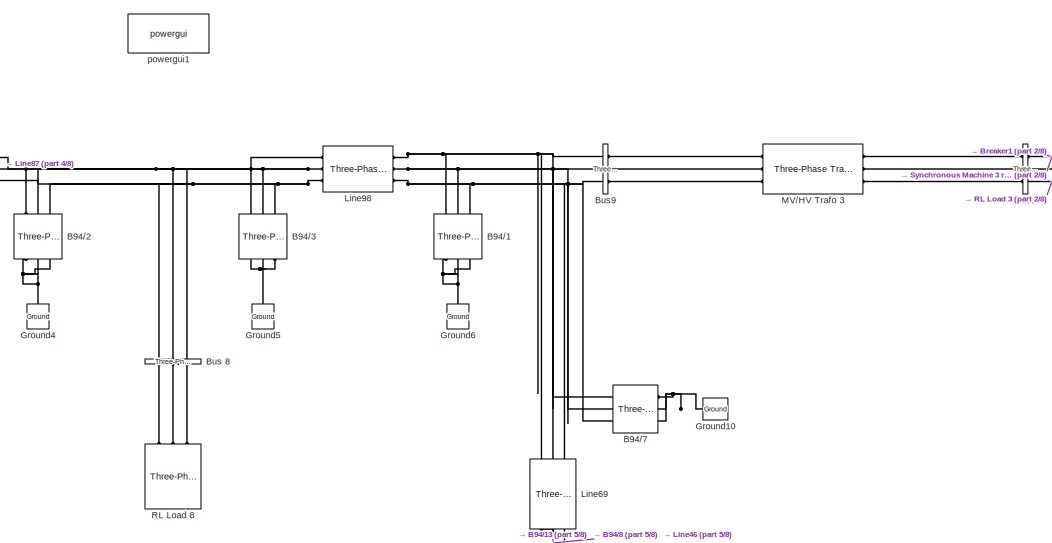
[diagram: root canvas - part 1/8, top center region]
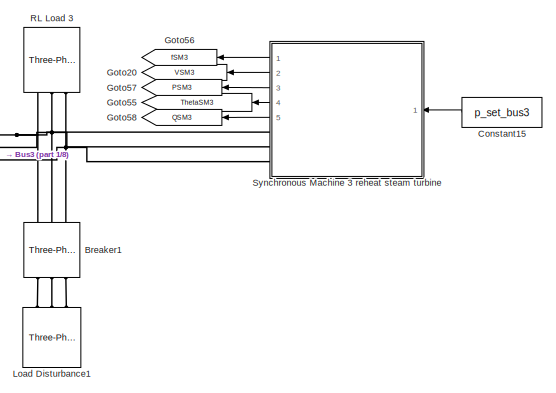
[diagram: root canvas - part 2/8, top right region]
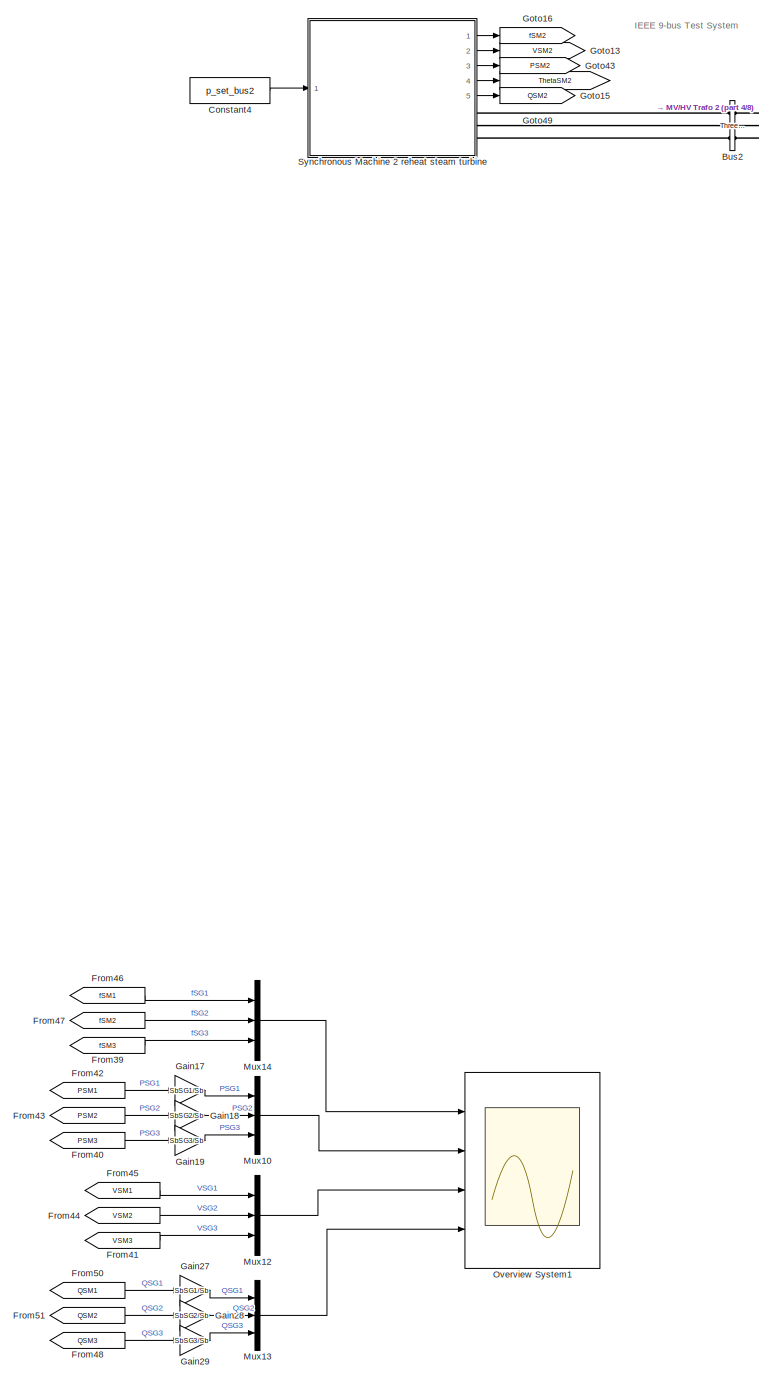
[diagram: root canvas - part 3/8, top left region]
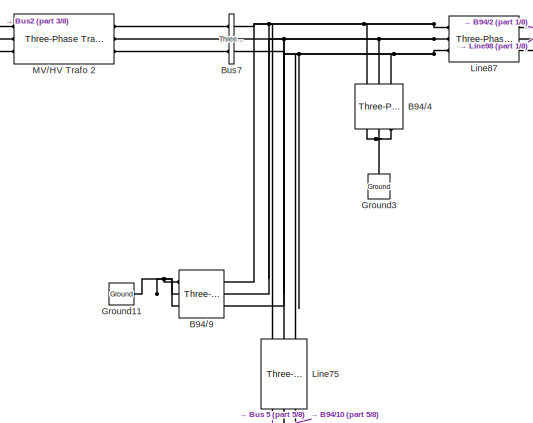
[diagram: root canvas - part 4/8, top center region]
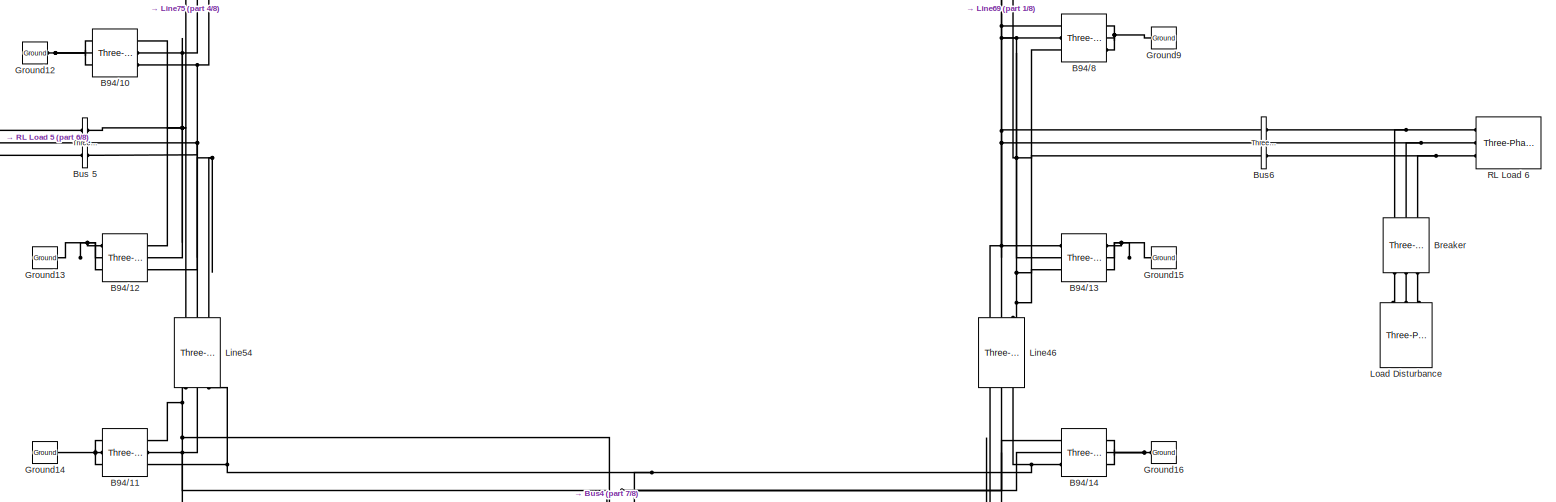
[diagram: root canvas - part 5/8, central region]
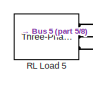
[diagram: root canvas - part 6/8, top left region]
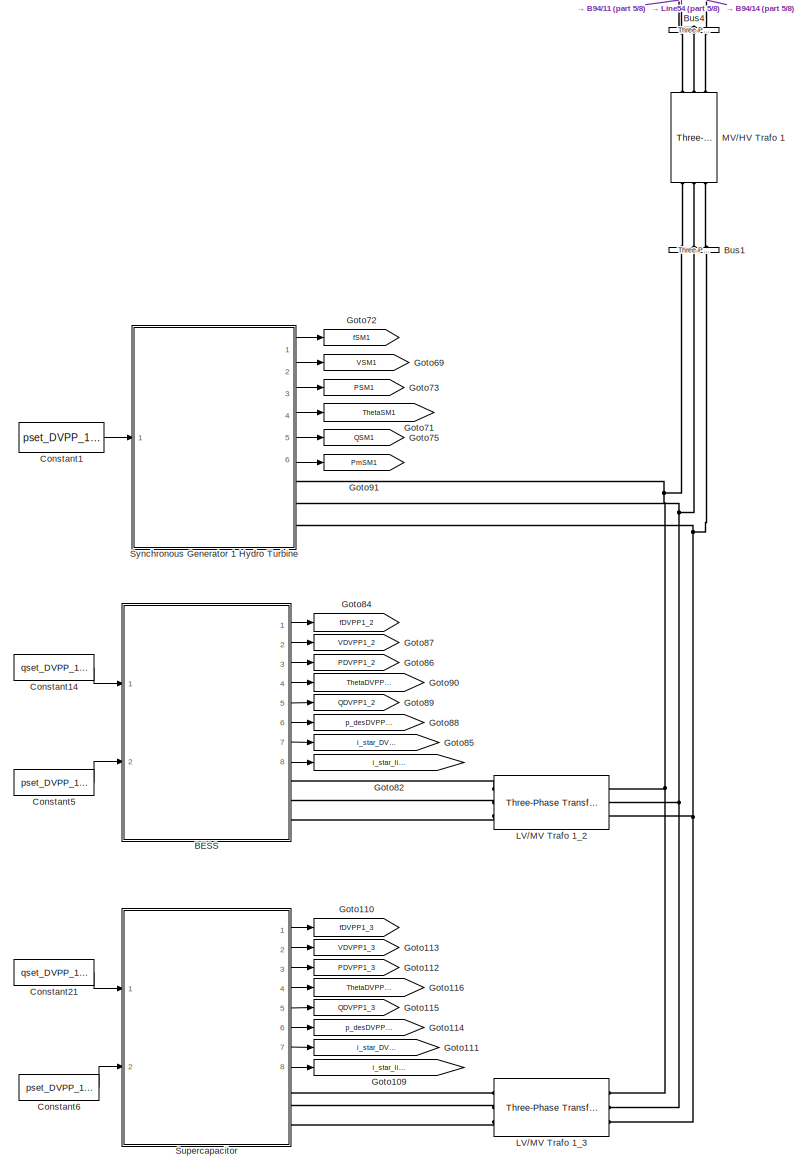
[diagram: root canvas - part 7/8, bottom center region]
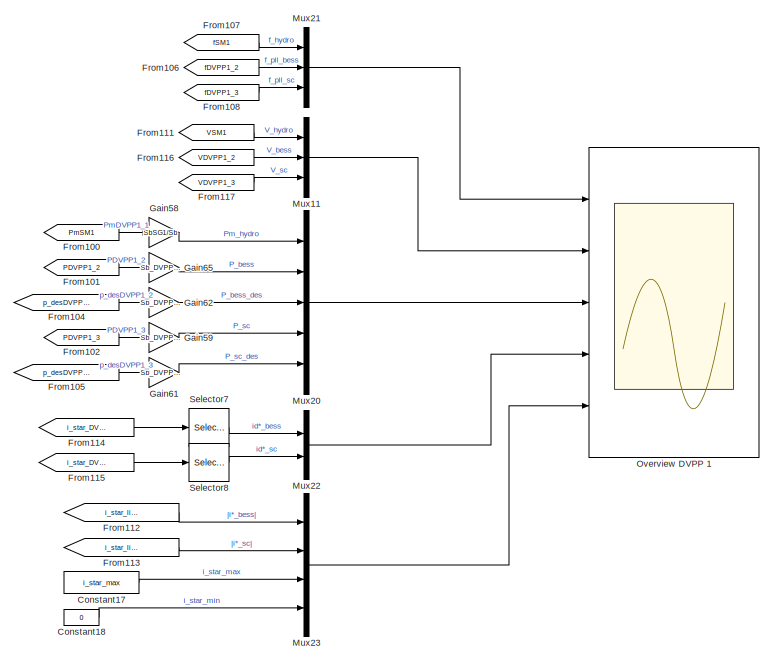
[diagram: root canvas - part 8/8, bottom center region]
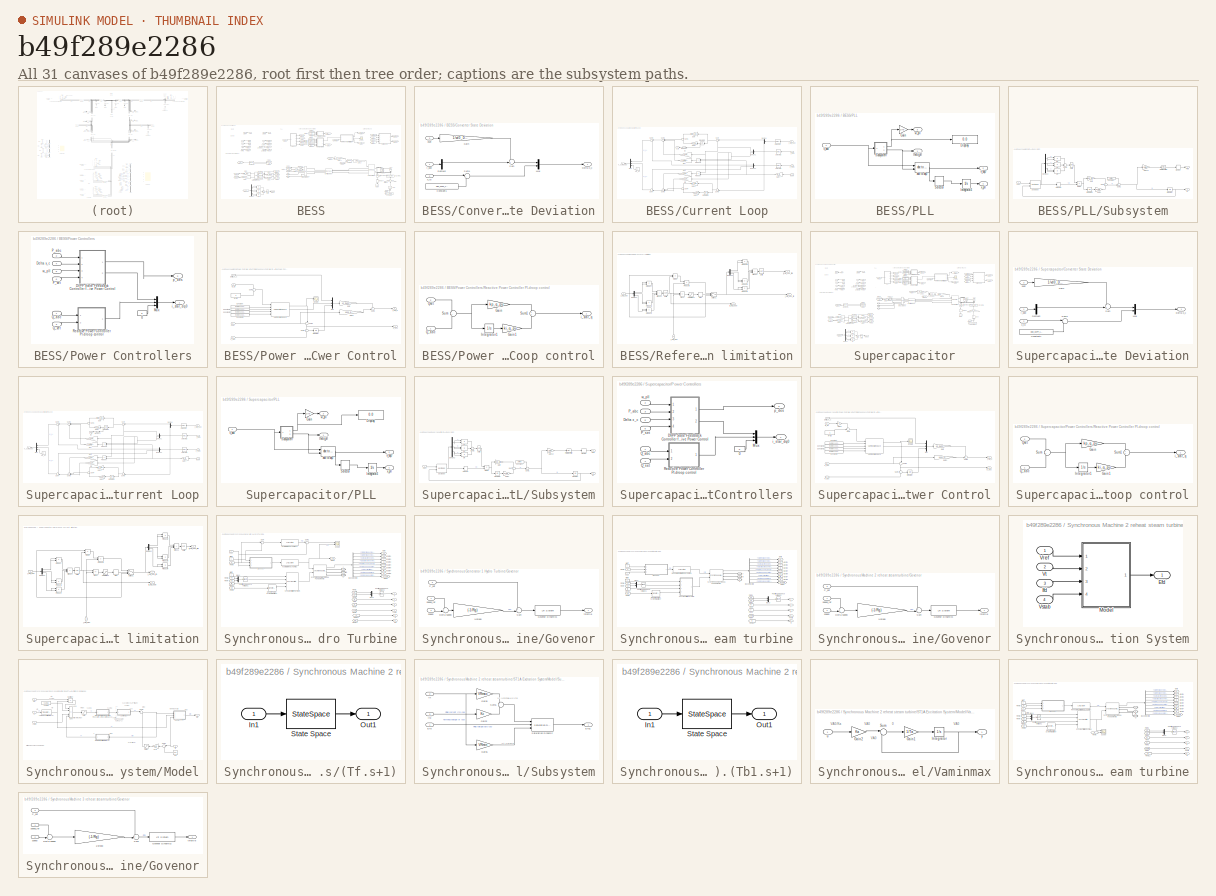
[diagram: thumbnail index - all 31 canvases of the model, root first then tree order]
MODEL slx_b49f289e2286
KIND model
CONFIG AbsTol = auto
CONFIG EnableMultiTasking = off
CONFIG FixedStep = T_s_power
CONFIG MaxStep = 5.0E-5
CONFIG MinStep = auto
CONFIG RelTol = 1e-3
CONFIG SampleTimeConstraint = Unconstrained
CONFIG Solver = FixedStepAuto
CONFIG SolverName = FixedStepAuto
CONFIG StartTime = 0.0
CONFIG StopTime = Tend
BLOCK [Reference] B94//1  REF=powerlib/Elements/Three-Phase
Parallel RLC Branch
  AttributesFormatString = \n
  NameLocation = left
  Ports = [0, 0, 0, 0, 0, 3, 3]
  SourceBlock = powerlib/Elements/Three-Phase\nParallel RLC Branch
  SourceProductBaseCode = PS
  SourceType = Three-Phase Parallel RLC Branch
BLOCK [Reference] B94//10  REF=powerlib/Elements/Three-Phase
Parallel RLC Branch
  AttributesFormatString = \n
  Ports = [0, 0, 0, 0, 0, 3, 3]
  SourceBlock = powerlib/Elements/Three-Phase\nParallel RLC Branch
  SourceProductBaseCode = PS
  SourceType = Three-Phase Parallel RLC Branch
BLOCK [Reference] B94//11  REF=powerlib/Elements/Three-Phase
Parallel RLC Branch
  AttributesFormatString = \n
  Ports = [0, 0, 0, 0, 0, 3, 3]
  SourceBlock = powerlib/Elements/Three-Phase\nParallel RLC Branch
  SourceProductBaseCode = PS
  SourceType = Three-Phase Parallel RLC Branch
BLOCK [Reference] B94//12  REF=powerlib/Elements/Three-Phase
Parallel RLC Branch
  AttributesFormatString = \n
  Ports = [0, 0, 0, 0, 0, 3, 3]
  SourceBlock = powerlib/Elements/Three-Phase\nParallel RLC Branch
  SourceProductBaseCode = PS
  SourceType = Three-Phase Parallel RLC Branch
BLOCK [Reference] B94//13  REF=powerlib/Elements/Three-Phase
Parallel RLC Branch
  AttributesFormatString = \n
  Ports = [0, 0, 0, 0, 0, 3, 3]
  SourceBlock = powerlib/Elements/Three-Phase\nParallel RLC Branch
  SourceProductBaseCode = PS
  SourceType = Three-Phase Parallel RLC Branch
BLOCK [Reference] B94//14  REF=powerlib/Elements/Three-Phase
Parallel RLC Branch
  AttributesFormatString = \n
  Ports = [0, 0, 0, 0, 0, 3, 3]
  SourceBlock = powerlib/Elements/Three-Phase\nParallel RLC Branch
  SourceProductBaseCode = PS
  SourceType = Three-Phase Parallel RLC Branch
BLOCK [Reference] B94//2  REF=powerlib/Elements/Three-Phase
Parallel RLC Branch
  AttributesFormatString = \n
  NameLocation = left
  Ports = [0, 0, 0, 0, 0, 3, 3]
  SourceBlock = powerlib/Elements/Three-Phase\nParallel RLC Branch
  SourceProductBaseCode = PS
  SourceType = Three-Phase Parallel RLC Branch
BLOCK [Reference] B94//3  REF=powerlib/Elements/Three-Phase
Parallel RLC Branch
  AttributesFormatString = \n
  NameLocation = left
  Ports = [0, 0, 0, 0, 0, 3, 3]
  SourceBlock = powerlib/Elements/Three-Phase\nParallel RLC Branch
  SourceProductBaseCode = PS
  SourceType = Three-Phase Parallel RLC Branch
BLOCK [Reference] B94//4  REF=powerlib/Elements/Three-Phase
Parallel RLC Branch
  AttributesFormatString = \n
  NameLocation = left
  Ports = [0, 0, 0, 0, 0, 3, 3]
  SourceBlock = powerlib/Elements/Three-Phase\nParallel RLC Branch
  SourceProductBaseCode = PS
  SourceType = Three-Phase Parallel RLC Branch
BLOCK [Reference] B94//7  REF=powerlib/Elements/Three-Phase
Parallel RLC Branch
  AttributesFormatString = \n
  Ports = [0, 0, 0, 0, 0, 3, 3]
  SourceBlock = powerlib/Elements/Three-Phase\nParallel RLC Branch
  SourceProductBaseCode = PS
  SourceType = Three-Phase Parallel RLC Branch
BLOCK [Reference] B94//8  REF=powerlib/Elements/Three-Phase
Parallel RLC Branch
  AttributesFormatString = \n
  Ports = [0, 0, 0, 0, 0, 3, 3]
  SourceBlock = powerlib/Elements/Three-Phase\nParallel RLC Branch
  SourceProductBaseCode = PS
  SourceType = Three-Phase Parallel RLC Branch
BLOCK [Reference] B94//9  REF=powerlib/Elements/Three-Phase
Parallel RLC Branch
  AttributesFormatString = \n
  Ports = [0, 0, 0, 0, 0, 3, 3]
  SourceBlock = powerlib/Elements/Three-Phase\nParallel RLC Branch
  SourceProductBaseCode = PS
  SourceType = Three-Phase Parallel RLC Branch
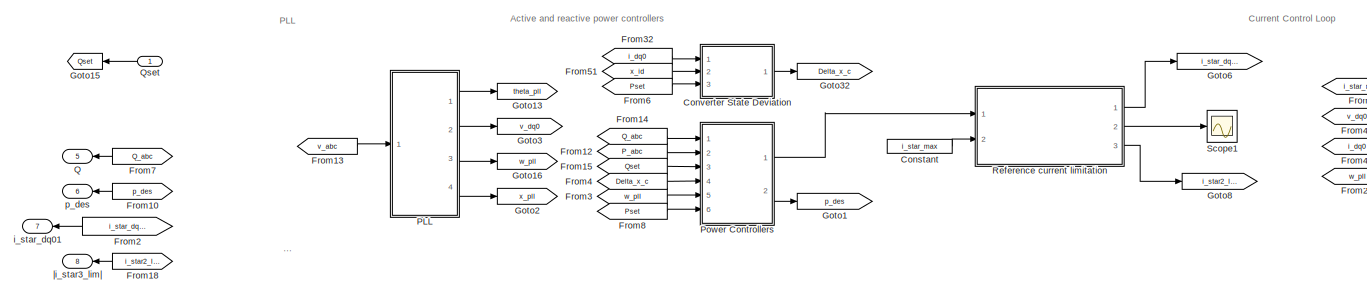
[diagram: BESS - part 1/3, top center region]
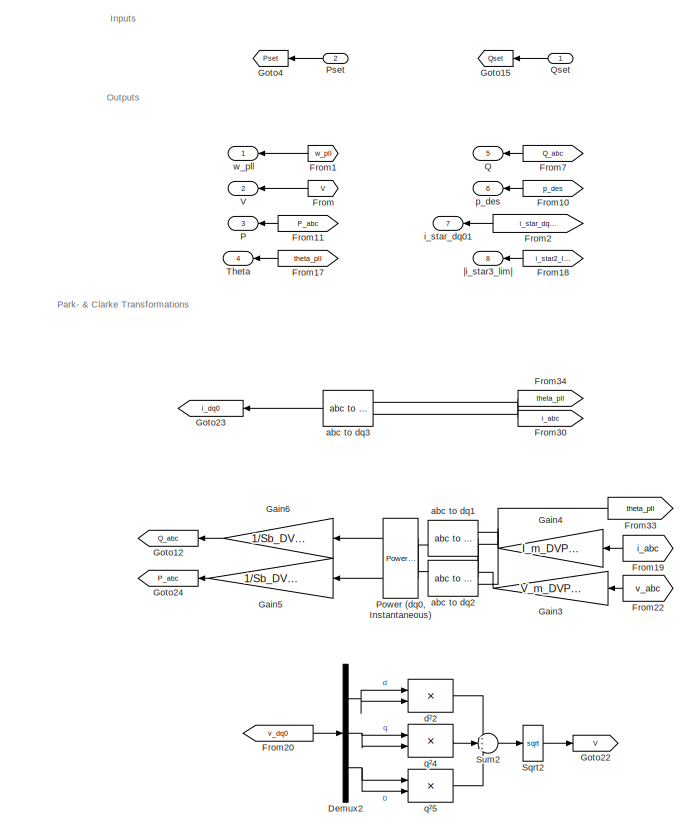
[diagram: BESS - part 2/3, left side, full height]
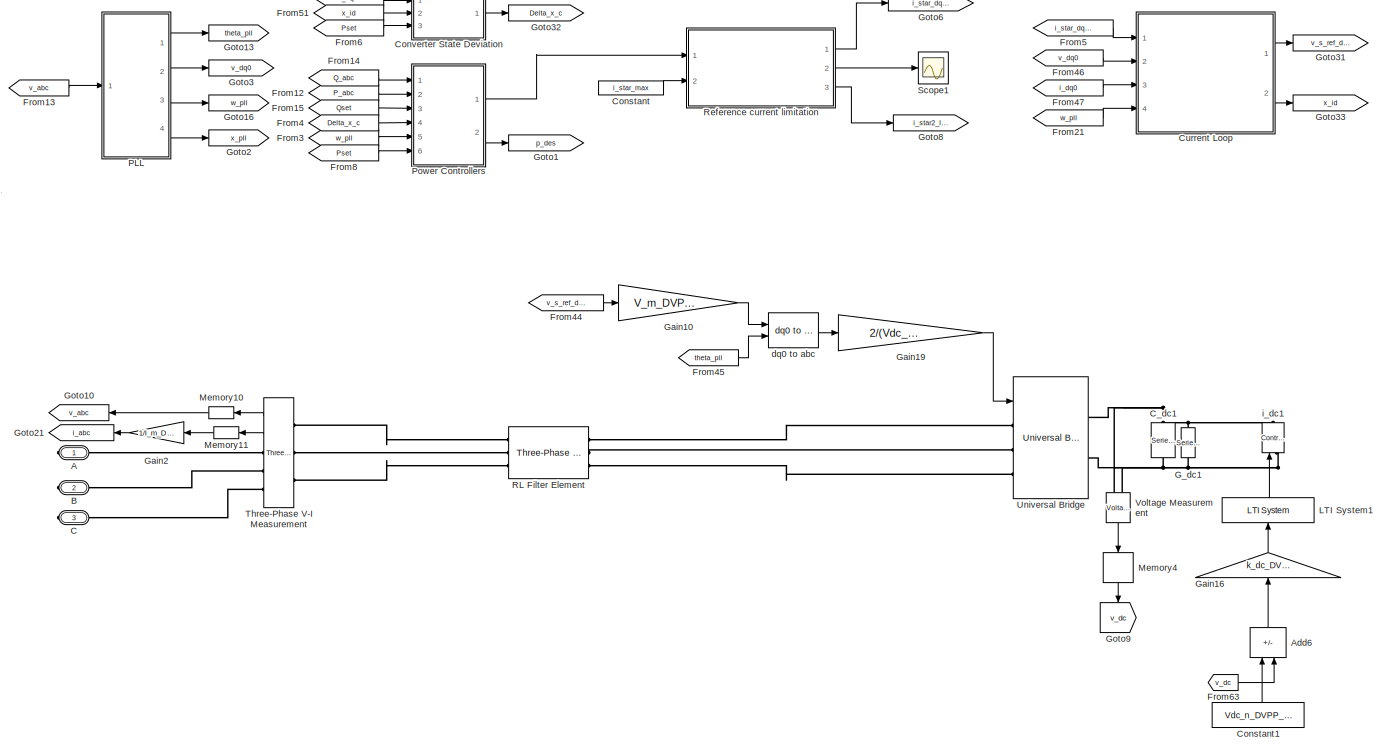
[diagram: BESS - part 3/3, center side, full height]
BLOCK [SubSystem] BESS
  Ports = [2, 8, 0, 0, 0, 0, 3]
  RequestExecContextInheritance = off
BLOCK [PMIOPort] BESS/A
  Side = Right
BLOCK [Sum] BESS/Add6
  IconShape = rectangular
  Inputs = +-
  NameLocation = right
  Ports = [2, 1]
BLOCK [PMIOPort] BESS/B
  Port = 2
  Side = Right
BLOCK [PMIOPort] BESS/C
  Port = 3
  Side = Right
BLOCK [Reference] BESS/C_dc1  REF=powerlib/Elements/Series RLC Branch
  NameLocation = left
  Ports = [0, 0, 0, 0, 0, 1, 1]
  SourceBlock = powerlib/Elements/Series RLC Branch
  SourceProductBaseCode = PS
  SourceType = Series RLC Branch
BLOCK [Constant] BESS/Constant
  Value = i_star_max
BLOCK [Constant] BESS/Constant1
  NameLocation = right
  Value = Vdc_n_DVPP_1_2
BLOCK [SubSystem] BESS/Converter State Deviation
  Ports = [3, 1]
  RequestExecContextInheritance = off
BLOCK [Constant] BESS/Converter State Deviation/Constant1
  Value = xid0_DVPP_1_2_pu
BLOCK [Outport] BESS/Converter State Deviation/Delta x_c
BLOCK [Demux] BESS/Converter State Deviation/Demux2
  Outputs = 3
  Ports = [1, 3]
BLOCK [Gain] BESS/Converter State Deviation/Gain
  Gain = 1/vd0_DVPP_1_2_pu
BLOCK [Mux] BESS/Converter State Deviation/Mux
  DisplayOption = bar
  Inputs = 2
  Ports = [2, 1]
BLOCK [Sum] BESS/Converter State Deviation/Sum
  Inputs = -+|
  Ports = [2, 1]
BLOCK [Sum] BESS/Converter State Deviation/Sum1
  Inputs = |+-
  Ports = [2, 1]
BLOCK [Inport] BESS/Converter State Deviation/i_dq0
BLOCK [Inport] BESS/Converter State Deviation/pset
  Port = 3
BLOCK [Inport] BESS/Converter State Deviation/x_id
  Port = 2
BLOCK [SubSystem] BESS/Current Loop
  AncestorBlock = Library/Grid-Forming Converter\nControlled by Droop Control /Current Loop
  Ports = [4, 2]
  RequestExecContextInheritance = off
BLOCK [Demux] BESS/Current Loop/Demux
  NameLocation = top
  Outputs = 2
  Ports = [1, 2]
BLOCK [Demux] BESS/Current Loop/Demux1
  NameLocation = top
  Outputs = 2
  Ports = [1, 2]
BLOCK [Demux] BESS/Current Loop/Demux2
  NameLocation = top
  Outputs = 2
  Ports = [1, 2]
BLOCK [Gain] BESS/Current Loop/Gain
  Gain = kp_i_pu
BLOCK [Gain] BESS/Current Loop/Gain1
  Gain = ki_i_pu
BLOCK [Gain] BESS/Current Loop/Gain2
  Gain = kp_i_pu
BLOCK [Gain] BESS/Current Loop/Gain3
  Gain = ki_i_pu
BLOCK [Gain] BESS/Current Loop/Gain4
  Gain = w_b
BLOCK [Integrator] BESS/Current Loop/Integrator1
  InitialCondition = xid0_DVPP_1_2_pu
  Ports = [1, 1]
BLOCK [Integrator] BESS/Current Loop/Integrator2
  InitialCondition = xiq0_DVPP_1_2_pu
  Ports = [1, 1]
BLOCK [Memory] BESS/Current Loop/Memory2
  NameLocation = top
BLOCK [Mux] BESS/Current Loop/Mux
  DisplayOption = bar
  Inputs = 3
  NameLocation = top
  Ports = [3, 1]
BLOCK [Product] BESS/Current Loop/Product
  Ports = [2, 1]
BLOCK [Product] BESS/Current Loop/Product1
  Ports = [2, 1]
BLOCK [Gain] BESS/Current Loop/Rf
  Gain = r_f_DVPP_1_2
BLOCK [Gain] BESS/Current Loop/Rf1
  Gain = r_f_DVPP_1_2
BLOCK [Selector] BESS/Current Loop/Selector1
  IndexOptions = Index vector (dialog)
  Indices = [1 2]
  InputPortWidth = 3
  NameLocation = top
  OutputSizes = 1
  Ports = [1, 1]
BLOCK [Selector] BESS/Current Loop/Selector2
  IndexOptions = Index vector (dialog)
  Indices = [1 2]
  InputPortWidth = 3
  NameLocation = top
  OutputSizes = 1
  Ports = [1, 1]
BLOCK [Selector] BESS/Current Loop/Selector3
  IndexOptions = Index vector (dialog)
  Indices = [1 2]
  InputPortWidth = 3
  NameLocation = top
  OutputSizes = 1
  Ports = [1, 1]
BLOCK [Sum] BESS/Current Loop/Sum
  Inputs = |+-
  NameLocation = top
  Ports = [2, 1]
BLOCK [Sum] BESS/Current Loop/Sum1
  Ports = [2, 1]
BLOCK [Sum] BESS/Current Loop/Sum2
  Inputs = |+-+
  NameLocation = top
  Ports = [3, 1]
BLOCK [Sum] BESS/Current Loop/Sum3
  Inputs = |++
  NameLocation = top
  Ports = [2, 1]
BLOCK [Sum] BESS/Current Loop/Sum4
  Ports = [2, 1]
BLOCK [Sum] BESS/Current Loop/Sum5
  Inputs = +++|
  NameLocation = top
  Ports = [3, 1]
BLOCK [Sum] BESS/Current Loop/Sum6
  Inputs = -+|
  NameLocation = top
  Ports = [2, 1]
BLOCK [Sum] BESS/Current Loop/Sum7
  Inputs = ++|
  NameLocation = top
  Ports = [2, 1]
BLOCK [Inport] BESS/Current Loop/i_dq0
  NameLocation = top
  Port = 3
BLOCK [Inport] BESS/Current Loop/i_star_dq0
  NameLocation = top
BLOCK [Inport] BESS/Current Loop/v_dq0
  NameLocation = top
  Port = 2
BLOCK [Outport] BESS/Current Loop/v_s_ref_dq0
  NameLocation = top
  VectorParamsAs1DForOutWhenUnconnected = off
BLOCK [Constant] BESS/Current Loop/vs_0*
  Value = 0
BLOCK [Gain] BESS/Current Loop/w*Lf
  Gain = l_f_DVPP_1_2/w_b
BLOCK [Gain] BESS/Current Loop/w*Lf1
  Gain = l_f_DVPP_1_2/w_b
BLOCK [Inport] BESS/Current Loop/w_pll
  NameLocation = top
  Port = 4
BLOCK [Outport] BESS/Current Loop/x_id
  NameLocation = top
  Port = 2
  VectorParamsAs1DForOutWhenUnconnected = off
BLOCK [Demux] BESS/Demux2
  Outputs = 3
  Ports = [1, 3]
BLOCK [From] BESS/From
  GotoTag = V
BLOCK [From] BESS/From1
  GotoTag = w_pll
  NameLocation = top
BLOCK [From] BESS/From10
  GotoTag = p_des
BLOCK [From] BESS/From11
  GotoTag = P_abc
BLOCK [From] BESS/From12
  GotoTag = P_abc
BLOCK [From] BESS/From13
  GotoTag = v_abc
BLOCK [From] BESS/From14
  GotoTag = Q_abc
BLOCK [From] BESS/From15
  GotoTag = Qset
BLOCK [From] BESS/From17
  GotoTag = theta_pll
  NameLocation = top
BLOCK [From] BESS/From18
  GotoTag = i_star2_lim
BLOCK [From] BESS/From19
  GotoTag = i_abc
  NameLocation = top
BLOCK [From] BESS/From2
  GotoTag = i_star_dq02_lim
BLOCK [From] BESS/From20
  GotoTag = v_dq0
  NameLocation = top
BLOCK [From] BESS/From21
  GotoTag = w_pll
  NameLocation = top
BLOCK [From] BESS/From22
  GotoTag = v_abc
  NameLocation = top
BLOCK [From] BESS/From3
  GotoTag = w_pll
BLOCK [From] BESS/From30
  GotoTag = i_abc
BLOCK [From] BESS/From32
  GotoTag = i_dq0
  NameLocation = top
BLOCK [From] BESS/From33
  GotoTag = theta_pll
  NameLocation = top
BLOCK [From] BESS/From34
  GotoTag = theta_pll
  NameLocation = top
BLOCK [From] BESS/From4
  GotoTag = Delta_x_c
BLOCK [From] BESS/From44
  GotoTag = v_s_ref_dq0
BLOCK [From] BESS/From45
  GotoTag = theta_pll
BLOCK [From] BESS/From46
  GotoTag = v_dq0
  NameLocation = top
BLOCK [From] BESS/From47
  GotoTag = i_dq0
  NameLocation = top
BLOCK [From] BESS/From5
  GotoTag = i_star_dq02_lim
  NameLocation = top
BLOCK [From] BESS/From51
  GotoTag = x_id
BLOCK [From] BESS/From6
  GotoTag = Pset
BLOCK [From] BESS/From63
  GotoTag = v_dc
  NameLocation = top
BLOCK [From] BESS/From7
  GotoTag = Q_abc
BLOCK [From] BESS/From8
  GotoTag = Pset
BLOCK [Reference] BESS/G_dc1  REF=powerlib/Elements/Series RLC Branch
  NameLocation = left
  Ports = [0, 0, 0, 0, 0, 1, 1]
  SourceBlock = powerlib/Elements/Series RLC Branch
  SourceProductBaseCode = PS
  SourceType = Series RLC Branch
BLOCK [Gain] BESS/Gain10
  Gain = V_m_DVPP_1_2
BLOCK [Gain] BESS/Gain16
  Gain = k_dc_DVPP_1_2
  NameLocation = right
BLOCK [Gain] BESS/Gain19
  Gain = 2/(Vdc_n_DVPP_1_2)
BLOCK [Gain] BESS/Gain2
  Gain = 1/I_m_DVPP_1_2
BLOCK [Gain] BESS/Gain3
  Gain = V_m_DVPP_1_2
BLOCK [Gain] BESS/Gain4
  Gain = I_m_DVPP_1_2
BLOCK [Gain] BESS/Gain5
  Gain = 1/Sb_DVPP_1_2
BLOCK [Gain] BESS/Gain6
  Gain = 1/Sb_DVPP_1_2
BLOCK [Goto] BESS/Goto1
  GotoTag = p_des
  NameLocation = top
BLOCK [Goto] BESS/Goto10
  GotoTag = v_abc
  NameLocation = top
BLOCK [Goto] BESS/Goto12
  GotoTag = Q_abc
  NameLocation = top
BLOCK [Goto] BESS/Goto13
  GotoTag = theta_pll
BLOCK [Goto] BESS/Goto15
  GotoTag = Qset
  NameLocation = top
BLOCK [Goto] BESS/Goto16
  GotoTag = w_pll
  NameLocation = top
BLOCK [Goto] BESS/Goto2
  GotoTag = x_pll
  NameLocation = top
BLOCK [Goto] BESS/Goto21
  GotoTag = i_abc
BLOCK [Goto] BESS/Goto22
  GotoTag = V
BLOCK [Goto] BESS/Goto23
  GotoTag = i_dq0
BLOCK [Goto] BESS/Goto24
  GotoTag = P_abc
  NameLocation = top
BLOCK [Goto] BESS/Goto3
  GotoTag = v_dq0
BLOCK [Goto] BESS/Goto31
  GotoTag = v_s_ref_dq0
  NameLocation = top
BLOCK [Goto] BESS/Goto32
  GotoTag = Delta_x_c
  NameLocation = top
BLOCK [Goto] BESS/Goto33
  GotoTag = x_id
  NameLocation = top
BLOCK [Goto] BESS/Goto4
  GotoTag = Pset
  NameLocation = top
BLOCK [Goto] BESS/Goto6
  GotoTag = i_star_dq02_lim
  NameLocation = top
BLOCK [Goto] BESS/Goto8
  GotoTag = i_star2_lim
  NameLocation = top
BLOCK [Goto] BESS/Goto9
  GotoTag = v_dc
  NameLocation = left
BLOCK [Reference] BESS/LTI System1  REF=cstblocks/LTI System
  NameLocation = right
  Ports = [1, 1]
  SourceBlock = cstblocks/LTI System
  SourceProductBaseCode = CT
  SourceType = LTI Block
BLOCK [Memory] BESS/Memory10
  InitialCondition = [vabc_DVPP_1_2_0_pu(1), vabc_DVPP_1_2_0_pu(2), vabc_DVPP_1_2_0_pu(3)]
  NameLocation = top
BLOCK [Memory] BESS/Memory11
  InitialCondition = [iabc_DVPP_1_2_0(1), iabc_DVPP_1_2_0(2), iabc_DVPP_1_2_0(3)]
  NameLocation = top
BLOCK [Memory] BESS/Memory4
  NameLocation = left
BLOCK [Outport] BESS/P
  NameLocation = top
  Port = 3
  VectorParamsAs1DForOutWhenUnconnected = off
BLOCK [SubSystem] BESS/PLL
  Ports = [1, 4]
  RequestExecContextInheritance = off
BLOCK [Display] BESS/PLL/Display
  Decimation = 1
  Ports = [1]
BLOCK [Gain] BESS/PLL/Gain
  Gain = 1/fb
BLOCK [Integrator] BESS/PLL/Integrator3
  InitialCondition = xpll0_pu
  Ports = [1, 1]
BLOCK [Selector] BESS/PLL/Selector
  IndexOptions = Index vector (dialog)
  Indices = 2
  InputPortWidth = 3
  OutputSizes = 1
  Ports = [1, 1]
BLOCK [SubSystem] BESS/PLL/Subsystem
  Ports = [1, 2]
  RequestExecContextInheritance = off
BLOCK [Constant] BESS/PLL/Subsystem/Constant
  Value = 2*pi*50
BLOCK [Demux] BESS/PLL/Subsystem/Demux2
  Outputs = 3
  Ports = [1, 3]
BLOCK [Product] BESS/PLL/Subsystem/Divide
  Inputs = /*
  Ports = [2, 1]
BLOCK [Reference] BESS/PLL/Subsystem/First-Order Filter  REF=powerlib_meascontrol/Filters/First-Order
Filter
  Ports = [1, 1]
  SourceBlock = powerlib_meascontrol/Filters/First-Order\nFilter
  SourceProductBaseCode = PS
  SourceType = First-Order Filter
BLOCK [Outport] BESS/PLL/Subsystem/Freq
  VectorParamsAs1DForOutWhenUnconnected = off
BLOCK [Gain] BESS/PLL/Subsystem/Gain
  Gain = kp_pll
BLOCK [Gain] BESS/PLL/Subsystem/Gain1
  Gain = ki_pll
BLOCK [Gain] BESS/PLL/Subsystem/Gain10
  Gain = 1/2/pi
  OutDataTypeStr = Inherit: Same as input
  ParamDataTypeStr = Inherit: Same as input
  SaturateOnIntegerOverflow = on
BLOCK [Integrator] BESS/PLL/Subsystem/Integrator
  Ports = [1, 1]
BLOCK [Integrator] BESS/PLL/Subsystem/Integrator1
  InitialCondition = xpll0_pu
  Ports = [1, 1]
BLOCK [Memory] BESS/PLL/Subsystem/Memory
  InitialCondition = fb
BLOCK [Selector] BESS/PLL/Subsystem/Selector
  IndexOptions = Index vector (dialog)
  Indices = 2
  InputPortWidth = 3
  OutputSizes = 1
  Ports = [1, 1]
BLOCK [Sqrt] BESS/PLL/Subsystem/Sqrt2
BLOCK [Sum] BESS/PLL/Subsystem/Sum
  Ports = [2, 1]
BLOCK [Sum] BESS/PLL/Subsystem/Sum1
  Inputs = ++|
  Ports = [2, 1]
BLOCK [Sum] BESS/PLL/Subsystem/Sum2
  InputSameDT = on
  Inputs = +++
  OutDataTypeStr = Inherit: Same as first input
  Ports = [3, 1]
  SaturateOnIntegerOverflow = on
BLOCK [Inport] BESS/PLL/Subsystem/Vabc
  PortDimensions = 3
BLOCK [Reference] BESS/PLL/Subsystem/abc to dq0  REF=powerlib_meascontrol/Transformations/abc to dq0
  Ports = [2, 1]
  SourceBlock = powerlib_meascontrol/Transformations/abc to dq0
  SourceProductBaseCode = MT,PS
  SourceType = abc to dq0 Transformation
BLOCK [Product] BESS/PLL/Subsystem/d²2
  InputSameDT = on
  NameLocation = top
  OutDataTypeStr = Inherit: Same as first input
  Ports = [2, 1]
  RndMeth = Zero
  SaturateOnIntegerOverflow = on
BLOCK [Product] BESS/PLL/Subsystem/q²4
  InputSameDT = on
  OutDataTypeStr = Inherit: Same as first input
  Ports = [2, 1]
  RndMeth = Zero
  SaturateOnIntegerOverflow = on
BLOCK [Product] BESS/PLL/Subsystem/q²5
  InputSameDT = on
  OutDataTypeStr = Inherit: Same as first input
  Ports = [2, 1]
  RndMeth = Zero
  SaturateOnIntegerOverflow = on
BLOCK [Outport] BESS/PLL/Subsystem/wt
  Port = 2
  VectorParamsAs1DForOutWhenUnconnected = off
BLOCK [Reference] BESS/PLL/abc to dq0  REF=powerlib_meascontrol/Transformations/abc to dq0
  Ports = [2, 1]
  SourceBlock = powerlib_meascontrol/Transformations/abc to dq0
  SourceProductBaseCode = PS
  SourceType = abc to dq0 Transformation
BLOCK [Outport] BESS/PLL/theta_pll
  VectorParamsAs1DForOutWhenUnconnected = off
BLOCK [Inport] BESS/PLL/v_abc
BLOCK [Outport] BESS/PLL/v_dq0
  Port = 2
  VectorParamsAs1DForOutWhenUnconnected = off
BLOCK [Outport] BESS/PLL/w_pll
  Port = 3
  VectorParamsAs1DForOutWhenUnconnected = off
BLOCK [Outport] BESS/PLL/x_pll
  Port = 4
  VectorParamsAs1DForOutWhenUnconnected = off
BLOCK [Reference] BESS/Power (dq0, Instantaneous)  REF=powerlib_meascontrol/Measurements/Power
(dq0, Instantaneous)
  NameLocation = top
  Ports = [2, 2]
  SourceBlock = powerlib_meascontrol/Measurements/Power\n(dq0, Instantaneous)
  SourceProductBaseCode = PS
  SourceType = Power (dq0, Instantaneous)
BLOCK [SubSystem] BESS/Power Controllers
  Ports = [6, 2]
  RequestExecContextInheritance = off
BLOCK [Constant] BESS/Power Controllers/0
  Value = 0
BLOCK [SubSystem] BESS/Power Controllers/DVPP State Feedback Controller for Active Power Control
  Ports = [4, 2]
  RequestExecContextInheritance = off
BLOCK [Constant] BESS/Power Controllers/DVPP State Feedback Controller for Active Power Control/Constant
  Value = ReferenceSS2_DVPP_1.A
  VectorParams1D = off
BLOCK [Constant] BESS/Power Controllers/DVPP State Feedback Controller for Active Power Control/Constant1
  Value = ReferenceSS2_DVPP_1.B
  VectorParams1D = off
BLOCK [Constant] BESS/Power Controllers/DVPP State Feedback Controller for Active Power Control/Constant2
  Value = ReferenceSS2_DVPP_1.C
  VectorParams1D = off
BLOCK [Constant] BESS/Power Controllers/DVPP State Feedback Controller for Active Power Control/Constant3
  Value = ReferenceSS2_DVPP_1.D
  VectorParams1D = off
BLOCK [Inport] BESS/Power Controllers/DVPP State Feedback Controller for Active Power Control/Delta_x_c
  Port = 2
BLOCK [Gain] BESS/Power Controllers/DVPP State Feedback Controller for Active Power Control/Gain
  Gain = K2_DVPP_1
  Multiplication = Matrix(K*u)
BLOCK [Gain] BESS/Power Controllers/DVPP State Feedback Controller for Active Power Control/Gain1
  Gain = 1/vd0_DVPP_1_2_pu
BLOCK [Integrator] BESS/Power Controllers/DVPP State Feedback Controller for Active Power Control/Integrator
  Ports = [1, 1]
BLOCK [Mux] BESS/Power Controllers/DVPP State Feedback Controller for Active Power Control/Mux
  DisplayOption = bar
  Inputs = 3
  Ports = [3, 1]
BLOCK [Inport] BESS/Power Controllers/DVPP State Feedback Controller for Active Power Control/P_abc
BLOCK [Inport] BESS/Power Controllers/DVPP State Feedback Controller for Active Power Control/Pset
  Port = 4
BLOCK [Scope] BESS/Power Controllers/DVPP State Feedback Controller for Active Power Control/Scope
  Floating = off
  NumInputPorts = 1
  Ports = [1]
  ScopeSpecificationString = Simulink.scopes.TimeScopeBlockCfg('CurrentConfiguration', extmgr.ConfigurationSet(extmgr.Configuration('Core','General UI',true),extmgr.Configuration('Core','Source UI',true),extmgr.Configuration('Sources','WiredSimulink',true,'DataLoggingVariableName','ScopeData4'),extmgr.Configuration('Visuals','Time Domain',true,'SerializedDisplays',{struct('MinYLimReal','-0.52002','MaxYLimReal','1.81587','YLab...<+1399ch>
BLOCK [Sum] BESS/Power Controllers/DVPP State Feedback Controller for Active Power Control/Sum
  Inputs = +-
  Ports = [2, 1]
BLOCK [Sum] BESS/Power Controllers/DVPP State Feedback Controller for Active Power Control/Sum1
  Inputs = ++|
  NameLocation = left
  Ports = [2, 1]
BLOCK [Sum] BESS/Power Controllers/DVPP State Feedback Controller for Active Power Control/Sum2
  Ports = [2, 1]
BLOCK [Sum] BESS/Power Controllers/DVPP State Feedback Controller for Active Power Control/Sum3
  Inputs = -+
  Ports = [2, 1]
BLOCK [Reference] BESS/Power Controllers/DVPP State Feedback Controller for Active Power Control/Varying State Space  REF=cstblocks/Linear Parameter Varying/Varying State Space
  Ports = [5, 3]
  SourceBlock = cstblocks/Linear Parameter Varying/Varying State Space
  SourceProductBaseCode = CT
  SourceType = Varying State Space
BLOCK [Outport] BESS/Power Controllers/DVPP State Feedback Controller for Active Power Control/i_star_d
  Port = 2
BLOCK [Outport] BESS/Power Controllers/DVPP State Feedback Controller for Active Power Control/p_des
BLOCK [Constant] BESS/Power Controllers/DVPP State Feedback Controller for Active Power Control/w* [SI]
BLOCK [Inport] BESS/Power Controllers/DVPP State Feedback Controller for Active Power Control/w_pll
  Port = 3
BLOCK [Inport] BESS/Power Controllers/Delta x_c
  Port = 4
BLOCK [Mux] BESS/Power Controllers/Mux
  DisplayOption = bar
  Inputs = 3
  Ports = [3, 1]
BLOCK [Inport] BESS/Power Controllers/P_abc
  Port = 2
BLOCK [Inport] BESS/Power Controllers/P_set
  Port = 6
BLOCK [Inport] BESS/Power Controllers/Q_abc
BLOCK [Inport] BESS/Power Controllers/Q_set
  Port = 3
BLOCK [SubSystem] BESS/Power Controllers/Reactive Power Controller PI-droop control
  Ports = [2, 1]
  RequestExecContextInheritance = off
BLOCK [Gain] BESS/Power Controllers/Reactive Power Controller PI-droop control/Gain
  Gain = kp_q_pu
BLOCK [Gain] BESS/Power Controllers/Reactive Power Controller PI-droop control/Gain1
  Gain = ki_q_pu
BLOCK [Integrator] BESS/Power Controllers/Reactive Power Controller PI-droop control/Integrator1
  InitialCondition = xq0_DVPP_1_2_pu
  Ports = [1, 1]
BLOCK [Inport] BESS/Power Controllers/Reactive Power Controller PI-droop control/Q_abc
BLOCK [Inport] BESS/Power Controllers/Reactive Power Controller PI-droop control/Qset
  Port = 2
BLOCK [Sum] BESS/Power Controllers/Reactive Power Controller PI-droop control/Sum
  Inputs = -+
  Ports = [2, 1]
BLOCK [Sum] BESS/Power Controllers/Reactive Power Controller PI-droop control/Sum1
  Ports = [2, 1]
BLOCK [Outport] BESS/Power Controllers/Reactive Power Controller PI-droop control/i_star_q
BLOCK [Outport] BESS/Power Controllers/i_star_dq0
BLOCK [Outport] BESS/Power Controllers/p_des
  Port = 2
BLOCK [Inport] BESS/Power Controllers/w_pll
  Port = 5
BLOCK [Inport] BESS/Pset
  NameLocation = top
  Port = 2
BLOCK [Outport] BESS/Q
  NameLocation = top
  Port = 5
  VectorParamsAs1DForOutWhenUnconnected = off
BLOCK [Inport] BESS/Qset
  NameLocation = top
BLOCK [Reference] BESS/RL Filter Element  REF=powerlib/Elements/Three-Phase
Series RLC Branch
  AttributesFormatString = \n
  Ports = [0, 0, 0, 0, 0, 3, 3]
  SourceBlock = powerlib/Elements/Three-Phase\nSeries RLC Branch
  SourceProductBaseCode = PS
  SourceType = Three-Phase Series RLC Branch
BLOCK [SubSystem] BESS/Reference current limitation
  Ports = [2, 3]
  RequestExecContextInheritance = off
BLOCK [Demux] BESS/Reference current limitation/Demux1
  Outputs = 3
  Ports = [1, 3]
BLOCK [Demux] BESS/Reference current limitation/Demux2
  Outputs = 3
  Ports = [1, 3]
BLOCK [Product] BESS/Reference current limitation/Divide
  Inputs = */
  Ports = [2, 1]
BLOCK [Sum] BESS/Reference current limitation/Minus
  IconShape = rectangular
  Inputs = +-
  Ports = [2, 1]
BLOCK [Sum] BESS/Reference current limitation/Minus1
  IconShape = rectangular
  Inputs = +++
  Ports = [3, 1]
BLOCK [Sum] BESS/Reference current limitation/Minus4
  IconShape = rectangular
  Inputs = +++
  Ports = [3, 1]
BLOCK [Product] BESS/Reference current limitation/Product
  Ports = [2, 1]
  RndMeth = Zero
BLOCK [Product] BESS/Reference current limitation/Product1
  Ports = [2, 1]
  RndMeth = Zero
BLOCK [Product] BESS/Reference current limitation/Product2
  Ports = [2, 1]
  RndMeth = Zero
BLOCK [Product] BESS/Reference current limitation/Product3
  Ports = [2, 1]
  RndMeth = Zero
BLOCK [Product] BESS/Reference current limitation/Product4
  Ports = [2, 1]
  RndMeth = Zero
BLOCK [Product] BESS/Reference current limitation/Product6
  Ports = [2, 1]
  RndMeth = Zero
BLOCK [Product] BESS/Reference current limitation/Product7
  Ports = [2, 1]
  RndMeth = Zero
BLOCK [Saturate] BESS/Reference current limitation/Saturation1
  LowerLimit = 0
  UpperLimit = inf
BLOCK [Signum] BESS/Reference current limitation/Sign
BLOCK [Sqrt] BESS/Reference current limitation/Sqrt1
BLOCK [Sqrt] BESS/Reference current limitation/Sqrt2
BLOCK [Switch] BESS/Reference current limitation/Switch1
  InputSameDT = off
  SaturateOnIntegerOverflow = off
  Threshold = 1
BLOCK [Inport] BESS/Reference current limitation/i_star_dq0
BLOCK [Outport] BESS/Reference current limitation/i_star_dq0_lim
  VectorParamsAs1DForOutWhenUnconnected = off
BLOCK [Inport] BESS/Reference current limitation/i_star_max
  NameLocation = right
  Port = 2
BLOCK [Outport] BESS/Reference current limitation/||i_star_dq0_lim||
  Port = 3
  VectorParamsAs1DForOutWhenUnconnected = off
BLOCK [Outport] BESS/Reference current limitation/||i_star_dq0||
  Port = 2
  VectorParamsAs1DForOutWhenUnconnected = off
BLOCK [Scope] BESS/Scope1
  Floating = off
  NumInputPorts = 1
  Ports = [1]
  ScopeSpecificationString = Simulink.scopes.TimeScopeBlockCfg('CurrentConfiguration', extmgr.ConfigurationSet(extmgr.Configuration('Core','General UI',true),extmgr.Configuration('Core','Source UI',true),extmgr.Configuration('Sources','WiredSimulink',true,'DataLoggingVariableName','ScopeData3'),extmgr.Configuration('Visuals','Time Domain',true,'SerializedDisplays',{struct('MinYLimReal','0.45431','MaxYLimReal','1.4234','YLabel...<+1448ch>
BLOCK [Sqrt] BESS/Sqrt2
BLOCK [Sum] BESS/Sum2
  InputSameDT = on
  Inputs = +++
  OutDataTypeStr = Inherit: Same as first input
  Ports = [3, 1]
  SaturateOnIntegerOverflow = on
BLOCK [Outport] BESS/Theta
  NameLocation = top
  Port = 4
  VectorParamsAs1DForOutWhenUnconnected = off
BLOCK [Reference] BESS/Three-Phase V-I Measurement  REF=powerlib/Measurements/Three-Phase
V-I Measurement
  Ports = [0, 2, 0, 0, 0, 3, 3]
  SourceBlock = powerlib/Measurements/Three-Phase\nV-I Measurement
  SourceProductBaseCode = PS
  SourceType = Three-Phase VI Measurement
BLOCK [Reference] BESS/Universal Bridge  REF=powerlib/Power
Electronics/Universal Bridge
  Ports = [1, 0, 0, 0, 0, 3, 2]
  SourceBlock = powerlib/Power\nElectronics/Universal Bridge
  SourceProductBaseCode = PS
  SourceType = Universal Bridge
BLOCK [Outport] BESS/V
  NameLocation = top
  Port = 2
  VectorParamsAs1DForOutWhenUnconnected = off
BLOCK [Reference] BESS/Voltage Measurement  REF=powerlib/Measurements/Voltage Measurement
  NameLocation = left
  Ports = [0, 1, 0, 0, 0, 2]
  SourceBlock = powerlib/Measurements/Voltage Measurement
  SourceProductBaseCode = PS
  SourceType = Voltage Measurement
  UserDataPersistent = on
BLOCK [Reference] BESS/abc to dq1  REF=powerlib_meascontrol/Transformations/abc to dq0
  NameLocation = top
  Ports = [2, 1]
  SourceBlock = powerlib_meascontrol/Transformations/abc to dq0
  SourceProductBaseCode = PS
  SourceType = abc to dq0 Transformation
BLOCK [Reference] BESS/abc to dq2  REF=powerlib_meascontrol/Transformations/abc to dq0
  NameLocation = top
  Ports = [2, 1]
  SourceBlock = powerlib_meascontrol/Transformations/abc to dq0
  SourceProductBaseCode = PS
  SourceType = abc to dq0 Transformation
BLOCK [Reference] BESS/abc to dq3  REF=powerlib_meascontrol/Transformations/abc to dq0
  NameLocation = top
  Ports = [2, 1]
  SourceBlock = powerlib_meascontrol/Transformations/abc to dq0
  SourceProductBaseCode = PS
  SourceType = abc to dq0 Transformation
BLOCK [Reference] BESS/dq0 to abc  REF=powerlib_meascontrol/Transformations/dq0 to abc
  Ports = [2, 1]
  SourceBlock = powerlib_meascontrol/Transformations/dq0 to abc
  SourceProductBaseCode = PS
  SourceType = dq0 to abc Transformation
BLOCK [Product] BESS/d²2
  InputSameDT = on
  NameLocation = top
  OutDataTypeStr = Inherit: Same as first input
  Ports = [2, 1]
  RndMeth = Zero
  SaturateOnIntegerOverflow = on
BLOCK [Reference] BESS/i_dc1  REF=powerlib/Electrical
Sources/Controlled Current Source
  NameLocation = right
  Ports = [1, 0, 0, 0, 0, 1, 1]
  SourceBlock = powerlib/Electrical\nSources/Controlled Current Source
  SourceProductBaseCode = PS
  SourceType = Controlled Current Source
BLOCK [Outport] BESS/i_star_dq01
  NameLocation = top
  Port = 7
  VectorParamsAs1DForOutWhenUnconnected = off
BLOCK [Outport] BESS/p_des
  NameLocation = top
  Port = 6
  VectorParamsAs1DForOutWhenUnconnected = off
BLOCK [Product] BESS/q²4
  InputSameDT = on
  OutDataTypeStr = Inherit: Same as first input
  Ports = [2, 1]
  RndMeth = Zero
  SaturateOnIntegerOverflow = on
BLOCK [Product] BESS/q²5
  InputSameDT = on
  OutDataTypeStr = Inherit: Same as first input
  Ports = [2, 1]
  RndMeth = Zero
  SaturateOnIntegerOverflow = on
BLOCK [Outport] BESS/w_pll
  NameLocation = top
  VectorParamsAs1DForOutWhenUnconnected = off
BLOCK [Outport] BESS/|i_star3_lim|
  NameLocation = top
  Port = 8
  VectorParamsAs1DForOutWhenUnconnected = off
BLOCK [Reference] Breaker  REF=powerlib/Elements/Three-Phase Breaker
  NameLocation = right
  Ports = [0, 0, 0, 0, 0, 3, 3]
  SourceBlock = powerlib/Elements/Three-Phase Breaker
  SourceProductBaseCode = PS
  SourceType = Three-Phase Breaker
BLOCK [Reference] Breaker1  REF=powerlib/Elements/Three-Phase Breaker
  NameLocation = right
  Ports = [0, 0, 0, 0, 0, 3, 3]
  SourceBlock = powerlib/Elements/Three-Phase Breaker
  SourceProductBaseCode = PS
  SourceType = Three-Phase Breaker
BLOCK [Reference] Bus 5  REF=powerlib/Measurements/Three-Phase
V-I Measurement
  Ports = [0, 0, 0, 0, 0, 3, 3]
  SourceBlock = powerlib/Measurements/Three-Phase\nV-I Measurement
  SourceProductBaseCode = PS
  SourceType = Three-Phase VI Measurement
BLOCK [Reference] Bus 8  REF=powerlib/Measurements/Three-Phase
V-I Measurement
  NameLocation = left
  Ports = [0, 0, 0, 0, 0, 3, 3]
  SourceBlock = powerlib/Measurements/Three-Phase\nV-I Measurement
  SourceProductBaseCode = PS
  SourceType = Three-Phase VI Measurement
BLOCK [Reference] Bus1  REF=powerlib/Measurements/Three-Phase
V-I Measurement
  NameLocation = right
  Ports = [0, 0, 0, 0, 0, 3, 3]
  SourceBlock = powerlib/Measurements/Three-Phase\nV-I Measurement
  SourceProductBaseCode = PS
  SourceType = Three-Phase VI Measurement
BLOCK [Reference] Bus2  REF=powerlib/Measurements/Three-Phase
V-I Measurement
  Ports = [0, 0, 0, 0, 0, 3, 3]
  SourceBlock = powerlib/Measurements/Three-Phase\nV-I Measurement
  SourceProductBaseCode = PS
  SourceType = Three-Phase VI Measurement
BLOCK [Reference] Bus3  REF=powerlib/Measurements/Three-Phase
V-I Measurement
  Ports = [0, 0, 0, 0, 0, 3, 3]
  SourceBlock = powerlib/Measurements/Three-Phase\nV-I Measurement
  SourceProductBaseCode = PS
  SourceType = Three-Phase VI Measurement
BLOCK [Reference] Bus4  REF=powerlib/Measurements/Three-Phase
V-I Measurement
  NameLocation = right
  Ports = [0, 0, 0, 0, 0, 3, 3]
  SourceBlock = powerlib/Measurements/Three-Phase\nV-I Measurement
  SourceProductBaseCode = PS
  SourceType = Three-Phase VI Measurement
BLOCK [Reference] Bus6  REF=powerlib/Measurements/Three-Phase
V-I Measurement
  Ports = [0, 0, 0, 0, 0, 3, 3]
  SourceBlock = powerlib/Measurements/Three-Phase\nV-I Measurement
  SourceProductBaseCode = PS
  SourceType = Three-Phase VI Measurement
BLOCK [Reference] Bus7  REF=powerlib/Measurements/Three-Phase
V-I Measurement
  Ports = [0, 0, 0, 0, 0, 3, 3]
  SourceBlock = powerlib/Measurements/Three-Phase\nV-I Measurement
  SourceProductBaseCode = PS
  SourceType = Three-Phase VI Measurement
BLOCK [Reference] Bus9  REF=powerlib/Measurements/Three-Phase
V-I Measurement
  Ports = [0, 0, 0, 0, 0, 3, 3]
  SourceBlock = powerlib/Measurements/Three-Phase\nV-I Measurement
  SourceProductBaseCode = PS
  SourceType = Three-Phase VI Measurement
BLOCK [Constant] Constant1
  Value = pset_DVPP_1_1
BLOCK [Constant] Constant14
  Value = qset_DVPP_1_2
BLOCK [Constant] Constant15
  Value = p_set_bus3
BLOCK [Constant] Constant17
  Value = i_star_max
BLOCK [Constant] Constant18
  Value = 0
BLOCK [Constant] Constant21
  Value = qset_DVPP_1_3
BLOCK [Constant] Constant4
  Value = p_set_bus2
BLOCK [Constant] Constant5
  Value = pset_DVPP_1_2
BLOCK [Constant] Constant6
  Value = pset_DVPP_1_3
BLOCK [From] From100
  GotoTag = PmSM1
  TagVisibility = global
BLOCK [From] From101
  GotoTag = PDVPP1_2
BLOCK [From] From102
  GotoTag = PDVPP1_3
BLOCK [From] From104
  GotoTag = p_desDVPP1_2
BLOCK [From] From105
  GotoTag = p_desDVPP1_3
BLOCK [From] From106
  GotoTag = fDVPP1_2
BLOCK [From] From107
  GotoTag = fSM1
  TagVisibility = global
BLOCK [From] From108
  GotoTag = fDVPP1_3
BLOCK [From] From111
  GotoTag = VSM1
BLOCK [From] From112
  GotoTag = i_star_lim_DVPP1_2
BLOCK [From] From113
  GotoTag = i_star_lim_DVPP1_3
BLOCK [From] From114
  GotoTag = i_star_DVPP1_2
BLOCK [From] From115
  GotoTag = i_star_DVPP1_3
BLOCK [From] From116
  GotoTag = VDVPP1_2
BLOCK [From] From117
  GotoTag = VDVPP1_3
BLOCK [From] From39
  GotoTag = fSM3
  TagVisibility = global
BLOCK [From] From40
  GotoTag = PSM3
  TagVisibility = global
BLOCK [From] From41
  GotoTag = VSM3
BLOCK [From] From42
  GotoTag = PSM1
  TagVisibility = global
BLOCK [From] From43
  GotoTag = PSM2
  TagVisibility = global
BLOCK [From] From44
  GotoTag = VSM2
BLOCK [From] From45
  GotoTag = VSM1
BLOCK [From] From46
  GotoTag = fSM1
  TagVisibility = global
BLOCK [From] From47
  GotoTag = fSM2
  TagVisibility = global
BLOCK [From] From48
  GotoTag = QSM3
  TagVisibility = global
BLOCK [From] From50
  GotoTag = QSM1
  TagVisibility = global
BLOCK [From] From51
  GotoTag = QSM2
  TagVisibility = global
BLOCK [Gain] Gain17
  Gain = SbSG1/Sb
BLOCK [Gain] Gain18
  Gain = SbSG2/Sb
BLOCK [Gain] Gain19
  Gain = SbSG3/Sb
BLOCK [Gain] Gain27
  Gain = SbSG1/Sb
BLOCK [Gain] Gain28
  Gain = SbSG2/Sb
BLOCK [Gain] Gain29
  Gain = SbSG3/Sb
BLOCK [Gain] Gain58
  Gain = SbSG1/Sb
BLOCK [Gain] Gain59
  Gain = Sb_DVPP_1_3/Sb
BLOCK [Gain] Gain61
  Gain = Sb_DVPP_1_3/Sb
BLOCK [Gain] Gain62
  Gain = Sb_DVPP_1_2/Sb
BLOCK [Gain] Gain65
  Gain = Sb_DVPP_1_2/Sb
BLOCK [Goto] Goto109
  GotoTag = i_star_lim_DVPP1_3
BLOCK [Goto] Goto110
  GotoTag = fDVPP1_3
BLOCK [Goto] Goto111
  GotoTag = i_star_DVPP1_3
BLOCK [Goto] Goto112
  GotoTag = PDVPP1_3
BLOCK [Goto] Goto113
  GotoTag = VDVPP1_3
BLOCK [Goto] Goto114
  GotoTag = p_desDVPP1_3
BLOCK [Goto] Goto115
  GotoTag = QDVPP1_3
BLOCK [Goto] Goto116
  GotoTag = ThetaDVPP1_3
  NameLocation = top
BLOCK [Goto] Goto13
  GotoTag = VSM2
BLOCK [Goto] Goto15
  GotoTag = ThetaSM2
  NameLocation = top
BLOCK [Goto] Goto16
  GotoTag = fSM2
  TagVisibility = global
BLOCK [Goto] Goto20
  GotoTag = VSM3
BLOCK [Goto] Goto43
  GotoTag = PSM2
  TagVisibility = global
BLOCK [Goto] Goto49
  GotoTag = QSM2
  TagVisibility = global
BLOCK [Goto] Goto55
  GotoTag = ThetaSM3
  NameLocation = top
BLOCK [Goto] Goto56
  GotoTag = fSM3
  TagVisibility = global
BLOCK [Goto] Goto57
  GotoTag = PSM3
  TagVisibility = global
BLOCK [Goto] Goto58
  GotoTag = QSM3
  TagVisibility = global
BLOCK [Goto] Goto69
  GotoTag = VSM1
BLOCK [Goto] Goto71
  GotoTag = ThetaSM1
  NameLocation = top
BLOCK [Goto] Goto72
  GotoTag = fSM1
  TagVisibility = global
BLOCK [Goto] Goto73
  GotoTag = PSM1
  TagVisibility = global
BLOCK [Goto] Goto75
  GotoTag = QSM1
  TagVisibility = global
BLOCK [Goto] Goto82
  GotoTag = i_star_lim_DVPP1_2
BLOCK [Goto] Goto84
  GotoTag = fDVPP1_2
BLOCK [Goto] Goto85
  GotoTag = i_star_DVPP1_2
BLOCK [Goto] Goto86
  GotoTag = PDVPP1_2
BLOCK [Goto] Goto87
  GotoTag = VDVPP1_2
BLOCK [Goto] Goto88
  GotoTag = p_desDVPP1_2
BLOCK [Goto] Goto89
  GotoTag = QDVPP1_2
BLOCK [Goto] Goto90
  GotoTag = ThetaDVPP1_2
  NameLocation = top
BLOCK [Goto] Goto91
  GotoTag = PmSM1
  TagVisibility = global
BLOCK [Reference] Ground10  REF=powerlib/Elements/Ground
  NameLocation = top
  Ports = [0, 0, 0, 0, 0, 1]
  SourceBlock = powerlib/Elements/Ground
  SourceProductBaseCode = PS
  SourceType = Ground
BLOCK [Reference] Ground11  REF=powerlib/Elements/Ground
  NameLocation = top
  Ports = [0, 0, 0, 0, 0, 1]
  SourceBlock = powerlib/Elements/Ground
  SourceProductBaseCode = PS
  SourceType = Ground
BLOCK [Reference] Ground12  REF=powerlib/Elements/Ground
  NameLocation = top
  Ports = [0, 0, 0, 0, 0, 1]
  SourceBlock = powerlib/Elements/Ground
  SourceProductBaseCode = PS
  SourceType = Ground
BLOCK [Reference] Ground13  REF=powerlib/Elements/Ground
  NameLocation = top
  Ports = [0, 0, 0, 0, 0, 1]
  SourceBlock = powerlib/Elements/Ground
  SourceProductBaseCode = PS
  SourceType = Ground
BLOCK [Reference] Ground14  REF=powerlib/Elements/Ground
  NameLocation = top
  Ports = [0, 0, 0, 0, 0, 1]
  SourceBlock = powerlib/Elements/Ground
  SourceProductBaseCode = PS
  SourceType = Ground
BLOCK [Reference] Ground15  REF=powerlib/Elements/Ground
  NameLocation = top
  Ports = [0, 0, 0, 0, 0, 1]
  SourceBlock = powerlib/Elements/Ground
  SourceProductBaseCode = PS
  SourceType = Ground
BLOCK [Reference] Ground16  REF=powerlib/Elements/Ground
  NameLocation = top
  Ports = [0, 0, 0, 0, 0, 1]
  SourceBlock = powerlib/Elements/Ground
  SourceProductBaseCode = PS
  SourceType = Ground
BLOCK [Reference] Ground3  REF=powerlib/Elements/Ground
  NameLocation = right
  Ports = [0, 0, 0, 0, 0, 1]
  SourceBlock = powerlib/Elements/Ground
  SourceProductBaseCode = PS
  SourceType = Ground
BLOCK [Reference] Ground4  REF=powerlib/Elements/Ground
  NameLocation = right
  Ports = [0, 0, 0, 0, 0, 1]
  SourceBlock = powerlib/Elements/Ground
  SourceProductBaseCode = PS
  SourceType = Ground
BLOCK [Reference] Ground5  REF=powerlib/Elements/Ground
  NameLocation = right
  Ports = [0, 0, 0, 0, 0, 1]
  SourceBlock = powerlib/Elements/Ground
  SourceProductBaseCode = PS
  SourceType = Ground
BLOCK [Reference] Ground6  REF=powerlib/Elements/Ground
  NameLocation = right
  Ports = [0, 0, 0, 0, 0, 1]
  SourceBlock = powerlib/Elements/Ground
  SourceProductBaseCode = PS
  SourceType = Ground
BLOCK [Reference] Ground9  REF=powerlib/Elements/Ground
  NameLocation = top
  Ports = [0, 0, 0, 0, 0, 1]
  SourceBlock = powerlib/Elements/Ground
  SourceProductBaseCode = PS
  SourceType = Ground
BLOCK [Reference] LV//MV Trafo 1_2  REF=powerlib/Elements/Three-Phase
Transformer
(Two Windings)
  AttributesFormatString = \n
  Ports = [0, 0, 0, 0, 0, 3, 3]
  SourceBlock = powerlib/Elements/Three-Phase\nTransformer\n(Two Windings)
  SourceProductBaseCode = PS
  SourceType = Three-Phase Transformer (Two Windings)
BLOCK [Reference] LV//MV Trafo 1_3  REF=powerlib/Elements/Three-Phase
Transformer
(Two Windings)
  AttributesFormatString = \n
  Ports = [0, 0, 0, 0, 0, 3, 3]
  SourceBlock = powerlib/Elements/Three-Phase\nTransformer\n(Two Windings)
  SourceProductBaseCode = PS
  SourceType = Three-Phase Transformer (Two Windings)
BLOCK [Reference] Line46  REF=powerlib/Elements/Three-Phase
Series RLC Branch
  AttributesFormatString = \n
  NameLocation = left
  Ports = [0, 0, 0, 0, 0, 3, 3]
  SourceBlock = powerlib/Elements/Three-Phase\nSeries RLC Branch
  SourceProductBaseCode = PS
  SourceType = Three-Phase Series RLC Branch
BLOCK [Reference] Line54  REF=powerlib/Elements/Three-Phase
Series RLC Branch
  AttributesFormatString = \n
  NameLocation = right
  Ports = [0, 0, 0, 0, 0, 3, 3]
  SourceBlock = powerlib/Elements/Three-Phase\nSeries RLC Branch
  SourceProductBaseCode = PS
  SourceType = Three-Phase Series RLC Branch
BLOCK [Reference] Line69  REF=powerlib/Elements/Three-Phase
Series RLC Branch
  AttributesFormatString = \n
  NameLocation = left
  Ports = [0, 0, 0, 0, 0, 3, 3]
  SourceBlock = powerlib/Elements/Three-Phase\nSeries RLC Branch
  SourceProductBaseCode = PS
  SourceType = Three-Phase Series RLC Branch
BLOCK [Reference] Line75  REF=powerlib/Elements/Three-Phase
Series RLC Branch
  AttributesFormatString = \n
  NameLocation = right
  Ports = [0, 0, 0, 0, 0, 3, 3]
  SourceBlock = powerlib/Elements/Three-Phase\nSeries RLC Branch
  SourceProductBaseCode = PS
  SourceType = Three-Phase Series RLC Branch
BLOCK [Reference] Line87  REF=powerlib/Elements/Three-Phase
Series RLC Branch
  AttributesFormatString = \n
  Ports = [0, 0, 0, 0, 0, 3, 3]
  SourceBlock = powerlib/Elements/Three-Phase\nSeries RLC Branch
  SourceProductBaseCode = PS
  SourceType = Three-Phase Series RLC Branch
BLOCK [Reference] Line98  REF=powerlib/Elements/Three-Phase
Series RLC Branch
  AttributesFormatString = \n
  Ports = [0, 0, 0, 0, 0, 3, 3]
  SourceBlock = powerlib/Elements/Three-Phase\nSeries RLC Branch
  SourceProductBaseCode = PS
  SourceType = Three-Phase Series RLC Branch
BLOCK [Reference] Load Disturbance  REF=powerlib/Elements/Three-Phase
Parallel RLC Load
  AttributesFormatString = \n
  NameLocation = left
  Ports = [0, 0, 0, 0, 0, 3]
  SourceBlock = powerlib/Elements/Three-Phase\nParallel RLC Load
  SourceProductBaseCode = PS
  SourceType = Three-Phase Parallel RLC Load
BLOCK [Reference] Load Disturbance1  REF=powerlib/Elements/Three-Phase
Parallel RLC Load
  AttributesFormatString = \n
  NameLocation = left
  Ports = [0, 0, 0, 0, 0, 3]
  SourceBlock = powerlib/Elements/Three-Phase\nParallel RLC Load
  SourceProductBaseCode = PS
  SourceType = Three-Phase Parallel RLC Load
BLOCK [Reference] MV//HV Trafo 1   REF=powerlib/Elements/Three-Phase
Transformer
(Two Windings)
  AttributesFormatString = \n
  NameLocation = right
  Ports = [0, 0, 0, 0, 0, 3, 3]
  SourceBlock = powerlib/Elements/Three-Phase\nTransformer\n(Two Windings)
  SourceProductBaseCode = PS
  SourceType = Three-Phase Transformer (Two Windings)
BLOCK [Reference] MV//HV Trafo 2   REF=powerlib/Elements/Three-Phase
Transformer
(Two Windings)
  AttributesFormatString = \n
  Ports = [0, 0, 0, 0, 0, 3, 3]
  SourceBlock = powerlib/Elements/Three-Phase\nTransformer\n(Two Windings)
  SourceProductBaseCode = PS
  SourceType = Three-Phase Transformer (Two Windings)
BLOCK [Reference] MV//HV Trafo 3   REF=powerlib/Elements/Three-Phase
Transformer
(Two Windings)
  AttributesFormatString = \n
  Ports = [0, 0, 0, 0, 0, 3, 3]
  SourceBlock = powerlib/Elements/Three-Phase\nTransformer\n(Two Windings)
  SourceProductBaseCode = PS
  SourceType = Three-Phase Transformer (Two Windings)
BLOCK [Mux] Mux10
  DisplayOption = bar
  Inputs = 3
  Ports = [3, 1]
BLOCK [Mux] Mux11
  DisplayOption = bar
  Inputs = 3
  Ports = [3, 1]
BLOCK [Mux] Mux12
  DisplayOption = bar
  Inputs = 3
  Ports = [3, 1]
BLOCK [Mux] Mux13
  DisplayOption = bar
  Inputs = 3
  Ports = [3, 1]
BLOCK [Mux] Mux14
  DisplayOption = bar
  Inputs = 3
  Ports = [3, 1]
BLOCK [Mux] Mux20
  DisplayOption = bar
  Inputs = 5
  Ports = [5, 1]
BLOCK [Mux] Mux21
  DisplayOption = bar
  Inputs = 3
  Ports = [3, 1]
BLOCK [Mux] Mux22
  DisplayOption = bar
  Inputs = 2
  Ports = [2, 1]
BLOCK [Mux] Mux23
  DisplayOption = bar
  Ports = [4, 1]
BLOCK [Scope] Overview DVPP 1
  Floating = off
  NumInputPorts = 5
  Ports = [5]
  ScopeSpecificationString = Simulink.scopes.TimeScopeBlockCfg('CurrentConfiguration', extmgr.ConfigurationSet(extmgr.Configuration('Core','General UI',true,'FigureColor',[1 1 1]),extmgr.Configuration('Core','Source UI',true),extmgr.Configuration('Sources','WiredSimulink',true,'DataLoggingVariableName','ScopeData1'),extmgr.Configuration('Visuals','Time Domain',true,'SerializedDisplays',{struct('MinYLimReal','0.99726','MaxYLim...<+8927ch>
BLOCK [Scope] Overview System1
  Floating = off
  NameLocation = top
  NumInputPorts = 4
  Ports = [4]
  ScopeSpecificationString = Simulink.scopes.TimeScopeBlockCfg('CurrentConfiguration', extmgr.ConfigurationSet(extmgr.Configuration('Core','General UI',true,'FigureColor',[1 1 1]),extmgr.Configuration('Core','Source UI',true),extmgr.Configuration('Sources','WiredSimulink',true,'DataLoggingVariableName','ScopeData1'),extmgr.Configuration('Visuals','Time Domain',true,'SerializedDisplays',{struct('MinYLimReal','0.98127','MaxYLim...<+7674ch>
BLOCK [Reference] RL Load 3  REF=powerlib/Elements/Three-Phase
Parallel RLC Load
  AttributesFormatString = \n
  NameLocation = left
  Ports = [0, 0, 0, 0, 0, 3]
  SourceBlock = powerlib/Elements/Three-Phase\nParallel RLC Load
  SourceProductBaseCode = PS
  SourceType = Three-Phase Parallel RLC Load
BLOCK [Reference] RL Load 5  REF=powerlib/Elements/Three-Phase
Parallel RLC Load
  AttributesFormatString = \n
  Ports = [0, 0, 0, 0, 0, 3]
  SourceBlock = powerlib/Elements/Three-Phase\nParallel RLC Load
  SourceProductBaseCode = PS
  SourceType = Three-Phase Parallel RLC Load
BLOCK [Reference] RL Load 6  REF=powerlib/Elements/Three-Phase
Parallel RLC Load
  AttributesFormatString = \n
  NameLocation = top
  Ports = [0, 0, 0, 0, 0, 3]
  SourceBlock = powerlib/Elements/Three-Phase\nParallel RLC Load
  SourceProductBaseCode = PS
  SourceType = Three-Phase Parallel RLC Load
BLOCK [Reference] RL Load 8   REF=powerlib/Elements/Three-Phase
Parallel RLC Load
  AttributesFormatString = \n
  NameLocation = right
  Ports = [0, 0, 0, 0, 0, 3]
  SourceBlock = powerlib/Elements/Three-Phase\nParallel RLC Load
  SourceProductBaseCode = PS
  SourceType = Three-Phase Parallel RLC Load
BLOCK [Selector] Selector7
  IndexOptions = Index vector (dialog)
  Indices = [1]
  InputPortWidth = 3
  NameLocation = top
  OutputSizes = 1
  Ports = [1, 1]
BLOCK [Selector] Selector8
  IndexOptions = Index vector (dialog)
  Indices = [1]
  InputPortWidth = 3
  NameLocation = top
  OutputSizes = 1
  Ports = [1, 1]
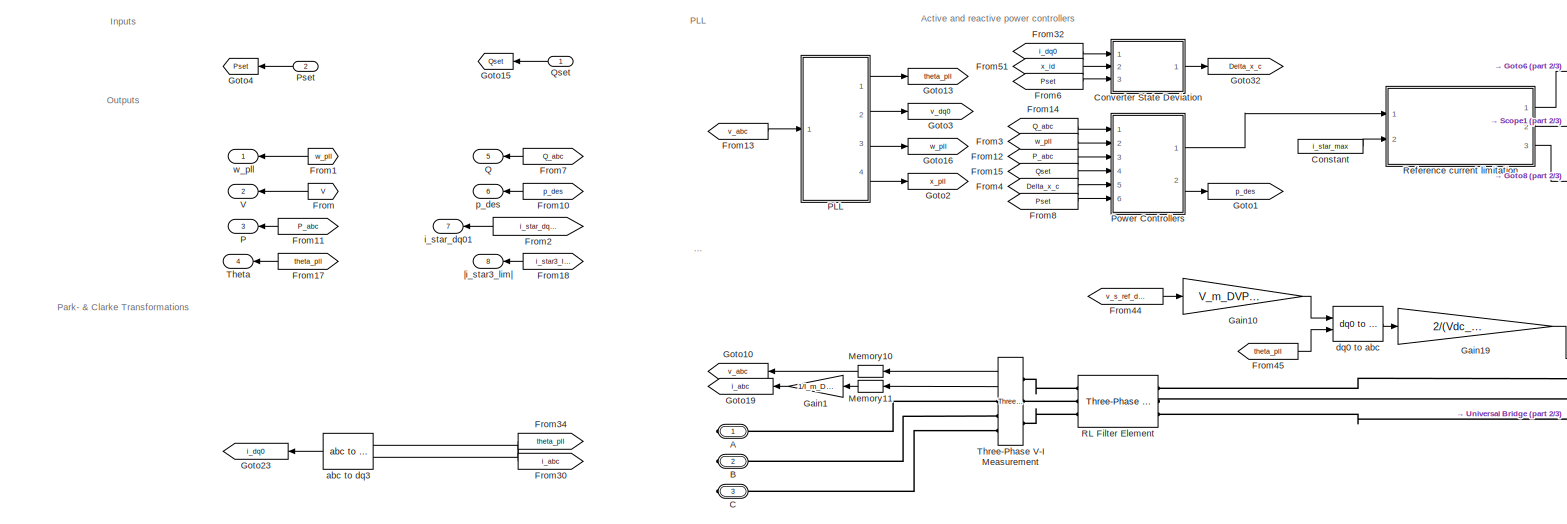
[diagram: Supercapacitor - part 1/3, full width, top band]
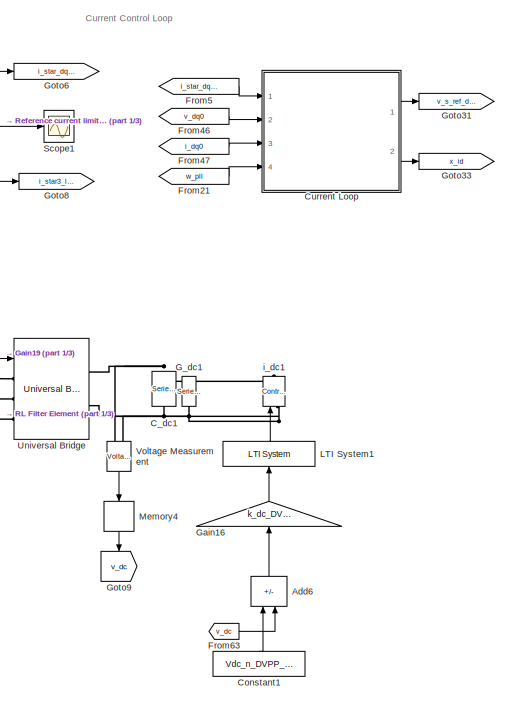
[diagram: Supercapacitor - part 2/3, right side, full height]
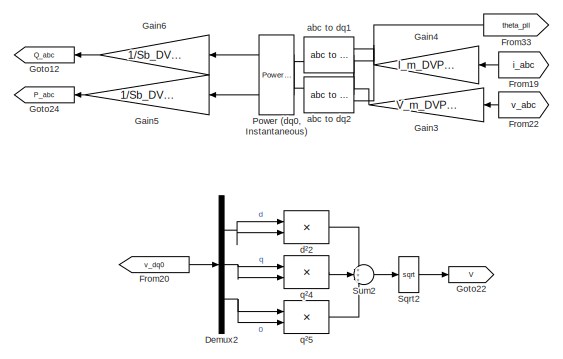
[diagram: Supercapacitor - part 3/3, bottom left region]
BLOCK [SubSystem] Supercapacitor
  Ports = [2, 8, 0, 0, 0, 0, 3]
  RequestExecContextInheritance = off
BLOCK [PMIOPort] Supercapacitor/A
  Side = Right
BLOCK [Sum] Supercapacitor/Add6
  IconShape = rectangular
  Inputs = +-
  NameLocation = right
  Ports = [2, 1]
BLOCK [PMIOPort] Supercapacitor/B
  Port = 2
  Side = Right
BLOCK [PMIOPort] Supercapacitor/C
  Port = 3
  Side = Right
BLOCK [Reference] Supercapacitor/C_dc1  REF=powerlib/Elements/Series RLC Branch
  NameLocation = left
  Ports = [0, 0, 0, 0, 0, 1, 1]
  SourceBlock = powerlib/Elements/Series RLC Branch
  SourceProductBaseCode = PS
  SourceType = Series RLC Branch
BLOCK [Constant] Supercapacitor/Constant
  Value = i_star_max
BLOCK [Constant] Supercapacitor/Constant1
  NameLocation = right
  Value = Vdc_n_DVPP_1_3
BLOCK [SubSystem] Supercapacitor/Converter State Deviation
  Ports = [3, 1]
  RequestExecContextInheritance = off
BLOCK [Constant] Supercapacitor/Converter State Deviation/Constant1
  Value = xid0_DVPP_1_3_pu
BLOCK [Outport] Supercapacitor/Converter State Deviation/Delta x_c
BLOCK [Demux] Supercapacitor/Converter State Deviation/Demux2
  Outputs = 3
  Ports = [1, 3]
BLOCK [Gain] Supercapacitor/Converter State Deviation/Gain
  Gain = 1/vd0_DVPP_1_3_pu
BLOCK [Mux] Supercapacitor/Converter State Deviation/Mux
  DisplayOption = bar
  Inputs = 2
  Ports = [2, 1]
BLOCK [Sum] Supercapacitor/Converter State Deviation/Sum
  Inputs = -+|
  Ports = [2, 1]
BLOCK [Sum] Supercapacitor/Converter State Deviation/Sum1
  Inputs = |+-
  Ports = [2, 1]
BLOCK [Inport] Supercapacitor/Converter State Deviation/i_dq0
BLOCK [Inport] Supercapacitor/Converter State Deviation/pset
  Port = 3
BLOCK [Inport] Supercapacitor/Converter State Deviation/x_id
  Port = 2
BLOCK [SubSystem] Supercapacitor/Current Loop
  AncestorBlock = Library/Grid-Forming Converter\nControlled by Droop Control /Current Loop
  Ports = [4, 2]
  RequestExecContextInheritance = off
BLOCK [Demux] Supercapacitor/Current Loop/Demux
  NameLocation = top
  Outputs = 2
  Ports = [1, 2]
BLOCK [Demux] Supercapacitor/Current Loop/Demux1
  NameLocation = top
  Outputs = 2
  Ports = [1, 2]
BLOCK [Demux] Supercapacitor/Current Loop/Demux2
  NameLocation = top
  Outputs = 2
  Ports = [1, 2]
BLOCK [Gain] Supercapacitor/Current Loop/Gain
  Gain = kp_i_pu
BLOCK [Gain] Supercapacitor/Current Loop/Gain1
  Gain = ki_i_pu
BLOCK [Gain] Supercapacitor/Current Loop/Gain2
  Gain = kp_i_pu
BLOCK [Gain] Supercapacitor/Current Loop/Gain3
  Gain = ki_i_pu
BLOCK [Gain] Supercapacitor/Current Loop/Gain4
  Gain = w_b
BLOCK [Integrator] Supercapacitor/Current Loop/Integrator1
  InitialCondition = xid0_DVPP_1_3_pu
  Ports = [1, 1]
BLOCK [Integrator] Supercapacitor/Current Loop/Integrator2
  InitialCondition = xiq0_DVPP_1_3_pu
  Ports = [1, 1]
BLOCK [Memory] Supercapacitor/Current Loop/Memory2
  NameLocation = top
BLOCK [Mux] Supercapacitor/Current Loop/Mux
  DisplayOption = bar
  Inputs = 3
  NameLocation = top
  Ports = [3, 1]
BLOCK [Product] Supercapacitor/Current Loop/Product
  Ports = [2, 1]
BLOCK [Product] Supercapacitor/Current Loop/Product1
  Ports = [2, 1]
BLOCK [Gain] Supercapacitor/Current Loop/Rf
  Gain = r_f_DVPP_1_3
BLOCK [Gain] Supercapacitor/Current Loop/Rf1
  Gain = r_f_DVPP_1_3
BLOCK [Selector] Supercapacitor/Current Loop/Selector1
  IndexOptions = Index vector (dialog)
  Indices = [1 2]
  InputPortWidth = 3
  NameLocation = top
  OutputSizes = 1
  Ports = [1, 1]
BLOCK [Selector] Supercapacitor/Current Loop/Selector2
  IndexOptions = Index vector (dialog)
  Indices = [1 2]
  InputPortWidth = 3
  NameLocation = top
  OutputSizes = 1
  Ports = [1, 1]
BLOCK [Selector] Supercapacitor/Current Loop/Selector3
  IndexOptions = Index vector (dialog)
  Indices = [1 2]
  InputPortWidth = 3
  NameLocation = top
  OutputSizes = 1
  Ports = [1, 1]
BLOCK [Sum] Supercapacitor/Current Loop/Sum
  Inputs = |+-
  NameLocation = top
  Ports = [2, 1]
BLOCK [Sum] Supercapacitor/Current Loop/Sum1
  Ports = [2, 1]
BLOCK [Sum] Supercapacitor/Current Loop/Sum2
  Inputs = |+-+
  NameLocation = top
  Ports = [3, 1]
BLOCK [Sum] Supercapacitor/Current Loop/Sum3
  Inputs = |++
  NameLocation = top
  Ports = [2, 1]
BLOCK [Sum] Supercapacitor/Current Loop/Sum4
  Ports = [2, 1]
BLOCK [Sum] Supercapacitor/Current Loop/Sum5
  Inputs = +++|
  NameLocation = top
  Ports = [3, 1]
BLOCK [Sum] Supercapacitor/Current Loop/Sum6
  Inputs = -+|
  NameLocation = top
  Ports = [2, 1]
BLOCK [Sum] Supercapacitor/Current Loop/Sum7
  Inputs = ++|
  NameLocation = top
  Ports = [2, 1]
BLOCK [Inport] Supercapacitor/Current Loop/i_dq0
  NameLocation = top
  Port = 3
BLOCK [Inport] Supercapacitor/Current Loop/i_star_dq0
  NameLocation = top
BLOCK [Inport] Supercapacitor/Current Loop/v_dq0
  NameLocation = top
  Port = 2
BLOCK [Outport] Supercapacitor/Current Loop/v_s_ref_dq0
  NameLocation = top
  VectorParamsAs1DForOutWhenUnconnected = off
BLOCK [Constant] Supercapacitor/Current Loop/vs_0*
  Value = 0
BLOCK [Gain] Supercapacitor/Current Loop/w*Lf
  Gain = l_f_DVPP_1_3/w_b
BLOCK [Gain] Supercapacitor/Current Loop/w*Lf1
  Gain = l_f_DVPP_1_3/w_b
BLOCK [Inport] Supercapacitor/Current Loop/w_pll
  NameLocation = top
  Port = 4
BLOCK [Outport] Supercapacitor/Current Loop/x_id
  NameLocation = top
  Port = 2
  VectorParamsAs1DForOutWhenUnconnected = off
BLOCK [Demux] Supercapacitor/Demux2
  Outputs = 3
  Ports = [1, 3]
BLOCK [From] Supercapacitor/From
  GotoTag = V
BLOCK [From] Supercapacitor/From1
  GotoTag = w_pll
  NameLocation = top
BLOCK [From] Supercapacitor/From10
  GotoTag = p_des
BLOCK [From] Supercapacitor/From11
  GotoTag = P_abc
BLOCK [From] Supercapacitor/From12
  GotoTag = P_abc
BLOCK [From] Supercapacitor/From13
  GotoTag = v_abc
BLOCK [From] Supercapacitor/From14
  GotoTag = Q_abc
BLOCK [From] Supercapacitor/From15
  GotoTag = Qset
BLOCK [From] Supercapacitor/From17
  GotoTag = theta_pll
  NameLocation = top
BLOCK [From] Supercapacitor/From18
  GotoTag = i_star3_lim
BLOCK [From] Supercapacitor/From19
  GotoTag = i_abc
  NameLocation = top
BLOCK [From] Supercapacitor/From2
  GotoTag = i_star_dq03_lim
BLOCK [From] Supercapacitor/From20
  GotoTag = v_dq0
  NameLocation = top
BLOCK [From] Supercapacitor/From21
  GotoTag = w_pll
  NameLocation = top
BLOCK [From] Supercapacitor/From22
  GotoTag = v_abc
  NameLocation = top
BLOCK [From] Supercapacitor/From3
  GotoTag = w_pll
BLOCK [From] Supercapacitor/From30
  GotoTag = i_abc
BLOCK [From] Supercapacitor/From32
  GotoTag = i_dq0
  NameLocation = top
BLOCK [From] Supercapacitor/From33
  GotoTag = theta_pll
  NameLocation = top
BLOCK [From] Supercapacitor/From34
  GotoTag = theta_pll
  NameLocation = top
BLOCK [From] Supercapacitor/From4
  GotoTag = Delta_x_c
BLOCK [From] Supercapacitor/From44
  GotoTag = v_s_ref_dq0
BLOCK [From] Supercapacitor/From45
  GotoTag = theta_pll
BLOCK [From] Supercapacitor/From46
  GotoTag = v_dq0
  NameLocation = top
BLOCK [From] Supercapacitor/From47
  GotoTag = i_dq0
  NameLocation = top
BLOCK [From] Supercapacitor/From5
  GotoTag = i_star_dq03_lim
  NameLocation = top
BLOCK [From] Supercapacitor/From51
  GotoTag = x_id
BLOCK [From] Supercapacitor/From6
  GotoTag = Pset
BLOCK [From] Supercapacitor/From63
  GotoTag = v_dc
  NameLocation = top
BLOCK [From] Supercapacitor/From7
  GotoTag = Q_abc
BLOCK [From] Supercapacitor/From8
  GotoTag = Pset
BLOCK [Reference] Supercapacitor/G_dc1  REF=powerlib/Elements/Series RLC Branch
  NameLocation = left
  Ports = [0, 0, 0, 0, 0, 1, 1]
  SourceBlock = powerlib/Elements/Series RLC Branch
  SourceProductBaseCode = PS
  SourceType = Series RLC Branch
BLOCK [Gain] Supercapacitor/Gain1
  Gain = 1/I_m_DVPP_1_3
BLOCK [Gain] Supercapacitor/Gain10
  Gain = V_m_DVPP_1_3
BLOCK [Gain] Supercapacitor/Gain16
  Gain = k_dc_DVPP_1_3
  NameLocation = right
BLOCK [Gain] Supercapacitor/Gain19
  Gain = 2/(Vdc_n_DVPP_1_3)
BLOCK [Gain] Supercapacitor/Gain3
  Gain = V_m_DVPP_1_3
BLOCK [Gain] Supercapacitor/Gain4
  Gain = I_m_DVPP_1_3
BLOCK [Gain] Supercapacitor/Gain5
  Gain = 1/Sb_DVPP_1_3
BLOCK [Gain] Supercapacitor/Gain6
  Gain = 1/Sb_DVPP_1_3
BLOCK [Goto] Supercapacitor/Goto1
  GotoTag = p_des
  NameLocation = top
BLOCK [Goto] Supercapacitor/Goto10
  GotoTag = v_abc
  NameLocation = top
BLOCK [Goto] Supercapacitor/Goto12
  GotoTag = Q_abc
  NameLocation = top
BLOCK [Goto] Supercapacitor/Goto13
  GotoTag = theta_pll
BLOCK [Goto] Supercapacitor/Goto15
  GotoTag = Qset
  NameLocation = top
BLOCK [Goto] Supercapacitor/Goto16
  GotoTag = w_pll
  NameLocation = top
BLOCK [Goto] Supercapacitor/Goto19
  GotoTag = i_abc
BLOCK [Goto] Supercapacitor/Goto2
  GotoTag = x_pll
  NameLocation = top
BLOCK [Goto] Supercapacitor/Goto22
  GotoTag = V
BLOCK [Goto] Supercapacitor/Goto23
  GotoTag = i_dq0
BLOCK [Goto] Supercapacitor/Goto24
  GotoTag = P_abc
  NameLocation = top
BLOCK [Goto] Supercapacitor/Goto3
  GotoTag = v_dq0
BLOCK [Goto] Supercapacitor/Goto31
  GotoTag = v_s_ref_dq0
  NameLocation = top
BLOCK [Goto] Supercapacitor/Goto32
  GotoTag = Delta_x_c
  NameLocation = top
BLOCK [Goto] Supercapacitor/Goto33
  GotoTag = x_id
  NameLocation = top
BLOCK [Goto] Supercapacitor/Goto4
  GotoTag = Pset
  NameLocation = top
BLOCK [Goto] Supercapacitor/Goto6
  GotoTag = i_star_dq03_lim
  NameLocation = top
BLOCK [Goto] Supercapacitor/Goto8
  GotoTag = i_star3_lim
  NameLocation = top
BLOCK [Goto] Supercapacitor/Goto9
  GotoTag = v_dc
  NameLocation = left
BLOCK [Reference] Supercapacitor/LTI System1  REF=cstblocks/LTI System
  NameLocation = right
  Ports = [1, 1]
  SourceBlock = cstblocks/LTI System
  SourceProductBaseCode = CT
  SourceType = LTI Block
BLOCK [Memory] Supercapacitor/Memory10
  InitialCondition = [vabc_DVPP_1_3_0_pu(1), vabc_DVPP_1_3_0_pu(2), vabc_DVPP_1_3_0_pu(3)]
  NameLocation = top
BLOCK [Memory] Supercapacitor/Memory11
  InitialCondition = [iabc_DVPP_1_3_0(1), iabc_DVPP_1_3_0(2), iabc_DVPP_1_3_0(3)]
  NameLocation = top
BLOCK [Memory] Supercapacitor/Memory4
  NameLocation = left
BLOCK [Outport] Supercapacitor/P
  NameLocation = top
  Port = 3
  VectorParamsAs1DForOutWhenUnconnected = off
BLOCK [SubSystem] Supercapacitor/PLL
  Ports = [1, 4]
  RequestExecContextInheritance = off
BLOCK [Display] Supercapacitor/PLL/Display
  Decimation = 1
  Ports = [1]
BLOCK [Gain] Supercapacitor/PLL/Gain
  Gain = 1/fb
BLOCK [Integrator] Supercapacitor/PLL/Integrator3
  InitialCondition = xpll0_pu
  Ports = [1, 1]
BLOCK [Selector] Supercapacitor/PLL/Selector
  IndexOptions = Index vector (dialog)
  Indices = 2
  InputPortWidth = 3
  OutputSizes = 1
  Ports = [1, 1]
BLOCK [SubSystem] Supercapacitor/PLL/Subsystem
  Ports = [1, 2]
  RequestExecContextInheritance = off
BLOCK [Constant] Supercapacitor/PLL/Subsystem/Constant
  Value = 2*pi*50
BLOCK [Demux] Supercapacitor/PLL/Subsystem/Demux2
  Outputs = 3
  Ports = [1, 3]
BLOCK [Product] Supercapacitor/PLL/Subsystem/Divide
  Inputs = /*
  Ports = [2, 1]
BLOCK [Reference] Supercapacitor/PLL/Subsystem/First-Order Filter  REF=powerlib_meascontrol/Filters/First-Order
Filter
  Ports = [1, 1]
  SourceBlock = powerlib_meascontrol/Filters/First-Order\nFilter
  SourceProductBaseCode = PS
  SourceType = First-Order Filter
BLOCK [Outport] Supercapacitor/PLL/Subsystem/Freq
  VectorParamsAs1DForOutWhenUnconnected = off
BLOCK [Gain] Supercapacitor/PLL/Subsystem/Gain
  Gain = kp_pll
BLOCK [Gain] Supercapacitor/PLL/Subsystem/Gain1
  Gain = ki_pll
BLOCK [Gain] Supercapacitor/PLL/Subsystem/Gain10
  Gain = 1/2/pi
  OutDataTypeStr = Inherit: Same as input
  ParamDataTypeStr = Inherit: Same as input
  SaturateOnIntegerOverflow = on
BLOCK [Integrator] Supercapacitor/PLL/Subsystem/Integrator
  Ports = [1, 1]
BLOCK [Integrator] Supercapacitor/PLL/Subsystem/Integrator1
  InitialCondition = xpll0_pu
  Ports = [1, 1]
BLOCK [Memory] Supercapacitor/PLL/Subsystem/Memory
  InitialCondition = fb
BLOCK [Selector] Supercapacitor/PLL/Subsystem/Selector
  IndexOptions = Index vector (dialog)
  Indices = 2
  InputPortWidth = 3
  OutputSizes = 1
  Ports = [1, 1]
BLOCK [Sqrt] Supercapacitor/PLL/Subsystem/Sqrt2
BLOCK [Sum] Supercapacitor/PLL/Subsystem/Sum
  Ports = [2, 1]
BLOCK [Sum] Supercapacitor/PLL/Subsystem/Sum1
  Inputs = ++|
  Ports = [2, 1]
BLOCK [Sum] Supercapacitor/PLL/Subsystem/Sum2
  InputSameDT = on
  Inputs = +++
  OutDataTypeStr = Inherit: Same as first input
  Ports = [3, 1]
  SaturateOnIntegerOverflow = on
BLOCK [Inport] Supercapacitor/PLL/Subsystem/Vabc
  PortDimensions = 3
BLOCK [Reference] Supercapacitor/PLL/Subsystem/abc to dq0  REF=powerlib_meascontrol/Transformations/abc to dq0
  Ports = [2, 1]
  SourceBlock = powerlib_meascontrol/Transformations/abc to dq0
  SourceProductBaseCode = MT,PS
  SourceType = abc to dq0 Transformation
BLOCK [Product] Supercapacitor/PLL/Subsystem/d²2
  InputSameDT = on
  NameLocation = top
  OutDataTypeStr = Inherit: Same as first input
  Ports = [2, 1]
  RndMeth = Zero
  SaturateOnIntegerOverflow = on
BLOCK [Product] Supercapacitor/PLL/Subsystem/q²4
  InputSameDT = on
  OutDataTypeStr = Inherit: Same as first input
  Ports = [2, 1]
  RndMeth = Zero
  SaturateOnIntegerOverflow = on
BLOCK [Product] Supercapacitor/PLL/Subsystem/q²5
  InputSameDT = on
  OutDataTypeStr = Inherit: Same as first input
  Ports = [2, 1]
  RndMeth = Zero
  SaturateOnIntegerOverflow = on
BLOCK [Outport] Supercapacitor/PLL/Subsystem/wt
  Port = 2
  VectorParamsAs1DForOutWhenUnconnected = off
BLOCK [Reference] Supercapacitor/PLL/abc to dq0  REF=powerlib_meascontrol/Transformations/abc to dq0
  Ports = [2, 1]
  SourceBlock = powerlib_meascontrol/Transformations/abc to dq0
  SourceProductBaseCode = PS
  SourceType = abc to dq0 Transformation
BLOCK [Outport] Supercapacitor/PLL/theta_pll
  VectorParamsAs1DForOutWhenUnconnected = off
BLOCK [Inport] Supercapacitor/PLL/v_abc
BLOCK [Outport] Supercapacitor/PLL/v_dq0
  Port = 2
  VectorParamsAs1DForOutWhenUnconnected = off
BLOCK [Outport] Supercapacitor/PLL/w_pll
  Port = 3
  VectorParamsAs1DForOutWhenUnconnected = off
BLOCK [Outport] Supercapacitor/PLL/x_pll
  Port = 4
  VectorParamsAs1DForOutWhenUnconnected = off
BLOCK [Reference] Supercapacitor/Power (dq0, Instantaneous)  REF=powerlib_meascontrol/Measurements/Power
(dq0, Instantaneous)
  NameLocation = top
  Ports = [2, 2]
  SourceBlock = powerlib_meascontrol/Measurements/Power\n(dq0, Instantaneous)
  SourceProductBaseCode = PS
  SourceType = Power (dq0, Instantaneous)
BLOCK [SubSystem] Supercapacitor/Power Controllers
  Ports = [6, 2]
  RequestExecContextInheritance = off
BLOCK [Constant] Supercapacitor/Power Controllers/0
  Value = 0
BLOCK [SubSystem] Supercapacitor/Power Controllers/DVPP State Feedback Controller for Active Power Control
  Ports = [4, 2]
  RequestExecContextInheritance = off
BLOCK [Constant] Supercapacitor/Power Controllers/DVPP State Feedback Controller for Active Power Control/Constant
  Value = ReferenceSS3_DVPP_1.A
  VectorParams1D = off
BLOCK [Constant] Supercapacitor/Power Controllers/DVPP State Feedback Controller for Active Power Control/Constant1
  Value = ReferenceSS3_DVPP_1.B
  VectorParams1D = off
BLOCK [Constant] Supercapacitor/Power Controllers/DVPP State Feedback Controller for Active Power Control/Constant2
  Value = ReferenceSS3_DVPP_1.C
  VectorParams1D = off
BLOCK [Constant] Supercapacitor/Power Controllers/DVPP State Feedback Controller for Active Power Control/Constant3
  Value = ReferenceSS3_DVPP_1.D
  VectorParams1D = off
BLOCK [Inport] Supercapacitor/Power Controllers/DVPP State Feedback Controller for Active Power Control/Delta_x_c
  Port = 3
BLOCK [Gain] Supercapacitor/Power Controllers/DVPP State Feedback Controller for Active Power Control/Gain
  Gain = K3_DVPP_1
  Multiplication = Matrix(K*u)
BLOCK [Gain] Supercapacitor/Power Controllers/DVPP State Feedback Controller for Active Power Control/Gain1
BLOCK [Gain] Supercapacitor/Power Controllers/DVPP State Feedback Controller for Active Power Control/Gain2
  Gain = 1/vd0_DVPP_1_3_pu
BLOCK [Integrator] Supercapacitor/Power Controllers/DVPP State Feedback Controller for Active Power Control/Integrator
  Ports = [1, 1]
BLOCK [Mux] Supercapacitor/Power Controllers/DVPP State Feedback Controller for Active Power Control/Mux
  DisplayOption = bar
  Inputs = 3
  Ports = [3, 1]
BLOCK [Inport] Supercapacitor/Power Controllers/DVPP State Feedback Controller for Active Power Control/P_abc
  Port = 2
BLOCK [Inport] Supercapacitor/Power Controllers/DVPP State Feedback Controller for Active Power Control/P_set
  Port = 4
BLOCK [Scope] Supercapacitor/Power Controllers/DVPP State Feedback Controller for Active Power Control/Scope
  Floating = off
  NumInputPorts = 1
  Ports = [1]
  ScopeSpecificationString = Simulink.scopes.TimeScopeBlockCfg('CurrentConfiguration', extmgr.ConfigurationSet(extmgr.Configuration('Core','General UI',true),extmgr.Configuration('Core','Source UI',true),extmgr.Configuration('Sources','WiredSimulink',true,'DataLoggingVariableName','ScopeData4'),extmgr.Configuration('Visuals','Time Domain',true),extmgr.Configuration('Tools','Plot Navigation',true),extmgr.Configuration('Tools',...<+40ch>
BLOCK [Sum] Supercapacitor/Power Controllers/DVPP State Feedback Controller for Active Power Control/Sum
  Inputs = +-
  Ports = [2, 1]
BLOCK [Sum] Supercapacitor/Power Controllers/DVPP State Feedback Controller for Active Power Control/Sum1
  Inputs = ++|
  NameLocation = left
  Ports = [2, 1]
BLOCK [Sum] Supercapacitor/Power Controllers/DVPP State Feedback Controller for Active Power Control/Sum2
  Inputs = ++|
  Ports = [2, 1]
BLOCK [Sum] Supercapacitor/Power Controllers/DVPP State Feedback Controller for Active Power Control/Sum3
  Inputs = -+
  Ports = [2, 1]
BLOCK [Reference] Supercapacitor/Power Controllers/DVPP State Feedback Controller for Active Power Control/Varying State Space  REF=cstblocks/Linear Parameter Varying/Varying State Space
  Ports = [5, 3]
  SourceBlock = cstblocks/Linear Parameter Varying/Varying State Space
  SourceProductBaseCode = CT
  SourceType = Varying State Space
BLOCK [Outport] Supercapacitor/Power Controllers/DVPP State Feedback Controller for Active Power Control/i_star_d
  Port = 2
BLOCK [Outport] Supercapacitor/Power Controllers/DVPP State Feedback Controller for Active Power Control/p_des
BLOCK [Constant] Supercapacitor/Power Controllers/DVPP State Feedback Controller for Active Power Control/w* [SI]
BLOCK [Inport] Supercapacitor/Power Controllers/DVPP State Feedback Controller for Active Power Control/w_pll
BLOCK [Inport] Supercapacitor/Power Controllers/Delta x_c
  Port = 5
BLOCK [Mux] Supercapacitor/Power Controllers/Mux
  DisplayOption = bar
  Inputs = 3
  Ports = [3, 1]
BLOCK [Inport] Supercapacitor/Power Controllers/P_abc
  Port = 3
BLOCK [Inport] Supercapacitor/Power Controllers/P_set
  Port = 6
BLOCK [Inport] Supercapacitor/Power Controllers/Q_abc
BLOCK [Inport] Supercapacitor/Power Controllers/Q_set
  Port = 4
BLOCK [SubSystem] Supercapacitor/Power Controllers/Reactive Power Controller PI-droop control
  Ports = [2, 1]
  RequestExecContextInheritance = off
BLOCK [Gain] Supercapacitor/Power Controllers/Reactive Power Controller PI-droop control/Gain
  Gain = kp_q_pu
BLOCK [Gain] Supercapacitor/Power Controllers/Reactive Power Controller PI-droop control/Gain1
  Gain = ki_q_pu
BLOCK [Integrator] Supercapacitor/Power Controllers/Reactive Power Controller PI-droop control/Integrator1
  InitialCondition = xq0_DVPP_1_3_pu
  Ports = [1, 1]
BLOCK [Inport] Supercapacitor/Power Controllers/Reactive Power Controller PI-droop control/Q_abc
BLOCK [Inport] Supercapacitor/Power Controllers/Reactive Power Controller PI-droop control/Qset
  Port = 2
BLOCK [Sum] Supercapacitor/Power Controllers/Reactive Power Controller PI-droop control/Sum
  Inputs = -+
  Ports = [2, 1]
BLOCK [Sum] Supercapacitor/Power Controllers/Reactive Power Controller PI-droop control/Sum1
  Ports = [2, 1]
BLOCK [Outport] Supercapacitor/Power Controllers/Reactive Power Controller PI-droop control/i_star_q
BLOCK [Outport] Supercapacitor/Power Controllers/i_star_dq0
BLOCK [Outport] Supercapacitor/Power Controllers/p_des
  Port = 2
BLOCK [Inport] Supercapacitor/Power Controllers/w_pll
  Port = 2
BLOCK [Inport] Supercapacitor/Pset
  NameLocation = top
  Port = 2
BLOCK [Outport] Supercapacitor/Q
  NameLocation = top
  Port = 5
  VectorParamsAs1DForOutWhenUnconnected = off
BLOCK [Inport] Supercapacitor/Qset
  NameLocation = top
BLOCK [Reference] Supercapacitor/RL Filter Element  REF=powerlib/Elements/Three-Phase
Series RLC Branch
  AttributesFormatString = \n
  Ports = [0, 0, 0, 0, 0, 3, 3]
  SourceBlock = powerlib/Elements/Three-Phase\nSeries RLC Branch
  SourceProductBaseCode = PS
  SourceType = Three-Phase Series RLC Branch
BLOCK [SubSystem] Supercapacitor/Reference current limitation
  Ports = [2, 3]
  RequestExecContextInheritance = off
BLOCK [Demux] Supercapacitor/Reference current limitation/Demux1
  Outputs = 3
  Ports = [1, 3]
BLOCK [Demux] Supercapacitor/Reference current limitation/Demux2
  Outputs = 3
  Ports = [1, 3]
BLOCK [Product] Supercapacitor/Reference current limitation/Divide
  Inputs = */
  Ports = [2, 1]
BLOCK [Sum] Supercapacitor/Reference current limitation/Minus
  IconShape = rectangular
  Inputs = +-
  Ports = [2, 1]
BLOCK [Sum] Supercapacitor/Reference current limitation/Minus1
  IconShape = rectangular
  Inputs = +++
  Ports = [3, 1]
BLOCK [Sum] Supercapacitor/Reference current limitation/Minus4
  IconShape = rectangular
  Inputs = +++
  Ports = [3, 1]
BLOCK [Product] Supercapacitor/Reference current limitation/Product
  Ports = [2, 1]
  RndMeth = Zero
BLOCK [Product] Supercapacitor/Reference current limitation/Product1
  Ports = [2, 1]
  RndMeth = Zero
BLOCK [Product] Supercapacitor/Reference current limitation/Product2
  Ports = [2, 1]
  RndMeth = Zero
BLOCK [Product] Supercapacitor/Reference current limitation/Product3
  Ports = [2, 1]
  RndMeth = Zero
BLOCK [Product] Supercapacitor/Reference current limitation/Product4
  Ports = [2, 1]
  RndMeth = Zero
BLOCK [Product] Supercapacitor/Reference current limitation/Product6
  Ports = [2, 1]
  RndMeth = Zero
BLOCK [Product] Supercapacitor/Reference current limitation/Product7
  Ports = [2, 1]
  RndMeth = Zero
BLOCK [Saturate] Supercapacitor/Reference current limitation/Saturation1
  LowerLimit = 0
  UpperLimit = inf
BLOCK [Signum] Supercapacitor/Reference current limitation/Sign
BLOCK [Sqrt] Supercapacitor/Reference current limitation/Sqrt1
BLOCK [Sqrt] Supercapacitor/Reference current limitation/Sqrt2
BLOCK [Switch] Supercapacitor/Reference current limitation/Switch1
  InputSameDT = off
  SaturateOnIntegerOverflow = off
  Threshold = 1
BLOCK [Inport] Supercapacitor/Reference current limitation/i_star_dq0
BLOCK [Outport] Supercapacitor/Reference current limitation/i_star_dq0_lim
  VectorParamsAs1DForOutWhenUnconnected = off
BLOCK [Inport] Supercapacitor/Reference current limitation/i_star_max
  NameLocation = right
  Port = 2
BLOCK [Outport] Supercapacitor/Reference current limitation/||i_star_dq0_lim||
  Port = 3
  VectorParamsAs1DForOutWhenUnconnected = off
BLOCK [Outport] Supercapacitor/Reference current limitation/||i_star_dq0||
  Port = 2
  VectorParamsAs1DForOutWhenUnconnected = off
BLOCK [Scope] Supercapacitor/Scope1
  Floating = off
  NumInputPorts = 1
  Ports = [1]
  ScopeSpecificationString = Simulink.scopes.TimeScopeBlockCfg('CurrentConfiguration', extmgr.ConfigurationSet(extmgr.Configuration('Core','General UI',true),extmgr.Configuration('Core','Source UI',true),extmgr.Configuration('Sources','WiredSimulink',true,'DataLoggingVariableName','ScopeData3'),extmgr.Configuration('Visuals','Time Domain',true,'SerializedDisplays',{struct('MinYLimReal','0.45431','MaxYLimReal','1.4234','YLabel...<+1448ch>
BLOCK [Sqrt] Supercapacitor/Sqrt2
BLOCK [Sum] Supercapacitor/Sum2
  InputSameDT = on
  Inputs = +++
  OutDataTypeStr = Inherit: Same as first input
  Ports = [3, 1]
  SaturateOnIntegerOverflow = on
BLOCK [Outport] Supercapacitor/Theta
  NameLocation = top
  Port = 4
  VectorParamsAs1DForOutWhenUnconnected = off
BLOCK [Reference] Supercapacitor/Three-Phase V-I Measurement  REF=powerlib/Measurements/Three-Phase
V-I Measurement
  Ports = [0, 2, 0, 0, 0, 3, 3]
  SourceBlock = powerlib/Measurements/Three-Phase\nV-I Measurement
  SourceProductBaseCode = PS
  SourceType = Three-Phase VI Measurement
BLOCK [Reference] Supercapacitor/Universal Bridge  REF=powerlib/Power
Electronics/Universal Bridge
  Ports = [1, 0, 0, 0, 0, 3, 2]
  SourceBlock = powerlib/Power\nElectronics/Universal Bridge
  SourceProductBaseCode = PS
  SourceType = Universal Bridge
BLOCK [Outport] Supercapacitor/V
  NameLocation = top
  Port = 2
  VectorParamsAs1DForOutWhenUnconnected = off
BLOCK [Reference] Supercapacitor/Voltage Measurement  REF=powerlib/Measurements/Voltage Measurement
  NameLocation = left
  Ports = [0, 1, 0, 0, 0, 2]
  SourceBlock = powerlib/Measurements/Voltage Measurement
  SourceProductBaseCode = PS
  SourceType = Voltage Measurement
  UserDataPersistent = on
BLOCK [Reference] Supercapacitor/abc to dq1  REF=powerlib_meascontrol/Transformations/abc to dq0
  NameLocation = top
  Ports = [2, 1]
  SourceBlock = powerlib_meascontrol/Transformations/abc to dq0
  SourceProductBaseCode = PS
  SourceType = abc to dq0 Transformation
BLOCK [Reference] Supercapacitor/abc to dq2  REF=powerlib_meascontrol/Transformations/abc to dq0
  NameLocation = top
  Ports = [2, 1]
  SourceBlock = powerlib_meascontrol/Transformations/abc to dq0
  SourceProductBaseCode = PS
  SourceType = abc to dq0 Transformation
BLOCK [Reference] Supercapacitor/abc to dq3  REF=powerlib_meascontrol/Transformations/abc to dq0
  NameLocation = top
  Ports = [2, 1]
  SourceBlock = powerlib_meascontrol/Transformations/abc to dq0
  SourceProductBaseCode = PS
  SourceType = abc to dq0 Transformation
BLOCK [Reference] Supercapacitor/dq0 to abc  REF=powerlib_meascontrol/Transformations/dq0 to abc
  Ports = [2, 1]
  SourceBlock = powerlib_meascontrol/Transformations/dq0 to abc
  SourceProductBaseCode = PS
  SourceType = dq0 to abc Transformation
BLOCK [Product] Supercapacitor/d²2
  InputSameDT = on
  NameLocation = top
  OutDataTypeStr = Inherit: Same as first input
  Ports = [2, 1]
  RndMeth = Zero
  SaturateOnIntegerOverflow = on
BLOCK [Reference] Supercapacitor/i_dc1  REF=powerlib/Electrical
Sources/Controlled Current Source
  NameLocation = right
  Ports = [1, 0, 0, 0, 0, 1, 1]
  SourceBlock = powerlib/Electrical\nSources/Controlled Current Source
  SourceProductBaseCode = PS
  SourceType = Controlled Current Source
BLOCK [Outport] Supercapacitor/i_star_dq01
  NameLocation = top
  Port = 7
  VectorParamsAs1DForOutWhenUnconnected = off
BLOCK [Outport] Supercapacitor/p_des
  NameLocation = top
  Port = 6
  VectorParamsAs1DForOutWhenUnconnected = off
BLOCK [Product] Supercapacitor/q²4
  InputSameDT = on
  OutDataTypeStr = Inherit: Same as first input
  Ports = [2, 1]
  RndMeth = Zero
  SaturateOnIntegerOverflow = on
BLOCK [Product] Supercapacitor/q²5
  InputSameDT = on
  OutDataTypeStr = Inherit: Same as first input
  Ports = [2, 1]
  RndMeth = Zero
  SaturateOnIntegerOverflow = on
BLOCK [Outport] Supercapacitor/w_pll
  NameLocation = top
  VectorParamsAs1DForOutWhenUnconnected = off
BLOCK [Outport] Supercapacitor/|i_star3_lim|
  NameLocation = top
  Port = 8
  VectorParamsAs1DForOutWhenUnconnected = off
BLOCK [SubSystem] Synchronous Generator 1 Hydro Turbine
  Ports = [1, 6, 0, 0, 0, 0, 3]
  RequestExecContextInheritance = off
BLOCK [PMIOPort] Synchronous Generator 1 Hydro Turbine/A
  NameLocation = top
  Side = Right
BLOCK [PMIOPort] Synchronous Generator 1 Hydro Turbine/B
  NameLocation = top
  Port = 2
  Side = Right
BLOCK [BusSelector] Synchronous Generator 1 Hydro Turbine/Bus Selector3
  OutputSignals = dq0 components.Stator voltage  vq (pu),dq0 components.Stator voltage  vd (pu),Output active power   Peo (pu),Output reactive power  Qeo (pu),Mechanical.Rotor mechanical angle  theta (deg),Mechanical.Rotor speed deviation  dw (pu),dq0 components.Field current  ifd (pu),Mechanical.Rotor speed  wm (pu),Mechanical.Rotor angle deviation  d_theta (rad)  <repeated x3 — deduplicated; at blocks: Bus Selector3>
  Ports = [1, 9]
BLOCK [PMIOPort] Synchronous Generator 1 Hydro Turbine/C
  NameLocation = top
  Port = 3
  Side = Right
BLOCK [From] Synchronous Generator 1 Hydro Turbine/From
  GotoTag = w
BLOCK [From] Synchronous Generator 1 Hydro Turbine/From1
  GotoTag = Vq
BLOCK [From] Synchronous Generator 1 Hydro Turbine/From10
  GotoTag = Ifd
BLOCK [From] Synchronous Generator 1 Hydro Turbine/From12
  GotoTag = Q
BLOCK [From] Synchronous Generator 1 Hydro Turbine/From13
  GotoTag = Pm
BLOCK [From] Synchronous Generator 1 Hydro Turbine/From2
  GotoTag = Vd
BLOCK [From] Synchronous Generator 1 Hydro Turbine/From3
  GotoTag = P
BLOCK [From] Synchronous Generator 1 Hydro Turbine/From4
  GotoTag = Theta
BLOCK [From] Synchronous Generator 1 Hydro Turbine/From6
  GotoTag = dw
BLOCK [From] Synchronous Generator 1 Hydro Turbine/From7
  GotoTag = Vq
BLOCK [From] Synchronous Generator 1 Hydro Turbine/From8
  GotoTag = Vd
BLOCK [From] Synchronous Generator 1 Hydro Turbine/From9
  GotoTag = w
BLOCK [Reference] Synchronous Generator 1 Hydro Turbine/Generic Power System Stabilizer  REF=powerlib/Machines/Generic
Power System Stabilizer
  Ports = [1, 1]
  SourceBlock = powerlib/Machines/Generic\nPower System Stabilizer
  SourceProductBaseCode = PS
  SourceType = Generic Power System Stabilizer
BLOCK [Goto] Synchronous Generator 1 Hydro Turbine/Goto
  GotoTag = Vq
BLOCK [Goto] Synchronous Generator 1 Hydro Turbine/Goto1
  GotoTag = Vd
BLOCK [Goto] Synchronous Generator 1 Hydro Turbine/Goto2
  GotoTag = P
BLOCK [Goto] Synchronous Generator 1 Hydro Turbine/Goto3
  GotoTag = Q
BLOCK [Goto] Synchronous Generator 1 Hydro Turbine/Goto4
  GotoTag = Theta
BLOCK [Goto] Synchronous Generator 1 Hydro Turbine/Goto5
  GotoTag = w
BLOCK [Goto] Synchronous Generator 1 Hydro Turbine/Goto6
  GotoTag = dw
BLOCK [Goto] Synchronous Generator 1 Hydro Turbine/Goto7
  GotoTag = Ifd
BLOCK [Goto] Synchronous Generator 1 Hydro Turbine/Goto8
  GotoTag = dTheta
BLOCK [Goto] Synchronous Generator 1 Hydro Turbine/Goto9
  GotoTag = Pm
BLOCK [SubSystem] Synchronous Generator 1 Hydro Turbine/Govenor
  Ports = [3, 1]
  RequestExecContextInheritance = off
BLOCK [Gain] Synchronous Generator 1 Hydro Turbine/Govenor/1//droop
  Gain = (-1/Rg)
BLOCK [Sum] Synchronous Generator 1 Hydro Turbine/Govenor/Delta speed
  Inputs = -+|
  Ports = [2, 1]
BLOCK [Reference] Synchronous Generator 1 Hydro Turbine/Govenor/Govenor Dynamics  REF=cstblocks/LTI System
  Ports = [1, 1]
  SourceBlock = cstblocks/LTI System
  SourceProductBaseCode = CT
  SourceType = LTI Block
BLOCK [Inport] Synchronous Generator 1 Hydro Turbine/Govenor/P_set
  Port = 3
BLOCK [Sum] Synchronous Generator 1 Hydro Turbine/Govenor/Sum
  Inputs = ++|
  Ports = [2, 1]
BLOCK [Inport] Synchronous Generator 1 Hydro Turbine/Govenor/speed
  Port = 2
BLOCK [Inport] Synchronous Generator 1 Hydro Turbine/Govenor/speed_ref
BLOCK [Outport] Synchronous Generator 1 Hydro Turbine/Govenor/throttle
  VectorParamsAs1DForOutWhenUnconnected = off
BLOCK [Reference] Synchronous Generator 1 Hydro Turbine/Hydro turbine dynamics  REF=cstblocks/LTI System
  Ports = [1, 1]
  SourceBlock = cstblocks/LTI System
  SourceProductBaseCode = CT
  SourceType = LTI Block
BLOCK [Reference] Synchronous Generator 1 Hydro Turbine/Hydro turbine dynamics1  REF=cstblocks/LTI System
  Ports = [1, 1]
  SourceBlock = cstblocks/LTI System
  SourceProductBaseCode = CT
  SourceType = LTI Block
BLOCK [Mux] Synchronous Generator 1 Hydro Turbine/Mux1
  DisplayOption = bar
  Inputs = 2
  Ports = [2, 1]
BLOCK [Mux] Synchronous Generator 1 Hydro Turbine/Mux3
  DisplayOption = bar
  Inputs = 2
  Ports = [2, 1]
BLOCK [Outport] Synchronous Generator 1 Hydro Turbine/P
  Port = 3
  VectorParamsAs1DForOutWhenUnconnected = off
BLOCK [Outport] Synchronous Generator 1 Hydro Turbine/Pm
  Port = 6
  VectorParamsAs1DForOutWhenUnconnected = off
BLOCK [Fcn] Synchronous Generator 1 Hydro Turbine/Positive Sequence Voltage1
  Expr = sqrt(u(1)^2 + u(2)^2)
BLOCK [Fcn] Synchronous Generator 1 Hydro Turbine/Positive Sequence Voltage2
  Expr = sqrt(u(1)^2 + u(2)^2)
BLOCK [Inport] Synchronous Generator 1 Hydro Turbine/Pset
BLOCK [Outport] Synchronous Generator 1 Hydro Turbine/Q
  Port = 5
  VectorParamsAs1DForOutWhenUnconnected = off
BLOCK [Reference] Synchronous Generator 1 Hydro Turbine/ST1A Excitation System  REF=sps_avr/ST1A
Excitation System
  Ports = [4, 1]
  SourceBlock = sps_avr/ST1A\nExcitation System
  SourceProductBaseCode = PS
  SourceType = ST1A Excitation System
BLOCK [Scope] Synchronous Generator 1 Hydro Turbine/Scope
  Floating = off
  NumInputPorts = 2
  Ports = [2]
  ScopeSpecificationString = Simulink.scopes.TimeScopeBlockCfg('CurrentConfiguration', extmgr.ConfigurationSet(extmgr.Configuration('Core','General UI',true),extmgr.Configuration('Core','Source UI',true),extmgr.Configuration('Sources','WiredSimulink',true,'DataLoggingVariableName','ScopeData1'),extmgr.Configuration('Visuals','Time Domain',true,'SerializedDisplays',{struct('MinYLimReal','0.53605','MaxYLimReal','0.84877','YLabe...<+1551ch>
BLOCK [Sum] Synchronous Generator 1 Hydro Turbine/Sum
  Inputs = |+-
  Ports = [2, 1]
BLOCK [Sum] Synchronous Generator 1 Hydro Turbine/Sum1
  Inputs = |++
  Ports = [2, 1]
BLOCK [Reference] Synchronous Generator 1 Hydro Turbine/Synchronous Machine pu Fundamental  REF=powerlib/Machines/Synchronous Machine
pu Fundamental
  Ports = [2, 1, 0, 0, 0, 0, 3]
  SourceBlock = powerlib/Machines/Synchronous Machine\npu Fundamental
  SourceProductBaseCode = PS
  SourceType = Synchronous Machine
BLOCK [Outport] Synchronous Generator 1 Hydro Turbine/Theta
  Port = 4
  VectorParamsAs1DForOutWhenUnconnected = off
BLOCK [Outport] Synchronous Generator 1 Hydro Turbine/V
  Port = 2
  VectorParamsAs1DForOutWhenUnconnected = off
BLOCK [Outport] Synchronous Generator 1 Hydro Turbine/f
  VectorParamsAs1DForOutWhenUnconnected = off
BLOCK [Constant] Synchronous Generator 1 Hydro Turbine/wref6
  NameLocation = top
BLOCK [Constant] Synchronous Generator 1 Hydro Turbine/wref7
  NameLocation = top
BLOCK [SubSystem] Synchronous Machine 2 reheat steam turbine
  Ports = [1, 5, 0, 0, 0, 0, 3]
  RequestExecContextInheritance = off
BLOCK [PMIOPort] Synchronous Machine 2 reheat steam turbine/A
  NameLocation = top
  Side = Right
BLOCK [PMIOPort] Synchronous Machine 2 reheat steam turbine/B
  NameLocation = top
  Port = 2
  Side = Right
BLOCK [BusSelector] Synchronous Machine 2 reheat steam turbine/Bus Selector3
  Ports = [1, 9]
BLOCK [PMIOPort] Synchronous Machine 2 reheat steam turbine/C
  NameLocation = top
  Port = 3
  Side = Right
BLOCK [From] Synchronous Machine 2 reheat steam turbine/From
  GotoTag = w
BLOCK [From] Synchronous Machine 2 reheat steam turbine/From1
  GotoTag = Vq
BLOCK [From] Synchronous Machine 2 reheat steam turbine/From10
  GotoTag = Ifd
BLOCK [From] Synchronous Machine 2 reheat steam turbine/From12
  GotoTag = Q
BLOCK [From] Synchronous Machine 2 reheat steam turbine/From2
  GotoTag = Vd
BLOCK [From] Synchronous Machine 2 reheat steam turbine/From3
  GotoTag = P
BLOCK [From] Synchronous Machine 2 reheat steam turbine/From4
  GotoTag = Theta
BLOCK [From] Synchronous Machine 2 reheat steam turbine/From6
  GotoTag = dw
BLOCK [From] Synchronous Machine 2 reheat steam turbine/From7
  GotoTag = Vq
BLOCK [From] Synchronous Machine 2 reheat steam turbine/From8
  GotoTag = Vd
BLOCK [From] Synchronous Machine 2 reheat steam turbine/From9
  GotoTag = w
BLOCK [Reference] Synchronous Machine 2 reheat steam turbine/Generic Power System Stabilizer  REF=powerlib/Machines/Generic
Power System Stabilizer
  Ports = [1, 1]
  SourceBlock = powerlib/Machines/Generic\nPower System Stabilizer
  SourceProductBaseCode = PS
  SourceType = Generic Power System Stabilizer
BLOCK [Goto] Synchronous Machine 2 reheat steam turbine/Goto
  GotoTag = Vq
BLOCK [Goto] Synchronous Machine 2 reheat steam turbine/Goto1
  GotoTag = Vd
BLOCK [Goto] Synchronous Machine 2 reheat steam turbine/Goto2
  GotoTag = P
BLOCK [Goto] Synchronous Machine 2 reheat steam turbine/Goto3
  GotoTag = Q
BLOCK [Goto] Synchronous Machine 2 reheat steam turbine/Goto4
  GotoTag = Theta
BLOCK [Goto] Synchronous Machine 2 reheat steam turbine/Goto5
  GotoTag = w
BLOCK [Goto] Synchronous Machine 2 reheat steam turbine/Goto6
  GotoTag = dw
BLOCK [Goto] Synchronous Machine 2 reheat steam turbine/Goto7
  GotoTag = Ifd
BLOCK [Goto] Synchronous Machine 2 reheat steam turbine/Goto8
  GotoTag = dTheta
BLOCK [SubSystem] Synchronous Machine 2 reheat steam turbine/Govenor
  Ports = [3, 1]
  RequestExecContextInheritance = off
BLOCK [Gain] Synchronous Machine 2 reheat steam turbine/Govenor/1//droop
  Gain = (-1/Rg)
BLOCK [Sum] Synchronous Machine 2 reheat steam turbine/Govenor/Delta speed
  Inputs = -+|
  Ports = [2, 1]
BLOCK [Reference] Synchronous Machine 2 reheat steam turbine/Govenor/Govenor Dynamics  REF=cstblocks/LTI System
  Ports = [1, 1]
  SourceBlock = cstblocks/LTI System
  SourceProductBaseCode = CT
  SourceType = LTI Block
BLOCK [Inport] Synchronous Machine 2 reheat steam turbine/Govenor/P_set
  Port = 3
BLOCK [Sum] Synchronous Machine 2 reheat steam turbine/Govenor/Sum
  Inputs = ++|
  Ports = [2, 1]
BLOCK [Inport] Synchronous Machine 2 reheat steam turbine/Govenor/speed
  Port = 2
BLOCK [Inport] Synchronous Machine 2 reheat steam turbine/Govenor/speed_ref
BLOCK [Outport] Synchronous Machine 2 reheat steam turbine/Govenor/throttle
  VectorParamsAs1DForOutWhenUnconnected = off
BLOCK [Mux] Synchronous Machine 2 reheat steam turbine/Mux1
  DisplayOption = bar
  Inputs = 2
  Ports = [2, 1]
BLOCK [Mux] Synchronous Machine 2 reheat steam turbine/Mux3
  DisplayOption = bar
  Inputs = 2
  Ports = [2, 1]
BLOCK [Outport] Synchronous Machine 2 reheat steam turbine/P
  Port = 3
  VectorParamsAs1DForOutWhenUnconnected = off
BLOCK [Fcn] Synchronous Machine 2 reheat steam turbine/Positive Sequence Voltage1
  Expr = sqrt(u(1)^2 + u(2)^2)
BLOCK [Fcn] Synchronous Machine 2 reheat steam turbine/Positive Sequence Voltage2
  Expr = sqrt(u(1)^2 + u(2)^2)
BLOCK [Inport] Synchronous Machine 2 reheat steam turbine/Pset
BLOCK [Outport] Synchronous Machine 2 reheat steam turbine/Q
  Port = 5
  VectorParamsAs1DForOutWhenUnconnected = off
BLOCK [Reference] Synchronous Machine 2 reheat steam turbine/Reheat steam turbine dynamics  REF=cstblocks/LTI System
  Ports = [1, 1]
  SourceBlock = cstblocks/LTI System
  SourceProductBaseCode = CT
  SourceType = LTI Block
BLOCK [SubSystem] Synchronous Machine 2 reheat steam turbine/ST1A Excitation System
  AncestorBlock = sps_avr/ST1A\nExcitation System
  CloseFcn = sps_rtmsupport('CloseFcn', gcbh);
  CopyFcn = sps_rtmsupport('CopyFcn', gcbh);
  DeleteFcn = sps_rtmsupport('DeleteFcn', gcbh);
  DialogController = POWERSYS.PowerSysDialog
  LoadFcn = sps_rtmsupport('LoadFcn', gcbh);
  ModelCloseFcn = sps_rtmsupport('ModelCloseFcn', gcbh);
  NameChangeFcn = sps_rtmsupport('NameChangeFcn', gcbh);
  OpenFcn = sps_rtmsupport('OpenFcn', gcbh, []);
  Ports = [4, 1]
  PostSaveFcn = sps_rtmsupport('PostSaveFcn', gcbh);
  PreCopyFcn = sps_rtmsupport('PreCopyFcn', gcbh);
  PreDeleteFcn = sps_rtmsupport('PreDeleteFcn', gcbh);
  PreSaveFcn = sps_rtmsupport('PreSaveFcn', gcbh);
  RequestExecContextInheritance = off
  StartFcn = sps_rtmsupport('StartFcn', gcbh);
  StopFcn = sps_rtmsupport('StopFcn', gcbh);
  UndoDeleteFcn = sps_rtmsupport('UndoDeleteFcn', gcbh);
BLOCK [Outport] Synchronous Machine 2 reheat steam turbine/ST1A Excitation System/Efd
  VectorParamsAs1DForOutWhenUnconnected = off
BLOCK [Inport] Synchronous Machine 2 reheat steam turbine/ST1A Excitation System/Ifd
  Port = 3
BLOCK [SubSystem] Synchronous Machine 2 reheat steam turbine/ST1A Excitation System/Model
  AncestorBlock = spsST1AModel/Continuous
  Ports = [4, 1]
  RequestExecContextInheritance = off
BLOCK [SubSystem] Synchronous Machine 2 reheat steam turbine/ST1A Excitation System/Model/Damping Filter Kf.s//(Tf.s+1)
  Ports = [1, 1]
  RequestExecContextInheritance = off
BLOCK [Inport] Synchronous Machine 2 reheat steam turbine/ST1A Excitation System/Model/Damping Filter Kf.s//(Tf.s+1)/In1
BLOCK [Outport] Synchronous Machine 2 reheat steam turbine/ST1A Excitation System/Model/Damping Filter Kf.s//(Tf.s+1)/Out1
  InitialOutput = 0
BLOCK [StateSpace] Synchronous Machine 2 reheat steam turbine/ST1A Excitation System/Model/Damping Filter Kf.s//(Tf.s+1)/State Space
  A = A
  B = B
  C = C
  D = Dd
  InitialCondition = X0
  Ports = [1, 1]
BLOCK [Outport] Synchronous Machine 2 reheat steam turbine/ST1A Excitation System/Model/Efd
BLOCK [Constant] Synchronous Machine 2 reheat steam turbine/ST1A Excitation System/Model/ILR
  Value = ILR
BLOCK [Inport] Synchronous Machine 2 reheat steam turbine/ST1A Excitation System/Model/Ifd
  Port = 3
BLOCK [Gain] Synchronous Machine 2 reheat steam turbine/ST1A Excitation System/Model/KLR
  Gain = KLR
  OutDataTypeStr = Inherit: Same as input
  ParamDataTypeStr = Inherit: Same as input
  SaturateOnIntegerOverflow = on
BLOCK [Reference] Synchronous Machine 2 reheat steam turbine/ST1A Excitation System/Model/Low Pass Filter 1//(Tr.s+1)  REF=simulink_extras/Additional
Linear/Transfer Fcn
(with initial outputs)
  Ports = [1, 1]
  SourceBlock = simulink_extras/Additional\nLinear/Transfer Fcn\n(with initial outputs)
  SourceProductBaseCode = SL
  SourceType = Transfer Function with Initial Outputs
BLOCK [SubSystem] Synchronous Machine 2 reheat steam turbine/ST1A Excitation System/Model/Subsystem
  Ports = [3, 1]
  RequestExecContextInheritance = off
BLOCK [Inport] Synchronous Machine 2 reheat steam turbine/ST1A Excitation System/Model/Subsystem/Efd
BLOCK [Outport] Synchronous Machine 2 reheat steam turbine/ST1A Excitation System/Model/Subsystem/Efd1
BLOCK [Gain] Synchronous Machine 2 reheat steam turbine/ST1A Excitation System/Model/Subsystem/Gain2
  Gain = Kc
  NameLocation = top
  OutDataTypeStr = Inherit: Same as input
  ParamDataTypeStr = Inherit: Same as input
  SaturateOnIntegerOverflow = on
BLOCK [Gain] Synchronous Machine 2 reheat steam turbine/ST1A Excitation System/Model/Subsystem/Gain5
  Gain = VRmax
  OutDataTypeStr = Inherit: Same as input
  ParamDataTypeStr = Inherit: Same as input
  SaturateOnIntegerOverflow = on
BLOCK [Gain] Synchronous Machine 2 reheat steam turbine/ST1A Excitation System/Model/Subsystem/Gain6
  Gain = VRmin
  OutDataTypeStr = Inherit: Same as input
  ParamDataTypeStr = Inherit: Same as input
  SaturateOnIntegerOverflow = on
BLOCK [Inport] Synchronous Machine 2 reheat steam turbine/ST1A Excitation System/Model/Subsystem/Ifd
  Port = 3
BLOCK [Reference] Synchronous Machine 2 reheat steam turbine/ST1A Excitation System/Model/Subsystem/Saturation Dynamic  REF=simulink/Discontinuities/Saturation
Dynamic
  Ports = [3, 1]
  SourceBlock = simulink/Discontinuities/Saturation\nDynamic
  SourceProductBaseCode = SL
  SourceType = Saturation Dynamic
BLOCK [Sum] Synchronous Machine 2 reheat steam turbine/ST1A Excitation System/Model/Subsystem/Sum5
  InputSameDT = on
  Inputs = +-
  OutDataTypeStr = Inherit: Same as first input
  Ports = [2, 1]
  SaturateOnIntegerOverflow = on
BLOCK [Inport] Synchronous Machine 2 reheat steam turbine/ST1A Excitation System/Model/Subsystem/Vt
  Port = 2
BLOCK [Sum] Synchronous Machine 2 reheat steam turbine/ST1A Excitation System/Model/Subtract
  IconShape = rectangular
  Inputs = +-
  Ports = [2, 1]
BLOCK [Sum] Synchronous Machine 2 reheat steam turbine/ST1A Excitation System/Model/Sum
  IconShape = rectangular
  InputSameDT = on
  Inputs = ++-+-
  OutDataTypeStr = Inherit: Same as first input
  Ports = [5, 1]
  SaturateOnIntegerOverflow = on
BLOCK [Sum] Synchronous Machine 2 reheat steam turbine/ST1A Excitation System/Model/Sum1
  InputSameDT = on
  Inputs = |+-
  NameLocation = top
  OutDataTypeStr = Inherit: Same as first input
  Ports = [2, 1]
  SaturateOnIntegerOverflow = on
BLOCK [Sum] Synchronous Machine 2 reheat steam turbine/ST1A Excitation System/Model/Sum2
  InputSameDT = on
  Inputs = |+-
  OutDataTypeStr = Inherit: Same as first input
  Ports = [2, 1]
  SaturateOnIntegerOverflow = on
BLOCK [SubSystem] Synchronous Machine 2 reheat steam turbine/ST1A Excitation System/Model/Transient Gain Reduction (Tc.s+1).(Tc1.s+1) ----------------------- (Tb.s+1).(Tb1.s+1)
  Ports = [1, 1]
  RequestExecContextInheritance = off
BLOCK [Inport] Synchronous Machine 2 reheat steam turbine/ST1A Excitation System/Model/Transient Gain Reduction (Tc.s+1).(Tc1.s+1) ----------------------- (Tb.s+1).(Tb1.s+1)/In1
BLOCK [Outport] Synchronous Machine 2 reheat steam turbine/ST1A Excitation System/Model/Transient Gain Reduction (Tc.s+1).(Tc1.s+1) ----------------------- (Tb.s+1).(Tb1.s+1)/Out1
  InitialOutput = 0
BLOCK [StateSpace] Synchronous Machine 2 reheat steam turbine/ST1A Excitation System/Model/Transient Gain Reduction (Tc.s+1).(Tc1.s+1) ----------------------- (Tb.s+1).(Tb1.s+1)/State Space
  A = A
  B = B
  C = C
  D = Dd
  InitialCondition = X0
  Ports = [1, 1]
BLOCK [Constant] Synchronous Machine 2 reheat steam turbine/ST1A Excitation System/Model/VA0//Ka
  Value = VA0/Ka
BLOCK [Saturate] Synchronous Machine 2 reheat steam turbine/ST1A Excitation System/Model/VImin
  LowerLimit = VImin
  UpperLimit = VImax
BLOCK [Saturate] Synchronous Machine 2 reheat steam turbine/ST1A Excitation System/Model/VImin2
  LowerLimit = 0
  UpperLimit = inf
BLOCK [SubSystem] Synchronous Machine 2 reheat steam turbine/ST1A Excitation System/Model/Vaminmax
  Ports = [1, 1]
  RequestExecContextInheritance = off
BLOCK [Gain] Synchronous Machine 2 reheat steam turbine/ST1A Excitation System/Model/Vaminmax/Gain1
  Gain = 1/Ta
  OutDataTypeStr = Inherit: Same as input
  ParamDataTypeStr = Inherit: Same as input
  SaturateOnIntegerOverflow = on
BLOCK [Gain] Synchronous Machine 2 reheat steam turbine/ST1A Excitation System/Model/Vaminmax/Gain2
  Gain = Ka
  OutDataTypeStr = Inherit: Same as input
  ParamDataTypeStr = Inherit: Same as input
  SaturateOnIntegerOverflow = on
BLOCK [Integrator] Synchronous Machine 2 reheat steam turbine/ST1A Excitation System/Model/Vaminmax/Integrator
  InitialCondition = VA0
  LimitOutput = on
  LowerSaturationLimit = VAmin
  Ports = [1, 1]
  UpperSaturationLimit = VAmax
BLOCK [Sum] Synchronous Machine 2 reheat steam turbine/ST1A Excitation System/Model/Vaminmax/Sum
  InputSameDT = on
  Inputs = |+-
  OutDataTypeStr = Inherit: Same as first input
  Ports = [2, 1]
  SaturateOnIntegerOverflow = on
BLOCK [Inport] Synchronous Machine 2 reheat steam turbine/ST1A Excitation System/Model/Vaminmax/u
BLOCK [Outport] Synchronous Machine 2 reheat steam turbine/ST1A Excitation System/Model/Vaminmax/y
BLOCK [Inport] Synchronous Machine 2 reheat steam turbine/ST1A Excitation System/Model/Vref
BLOCK [Inport] Synchronous Machine 2 reheat steam turbine/ST1A Excitation System/Model/Vstab
  Port = 4
BLOCK [Inport] Synchronous Machine 2 reheat steam turbine/ST1A Excitation System/Model/Vt
  Port = 2
BLOCK [Inport] Synchronous Machine 2 reheat steam turbine/ST1A Excitation System/Vref
BLOCK [Inport] Synchronous Machine 2 reheat steam turbine/ST1A Excitation System/Vstab
  Port = 4
BLOCK [Inport] Synchronous Machine 2 reheat steam turbine/ST1A Excitation System/Vt
  Port = 2
BLOCK [Reference] Synchronous Machine 2 reheat steam turbine/Synchronous Machine pu Fundamental  REF=powerlib/Machines/Synchronous Machine
pu Fundamental
  Ports = [2, 1, 0, 0, 0, 0, 3]
  SourceBlock = powerlib/Machines/Synchronous Machine\npu Fundamental
  SourceProductBaseCode = PS
  SourceType = Synchronous Machine
BLOCK [Outport] Synchronous Machine 2 reheat steam turbine/Theta
  Port = 4
  VectorParamsAs1DForOutWhenUnconnected = off
BLOCK [Outport] Synchronous Machine 2 reheat steam turbine/V
  Port = 2
  VectorParamsAs1DForOutWhenUnconnected = off
BLOCK [Outport] Synchronous Machine 2 reheat steam turbine/f
  VectorParamsAs1DForOutWhenUnconnected = off
BLOCK [Constant] Synchronous Machine 2 reheat steam turbine/wref6
  NameLocation = top
BLOCK [Constant] Synchronous Machine 2 reheat steam turbine/wref7
  NameLocation = top
BLOCK [SubSystem] Synchronous Machine 3 reheat steam turbine
  Ports = [1, 5, 0, 0, 0, 0, 3]
  RequestExecContextInheritance = off
BLOCK [PMIOPort] Synchronous Machine 3 reheat steam turbine/A
  NameLocation = top
  Side = Right
BLOCK [PMIOPort] Synchronous Machine 3 reheat steam turbine/B
  NameLocation = top
  Port = 2
  Side = Right
BLOCK [BusSelector] Synchronous Machine 3 reheat steam turbine/Bus Selector3
  Ports = [1, 9]
BLOCK [PMIOPort] Synchronous Machine 3 reheat steam turbine/C
  NameLocation = top
  Port = 3
  Side = Right
BLOCK [From] Synchronous Machine 3 reheat steam turbine/From
  GotoTag = w
BLOCK [From] Synchronous Machine 3 reheat steam turbine/From1
  GotoTag = Vq
BLOCK [From] Synchronous Machine 3 reheat steam turbine/From10
  GotoTag = Ifd
BLOCK [From] Synchronous Machine 3 reheat steam turbine/From12
  GotoTag = Q
BLOCK [From] Synchronous Machine 3 reheat steam turbine/From2
  GotoTag = Vd
BLOCK [From] Synchronous Machine 3 reheat steam turbine/From3
  GotoTag = P
BLOCK [From] Synchronous Machine 3 reheat steam turbine/From4
  GotoTag = Theta
BLOCK [From] Synchronous Machine 3 reheat steam turbine/From5
  GotoTag = Q
BLOCK [From] Synchronous Machine 3 reheat steam turbine/From6
  GotoTag = dw
BLOCK [From] Synchronous Machine 3 reheat steam turbine/From7
  GotoTag = Vq
BLOCK [From] Synchronous Machine 3 reheat steam turbine/From8
  GotoTag = Vd
BLOCK [From] Synchronous Machine 3 reheat steam turbine/From9
  GotoTag = w
BLOCK [Reference] Synchronous Machine 3 reheat steam turbine/Generic Power System Stabilizer  REF=powerlib/Machines/Generic
Power System Stabilizer
  Ports = [1, 1]
  SourceBlock = powerlib/Machines/Generic\nPower System Stabilizer
  SourceProductBaseCode = PS
  SourceType = Generic Power System Stabilizer
BLOCK [Goto] Synchronous Machine 3 reheat steam turbine/Goto
  GotoTag = Vq
BLOCK [Goto] Synchronous Machine 3 reheat steam turbine/Goto1
  GotoTag = Vd
BLOCK [Goto] Synchronous Machine 3 reheat steam turbine/Goto2
  GotoTag = P
BLOCK [Goto] Synchronous Machine 3 reheat steam turbine/Goto3
  GotoTag = Q
BLOCK [Goto] Synchronous Machine 3 reheat steam turbine/Goto4
  GotoTag = Theta
BLOCK [Goto] Synchronous Machine 3 reheat steam turbine/Goto5
  GotoTag = w
BLOCK [Goto] Synchronous Machine 3 reheat steam turbine/Goto6
  GotoTag = dw
BLOCK [Goto] Synchronous Machine 3 reheat steam turbine/Goto7
  GotoTag = Ifd
BLOCK [Goto] Synchronous Machine 3 reheat steam turbine/Goto8
  GotoTag = dTheta
BLOCK [SubSystem] Synchronous Machine 3 reheat steam turbine/Govenor
  Ports = [3, 1]
  RequestExecContextInheritance = off
BLOCK [Gain] Synchronous Machine 3 reheat steam turbine/Govenor/1//droop
  Gain = (-1/Rg)
BLOCK [Sum] Synchronous Machine 3 reheat steam turbine/Govenor/Delta speed
  Inputs = -+|
  Ports = [2, 1]
BLOCK [Reference] Synchronous Machine 3 reheat steam turbine/Govenor/Govenor Dynamics  REF=cstblocks/LTI System
  Ports = [1, 1]
  SourceBlock = cstblocks/LTI System
  SourceProductBaseCode = CT
  SourceType = LTI Block
BLOCK [Inport] Synchronous Machine 3 reheat steam turbine/Govenor/P_set
  Port = 3
BLOCK [Sum] Synchronous Machine 3 reheat steam turbine/Govenor/Sum
  Inputs = ++|
  Ports = [2, 1]
BLOCK [Inport] Synchronous Machine 3 reheat steam turbine/Govenor/speed
  Port = 2
BLOCK [Inport] Synchronous Machine 3 reheat steam turbine/Govenor/speed_ref
BLOCK [Outport] Synchronous Machine 3 reheat steam turbine/Govenor/throttle
  VectorParamsAs1DForOutWhenUnconnected = off
BLOCK [Mux] Synchronous Machine 3 reheat steam turbine/Mux1
  DisplayOption = bar
  Inputs = 2
  Ports = [2, 1]
BLOCK [Mux] Synchronous Machine 3 reheat steam turbine/Mux3
  DisplayOption = bar
  Inputs = 2
  Ports = [2, 1]
BLOCK [Outport] Synchronous Machine 3 reheat steam turbine/P
  Port = 3
  VectorParamsAs1DForOutWhenUnconnected = off
BLOCK [Fcn] Synchronous Machine 3 reheat steam turbine/Positive Sequence Voltage1
  Expr = sqrt(u(1)^2 + u(2)^2)
BLOCK [Fcn] Synchronous Machine 3 reheat steam turbine/Positive Sequence Voltage2
  Expr = sqrt(u(1)^2 + u(2)^2)
BLOCK [Inport] Synchronous Machine 3 reheat steam turbine/Pset
BLOCK [Outport] Synchronous Machine 3 reheat steam turbine/Q
  Port = 5
  VectorParamsAs1DForOutWhenUnconnected = off
BLOCK [Reference] Synchronous Machine 3 reheat steam turbine/Reheat steam turbine dynamics  REF=cstblocks/LTI System
  Ports = [1, 1]
  SourceBlock = cstblocks/LTI System
  SourceProductBaseCode = CT
  SourceType = LTI Block
BLOCK [Reference] Synchronous Machine 3 reheat steam turbine/ST1A Excitation System  REF=sps_avr/ST1A
Excitation System
  Ports = [4, 1]
  SourceBlock = sps_avr/ST1A\nExcitation System
  SourceProductBaseCode = PS
  SourceType = ST1A Excitation System
BLOCK [Scope] Synchronous Machine 3 reheat steam turbine/Scope
  Floating = off
  NumInputPorts = 2
  Ports = [2]
  ScopeSpecificationString = Simulink.scopes.TimeScopeBlockCfg('CurrentConfiguration', extmgr.ConfigurationSet(extmgr.Configuration('Core','General UI',true),extmgr.Configuration('Core','Source UI',true),extmgr.Configuration('Sources','WiredSimulink',true,'DataLoggingVariableName','ScopeData1'),extmgr.Configuration('Visuals','Time Domain',true,'SerializedDisplays',{struct('MinYLimReal','-0.57299','MaxYLimReal','2.2101','YLabe...<+1432ch>
BLOCK [Reference] Synchronous Machine 3 reheat steam turbine/Synchronous Machine pu Fundamental  REF=powerlib/Machines/Synchronous Machine
pu Fundamental
  Ports = [2, 1, 0, 0, 0, 0, 3]
  SourceBlock = powerlib/Machines/Synchronous Machine\npu Fundamental
  SourceProductBaseCode = PS
  SourceType = Synchronous Machine
BLOCK [Outport] Synchronous Machine 3 reheat steam turbine/Theta
  Port = 4
  VectorParamsAs1DForOutWhenUnconnected = off
BLOCK [Outport] Synchronous Machine 3 reheat steam turbine/V
  Port = 2
  VectorParamsAs1DForOutWhenUnconnected = off
BLOCK [Outport] Synchronous Machine 3 reheat steam turbine/f
  VectorParamsAs1DForOutWhenUnconnected = off
BLOCK [Constant] Synchronous Machine 3 reheat steam turbine/wref6
  NameLocation = top
BLOCK [Constant] Synchronous Machine 3 reheat steam turbine/wref7
  NameLocation = top
BLOCK [Reference] powergui1  REF=powerlib/powergui
  Ports = []
  Priority = 1
  SourceBlock = powerlib/powergui
  SourceProductBaseCode = PS
  SourceType = PSB option menu block
ANNOTATION (root): IEEE 9-bus Test System
ANNOTATION BESS: DC and AC Side Converter Model & Filter
ANNOTATION BESS: Active and reactive power controllers
ANNOTATION BESS: Current Control Loop
ANNOTATION BESS: Park- & Clarke Transformations
ANNOTATION BESS: PLL
ANNOTATION BESS: Outputs
ANNOTATION BESS: Inputs
ANNOTATION Supercapacitor: DC and AC Side Converter Model & Filter
ANNOTATION Supercapacitor: Active and reactive power controllers
ANNOTATION Supercapacitor: Current Control Loop
ANNOTATION Supercapacitor: Park- & Clarke Transformations
ANNOTATION Supercapacitor: PLL
ANNOTATION Supercapacitor: Outputs
ANNOTATION Supercapacitor: Inputs
ANNOTATION Synchronous Machine 2 reheat steam turbine/ST1A Excitation System/Model: __ / / / / __/
ANNOTATION Synchronous Machine 2 reheat steam turbine/ST1A Excitation System/Model: 0
ANNOTATION Synchronous Machine 2 reheat steam turbine/ST1A Excitation System/Model: Efd0
ANNOTATION Synchronous Machine 2 reheat steam turbine/ST1A Excitation System/Model: Initial values are shown in blue
ANNOTATION Synchronous Machine 2 reheat steam turbine/ST1A Excitation System/Model: KLR*(Ifd-ILR)
ANNOTATION Synchronous Machine 2 reheat steam turbine/ST1A Excitation System/Model: Limits VImin, VImax
ANNOTATION Synchronous Machine 2 reheat steam turbine/ST1A Excitation System/Model: Main Regulator Ka/(Ta.s+1)
ANNOTATION Synchronous Machine 2 reheat steam turbine/ST1A Excitation System/Model: VA0
ANNOTATION Synchronous Machine 2 reheat steam turbine/ST1A Excitation System/Model: VA0/Ka
ANNOTATION Synchronous Machine 2 reheat steam turbine/ST1A Excitation System/Model: VA0=Efd0+KLR*(Ifd-ILR)
ANNOTATION Synchronous Machine 2 reheat steam turbine/ST1A Excitation System/Model: VAmax
ANNOTATION Synchronous Machine 2 reheat steam turbine/ST1A Excitation System/Model: VAmin
ANNOTATION Synchronous Machine 2 reheat steam turbine/ST1A Excitation System/Model: VImax
ANNOTATION Synchronous Machine 2 reheat steam turbine/ST1A Excitation System/Model: Vt.VRmax-Kc.Ifd
ANNOTATION Synchronous Machine 2 reheat steam turbine/ST1A Excitation System/Model: Vt.VRmin
ANNOTATION Synchronous Machine 2 reheat steam turbine/ST1A Excitation System/Model: Vt0
ANNOTATION Synchronous Machine 2 reheat steam turbine/ST1A Excitation System/Model/Subsystem: Vt.VRmax-Kc.Ifd
ANNOTATION Synchronous Machine 2 reheat steam turbine/ST1A Excitation System/Model/Subsystem: Vt.VRmin
ANNOTATION Synchronous Machine 2 reheat steam turbine/ST1A Excitation System/Model/Vaminmax: 0
ANNOTATION Synchronous Machine 2 reheat steam turbine/ST1A Excitation System/Model/Vaminmax: VA0
ANNOTATION Synchronous Machine 2 reheat steam turbine/ST1A Excitation System/Model/Vaminmax: VA0/Ka
LINE BESS/Add6:1 -> BESS/Gain16:1
LINE BESS/Constant1:1 -> BESS/Add6:1
LINE BESS/Constant:1 -> BESS/Reference current limitation:2
LINE BESS/Converter State Deviation/Constant1:1 -> BESS/Converter State Deviation/Sum1:2
LINE BESS/Converter State Deviation/Demux2:1 -> BESS/Converter State Deviation/Sum:2
LINE BESS/Converter State Deviation/Gain:1 -> BESS/Converter State Deviation/Sum:1
LINE BESS/Converter State Deviation/Mux:1 -> BESS/Converter State Deviation/Delta x_c:1
LINE BESS/Converter State Deviation/Sum1:1 -> BESS/Converter State Deviation/Mux:2
LINE BESS/Converter State Deviation/Sum:1 -> BESS/Converter State Deviation/Mux:1
LINE BESS/Converter State Deviation/i_dq0:1 -> BESS/Converter State Deviation/Demux2:1
LINE BESS/Converter State Deviation/pset:1 -> BESS/Converter State Deviation/Gain:1
LINE BESS/Converter State Deviation/x_id:1 -> BESS/Converter State Deviation/Sum1:1
LINE BESS/Converter State Deviation:1 -> BESS/Goto32:1
LINE BESS/Current Loop:1 -> BESS/Goto31:1
LINE BESS/Current Loop:2 -> BESS/Goto33:1
NET BESS/Demux2:1 -> BESS/d²2:1, BESS/d²2:2
NET BESS/Demux2:2 -> BESS/q²4:1, BESS/q²4:2
NET BESS/Demux2:3 -> BESS/q²5:1, BESS/q²5:2
LINE BESS/From10:1 -> BESS/p_des:1
LINE BESS/From11:1 -> BESS/P:1
LINE BESS/From12:1 -> BESS/Power Controllers:2
LINE BESS/From13:1 -> BESS/PLL:1
LINE BESS/From14:1 -> BESS/Power Controllers:1
LINE BESS/From15:1 -> BESS/Power Controllers:3
LINE BESS/From17:1 -> BESS/Theta:1
LINE BESS/From18:1 -> BESS/|i_star3_lim|:1
LINE BESS/From19:1 -> BESS/Gain4:1
LINE BESS/From1:1 -> BESS/w_pll:1
LINE BESS/From20:1 -> BESS/Demux2:1
LINE BESS/From21:1 -> BESS/Current Loop:4
LINE BESS/From22:1 -> BESS/Gain3:1
LINE BESS/From2:1 -> BESS/i_star_dq01:1
LINE BESS/From30:1 -> BESS/abc to dq3:1
LINE BESS/From32:1 -> BESS/Converter State Deviation:1
NET BESS/From33:1 -> BESS/abc to dq1:2, BESS/abc to dq2:2
LINE BESS/From34:1 -> BESS/abc to dq3:2
LINE BESS/From3:1 -> BESS/Power Controllers:5
LINE BESS/From44:1 -> BESS/Gain10:1
LINE BESS/From45:1 -> BESS/dq0 to abc:2
LINE BESS/From46:1 -> BESS/Current Loop:2
LINE BESS/From47:1 -> BESS/Current Loop:3
LINE BESS/From4:1 -> BESS/Power Controllers:4
LINE BESS/From51:1 -> BESS/Converter State Deviation:2
LINE BESS/From5:1 -> BESS/Current Loop:1
LINE BESS/From63:1 -> BESS/Add6:2
LINE BESS/From6:1 -> BESS/Converter State Deviation:3
LINE BESS/From7:1 -> BESS/Q:1
LINE BESS/From8:1 -> BESS/Power Controllers:6
LINE BESS/From:1 -> BESS/V:1
LINE BESS/Gain10:1 -> BESS/dq0 to abc:1
LINE BESS/Gain16:1 -> BESS/LTI System1:1
LINE BESS/Gain19:1 -> BESS/Universal Bridge:1
LINE BESS/Gain2:1 -> BESS/Goto21:1
LINE BESS/Gain3:1 -> BESS/abc to dq2:1
LINE BESS/Gain4:1 -> BESS/abc to dq1:1
LINE BESS/Gain5:1 -> BESS/Goto24:1
LINE BESS/Gain6:1 -> BESS/Goto12:1
LINE BESS/LTI System1:1 -> BESS/i_dc1:1
LINE BESS/Memory10:1 -> BESS/Goto10:1
LINE BESS/Memory11:1 -> BESS/Gain2:1
LINE BESS/Memory4:1 -> BESS/Goto9:1
LINE BESS/PLL/Gain:1 -> BESS/PLL/w_pll:1
LINE BESS/PLL/Integrator3:1 -> BESS/PLL/x_pll:1
LINE BESS/PLL/Selector:1 -> BESS/PLL/Integrator3:1
LINE BESS/PLL/Subsystem/Constant:1 -> BESS/PLL/Subsystem/Sum1:1
NET BESS/PLL/Subsystem/Demux2:1 -> BESS/PLL/Subsystem/d²2:1, BESS/PLL/Subsystem/d²2:2
NET BESS/PLL/Subsystem/Demux2:2 -> BESS/PLL/Subsystem/q²4:1, BESS/PLL/Subsystem/q²4:2
NET BESS/PLL/Subsystem/Demux2:3 -> BESS/PLL/Subsystem/q²5:1, BESS/PLL/Subsystem/q²5:2
NET BESS/PLL/Subsystem/Divide:1 -> BESS/PLL/Subsystem/Gain:1, BESS/PLL/Subsystem/Integrator1:1
LINE BESS/PLL/Subsystem/First-Order Filter:1 -> BESS/PLL/Subsystem/Memory:1
LINE BESS/PLL/Subsystem/Gain10:1 -> BESS/PLL/Subsystem/First-Order Filter:1
LINE BESS/PLL/Subsystem/Gain1:1 -> BESS/PLL/Subsystem/Sum:2
LINE BESS/PLL/Subsystem/Gain:1 -> BESS/PLL/Subsystem/Sum:1
LINE BESS/PLL/Subsystem/Integrator1:1 -> BESS/PLL/Subsystem/Gain1:1
NET BESS/PLL/Subsystem/Integrator:1 -> BESS/PLL/Subsystem/abc to dq0:2, BESS/PLL/Subsystem/wt:1
LINE BESS/PLL/Subsystem/Memory:1 -> BESS/PLL/Subsystem/Freq:1
LINE BESS/PLL/Subsystem/Selector:1 -> BESS/PLL/Subsystem/Divide:2
LINE BESS/PLL/Subsystem/Sqrt2:1 -> BESS/PLL/Subsystem/Divide:1
NET BESS/PLL/Subsystem/Sum1:1 -> BESS/PLL/Subsystem/Gain10:1, BESS/PLL/Subsystem/Integrator:1
LINE BESS/PLL/Subsystem/Sum2:1 -> BESS/PLL/Subsystem/Sqrt2:1
LINE BESS/PLL/Subsystem/Sum:1 -> BESS/PLL/Subsystem/Sum1:2
LINE BESS/PLL/Subsystem/Vabc:1 -> BESS/PLL/Subsystem/abc to dq0:1
NET BESS/PLL/Subsystem/abc to dq0:1 -> BESS/PLL/Subsystem/Demux2:1, BESS/PLL/Subsystem/Selector:1
LINE BESS/PLL/Subsystem/d²2:1 -> BESS/PLL/Subsystem/Sum2:1
LINE BESS/PLL/Subsystem/q²4:1 -> BESS/PLL/Subsystem/Sum2:2
LINE BESS/PLL/Subsystem/q²5:1 -> BESS/PLL/Subsystem/Sum2:3
NET BESS/PLL/Subsystem:1 -> BESS/PLL/Display:1, BESS/PLL/Gain:1
NET BESS/PLL/Subsystem:2 -> BESS/PLL/abc to dq0:2, BESS/PLL/theta_pll:1
NET BESS/PLL/abc to dq0:1 -> BESS/PLL/Selector:1, BESS/PLL/v_dq0:1
NET BESS/PLL/v_abc:1 -> BESS/PLL/Subsystem:1, BESS/PLL/abc to dq0:1
LINE BESS/PLL:1 -> BESS/Goto13:1
LINE BESS/PLL:2 -> BESS/Goto3:1
LINE BESS/PLL:3 -> BESS/Goto16:1
LINE BESS/PLL:4 -> BESS/Goto2:1
LINE BESS/Power (dq0, Instantaneous):1 -> BESS/Gain5:1
LINE BESS/Power (dq0, Instantaneous):2 -> BESS/Gain6:1
LINE BESS/Power Controllers/0:1 -> BESS/Power Controllers/Mux:3
LINE BESS/Power Controllers/DVPP State Feedback Controller for Active Power Control/Constant1:1 -> BESS/Power Controllers/DVPP State Feedback Controller for Active Power Control/Varying State Space:3
LINE BESS/Power Controllers/DVPP State Feedback Controller for Active Power Control/Constant2:1 -> BESS/Power Controllers/DVPP State Feedback Controller for Active Power Control/Varying State Space:4
LINE BESS/Power Controllers/DVPP State Feedback Controller for Active Power Control/Constant3:1 -> BESS/Power Controllers/DVPP State Feedback Controller for Active Power Control/Varying State Space:5
LINE BESS/Power Controllers/DVPP State Feedback Controller for Active Power Control/Constant:1 -> BESS/Power Controllers/DVPP State Feedback Controller for Active Power Control/Varying State Space:2
LINE BESS/Power Controllers/DVPP State Feedback Controller for Active Power Control/Delta_x_c:1 -> BESS/Power Controllers/DVPP State Feedback Controller for Active Power Control/Mux:1
LINE BESS/Power Controllers/DVPP State Feedback Controller for Active Power Control/Gain1:1 -> BESS/Power Controllers/DVPP State Feedback Controller for Active Power Control/Sum2:2
LINE BESS/Power Controllers/DVPP State Feedback Controller for Active Power Control/Gain:1 -> BESS/Power Controllers/DVPP State Feedback Controller for Active Power Control/Sum2:1
LINE BESS/Power Controllers/DVPP State Feedback Controller for Active Power Control/Integrator:1 -> BESS/Power Controllers/DVPP State Feedback Controller for Active Power Control/Mux:3
LINE BESS/Power Controllers/DVPP State Feedback Controller for Active Power Control/Mux:1 -> BESS/Power Controllers/DVPP State Feedback Controller for Active Power Control/Gain:1
LINE BESS/Power Controllers/DVPP State Feedback Controller for Active Power Control/P_abc:1 -> BESS/Power Controllers/DVPP State Feedback Controller for Active Power Control/Sum3:2
NET BESS/Power Controllers/DVPP State Feedback Controller for Active Power Control/Pset:1 -> BESS/Power Controllers/DVPP State Feedback Controller for Active Power Control/Gain1:1, BESS/Power Controllers/DVPP State Feedback Controller for Active Power Control/Sum1:1
NET BESS/Power Controllers/DVPP State Feedback Controller for Active Power Control/Sum1:1 -> BESS/Power Controllers/DVPP State Feedback Controller for Active Power Control/Sum3:1, BESS/Power Controllers/DVPP State Feedback Controller for Active Power Control/p_des:1
LINE BESS/Power Controllers/DVPP State Feedback Controller for Active Power Control/Sum2:1 -> BESS/Power Controllers/DVPP State Feedback Controller for Active Power Control/i_star_d:1
LINE BESS/Power Controllers/DVPP State Feedback Controller for Active Power Control/Sum3:1 -> BESS/Power Controllers/DVPP State Feedback Controller for Active Power Control/Integrator:1
LINE BESS/Power Controllers/DVPP State Feedback Controller for Active Power Control/Sum:1 -> BESS/Power Controllers/DVPP State Feedback Controller for Active Power Control/Varying State Space:1
NET BESS/Power Controllers/DVPP State Feedback Controller for Active Power Control/Varying State Space:1 -> BESS/Power Controllers/DVPP State Feedback Controller for Active Power Control/Scope:1, BESS/Power Controllers/DVPP State Feedback Controller for Active Power Control/Sum1:2
LINE BESS/Power Controllers/DVPP State Feedback Controller for Active Power Control/Varying State Space:2 -> BESS/Power Controllers/DVPP State Feedback Controller for Active Power Control/Mux:2
LINE BESS/Power Controllers/DVPP State Feedback Controller for Active Power Control/w* [SI]:1 -> BESS/Power Controllers/DVPP State Feedback Controller for Active Power Control/Sum:2
LINE BESS/Power Controllers/DVPP State Feedback Controller for Active Power Control/w_pll:1 -> BESS/Power Controllers/DVPP State Feedback Controller for Active Power Control/Sum:1
LINE BESS/Power Controllers/DVPP State Feedback Controller for Active Power Control:1 -> BESS/Power Controllers/p_des:1
LINE BESS/Power Controllers/DVPP State Feedback Controller for Active Power Control:2 -> BESS/Power Controllers/Mux:1
LINE BESS/Power Controllers/Delta x_c:1 -> BESS/Power Controllers/DVPP State Feedback Controller for Active Power Control:2
LINE BESS/Power Controllers/Mux:1 -> BESS/Power Controllers/i_star_dq0:1
LINE BESS/Power Controllers/P_abc:1 -> BESS/Power Controllers/DVPP State Feedback Controller for Active Power Control:1
LINE BESS/Power Controllers/P_set:1 -> BESS/Power Controllers/DVPP State Feedback Controller for Active Power Control:4
LINE BESS/Power Controllers/Q_abc:1 -> BESS/Power Controllers/Reactive Power Controller PI-droop control:1
LINE BESS/Power Controllers/Q_set:1 -> BESS/Power Controllers/Reactive Power Controller PI-droop control:2
LINE BESS/Power Controllers/Reactive Power Controller PI-droop control/Gain1:1 -> BESS/Power Controllers/Reactive Power Controller PI-droop control/Sum1:2
LINE BESS/Power Controllers/Reactive Power Controller PI-droop control/Gain:1 -> BESS/Power Controllers/Reactive Power Controller PI-droop control/Sum1:1
LINE BESS/Power Controllers/Reactive Power Controller PI-droop control/Integrator1:1 -> BESS/Power Controllers/Reactive Power Controller PI-droop control/Gain1:1
LINE BESS/Power Controllers/Reactive Power Controller PI-droop control/Q_abc:1 -> BESS/Power Controllers/Reactive Power Controller PI-droop control/Sum:2
LINE BESS/Power Controllers/Reactive Power Controller PI-droop control/Qset:1 -> BESS/Power Controllers/Reactive Power Controller PI-droop control/Sum:1
LINE BESS/Power Controllers/Reactive Power Controller PI-droop control/Sum1:1 -> BESS/Power Controllers/Reactive Power Controller PI-droop control/i_star_q:1
NET BESS/Power Controllers/Reactive Power Controller PI-droop control/Sum:1 -> BESS/Power Controllers/Reactive Power Controller PI-droop control/Gain:1, BESS/Power Controllers/Reactive Power Controller PI-droop control/Integrator1:1
LINE BESS/Power Controllers/Reactive Power Controller PI-droop control:1 -> BESS/Power Controllers/Mux:2
LINE BESS/Power Controllers/w_pll:1 -> BESS/Power Controllers/DVPP State Feedback Controller for Active Power Control:3
LINE BESS/Power Controllers:1 -> BESS/Reference current limitation:1
LINE BESS/Power Controllers:2 -> BESS/Goto1:1
LINE BESS/Pset:1 -> BESS/Goto4:1
LINE BESS/Qset:1 -> BESS/Goto15:1
NET BESS/Reference current limitation/Demux1:1 -> BESS/Reference current limitation/Product:1, BESS/Reference current limitation/Product:2
NET BESS/Reference current limitation/Demux1:2 -> BESS/Reference current limitation/Product1:1, BESS/Reference current limitation/Product1:2
NET BESS/Reference current limitation/Demux1:3 -> BESS/Reference current limitation/Product7:1, BESS/Reference current limitation/Product7:2
NET BESS/Reference current limitation/Demux2:1 -> BESS/Reference current limitation/Product2:1, BESS/Reference current limitation/Product2:2
NET BESS/Reference current limitation/Demux2:2 -> BESS/Reference current limitation/Product3:1, BESS/Reference current limitation/Product3:2
NET BESS/Reference current limitation/Demux2:3 -> BESS/Reference current limitation/Product4:1, BESS/Reference current limitation/Product4:2
LINE BESS/Reference current limitation/Divide:1 -> BESS/Reference current limitation/Product6:1
LINE BESS/Reference current limitation/Minus1:1 -> BESS/Reference current limitation/Sqrt2:1
LINE BESS/Reference current limitation/Minus4:1 -> BESS/Reference current limitation/Sqrt1:1
LINE BESS/Reference current limitation/Minus:1 -> BESS/Reference current limitation/Saturation1:1
LINE BESS/Reference current limitation/Product1:1 -> BESS/Reference current limitation/Minus4:2
LINE BESS/Reference current limitation/Product2:1 -> BESS/Reference current limitation/Minus1:1
LINE BESS/Reference current limitation/Product3:1 -> BESS/Reference current limitation/Minus1:2
LINE BESS/Reference current limitation/Product4:1 -> BESS/Reference current limitation/Minus1:3
LINE BESS/Reference current limitation/Product6:1 -> BESS/Reference current limitation/Switch1:1
LINE BESS/Reference current limitation/Product7:1 -> BESS/Reference current limitation/Minus4:3
LINE BESS/Reference current limitation/Product:1 -> BESS/Reference current limitation/Minus4:1
LINE BESS/Reference current limitation/Saturation1:1 -> BESS/Reference current limitation/Sign:1
LINE BESS/Reference current limitation/Sign:1 -> BESS/Reference current limitation/Switch1:2
NET BESS/Reference current limitation/Sqrt1:1 -> BESS/Reference current limitation/Divide:2, BESS/Reference current limitation/Minus:1, BESS/Reference current limitation/||i_star_dq0||:1
LINE BESS/Reference current limitation/Sqrt2:1 -> BESS/Reference current limitation/||i_star_dq0_lim||:1
NET BESS/Reference current limitation/Switch1:1 -> BESS/Reference current limitation/Demux2:1, BESS/Reference current limitation/i_star_dq0_lim:1
NET BESS/Reference current limitation/i_star_dq0:1 -> BESS/Reference current limitation/Demux1:1, BESS/Reference current limitation/Divide:1, BESS/Reference current limitation/Switch1:3
NET BESS/Reference current limitation/i_star_max:1 -> BESS/Reference current limitation/Minus:2, BESS/Reference current limitation/Product6:2
LINE BESS/Reference current limitation:1 -> BESS/Goto6:1
LINE BESS/Reference current limitation:2 -> BESS/Scope1:1
LINE BESS/Reference current limitation:3 -> BESS/Goto8:1
LINE BESS/Sqrt2:1 -> BESS/Goto22:1
LINE BESS/Sum2:1 -> BESS/Sqrt2:1
LINE BESS/Three-Phase V-I Measurement:1 -> BESS/Memory10:1
LINE BESS/Three-Phase V-I Measurement:2 -> BESS/Memory11:1
LINE BESS/Voltage Measurement:1 -> BESS/Memory4:1
LINE BESS/abc to dq1:1 -> BESS/Power (dq0, Instantaneous):2
LINE BESS/abc to dq2:1 -> BESS/Power (dq0, Instantaneous):1
LINE BESS/abc to dq3:1 -> BESS/Goto23:1
LINE BESS/dq0 to abc:1 -> BESS/Gain19:1
LINE BESS/d²2:1 -> BESS/Sum2:1
LINE BESS/q²4:1 -> BESS/Sum2:2
LINE BESS/q²5:1 -> BESS/Sum2:3
LINE BESS:1 -> Goto84:1
LINE BESS:2 -> Goto87:1
LINE BESS:3 -> Goto86:1
LINE BESS:4 -> Goto90:1
LINE BESS:5 -> Goto89:1
LINE BESS:6 -> Goto88:1
LINE BESS:7 -> Goto85:1
LINE BESS:8 -> Goto82:1
LINE Constant14:1 -> BESS:1
LINE Constant15:1 -> Synchronous Machine 3 reheat steam turbine:1
LINE Constant17:1 -> Mux23:3
LINE Constant18:1 -> Mux23:4
LINE Constant1:1 -> Synchronous Generator 1 Hydro Turbine:1
LINE Constant21:1 -> Supercapacitor:1
LINE Constant4:1 -> Synchronous Machine 2 reheat steam turbine:1
LINE Constant5:1 -> BESS:2
LINE Constant6:1 -> Supercapacitor:2
LINE From100:1 -> Gain58:1
LINE From101:1 -> Gain65:1
LINE From102:1 -> Gain59:1
LINE From104:1 -> Gain62:1
LINE From105:1 -> Gain61:1
LINE From106:1 -> Mux21:2
LINE From107:1 -> Mux21:1
LINE From108:1 -> Mux21:3
LINE From111:1 -> Mux11:1
LINE From112:1 -> Mux23:1
LINE From113:1 -> Mux23:2
LINE From114:1 -> Selector7:1
LINE From115:1 -> Selector8:1
LINE From116:1 -> Mux11:2
LINE From117:1 -> Mux11:3
LINE From39:1 -> Mux14:3
LINE From40:1 -> Gain19:1
LINE From41:1 -> Mux12:3
LINE From42:1 -> Gain17:1
LINE From43:1 -> Gain18:1
LINE From44:1 -> Mux12:2
LINE From45:1 -> Mux12:1
LINE From46:1 -> Mux14:1
LINE From47:1 -> Mux14:2
LINE From48:1 -> Gain29:1
LINE From50:1 -> Gain27:1
LINE From51:1 -> Gain28:1
LINE Gain17:1 -> Mux10:1
LINE Gain18:1 -> Mux10:2
LINE Gain19:1 -> Mux10:3
LINE Gain27:1 -> Mux13:1
LINE Gain28:1 -> Mux13:2
LINE Gain29:1 -> Mux13:3
LINE Gain58:1 -> Mux20:1
LINE Gain59:1 -> Mux20:4
LINE Gain61:1 -> Mux20:5
LINE Gain62:1 -> Mux20:3
LINE Gain65:1 -> Mux20:2
LINE Mux10:1 -> Overview System1:2
LINE Mux11:1 -> Overview DVPP 1:2
LINE Mux12:1 -> Overview System1:3
LINE Mux13:1 -> Overview System1:4
LINE Mux14:1 -> Overview System1:1
LINE Mux20:1 -> Overview DVPP 1:3
LINE Mux21:1 -> Overview DVPP 1:1
LINE Mux22:1 -> Overview DVPP 1:4
LINE Mux23:1 -> Overview DVPP 1:5
LINE Selector7:1 -> Mux22:1
LINE Selector8:1 -> Mux22:2
LINE Supercapacitor/Add6:1 -> Supercapacitor/Gain16:1
LINE Supercapacitor/Constant1:1 -> Supercapacitor/Add6:1
LINE Supercapacitor/Constant:1 -> Supercapacitor/Reference current limitation:2
LINE Supercapacitor/Converter State Deviation/Constant1:1 -> Supercapacitor/Converter State Deviation/Sum1:2
LINE Supercapacitor/Converter State Deviation/Demux2:1 -> Supercapacitor/Converter State Deviation/Sum:2
LINE Supercapacitor/Converter State Deviation/Gain:1 -> Supercapacitor/Converter State Deviation/Sum:1
LINE Supercapacitor/Converter State Deviation/Mux:1 -> Supercapacitor/Converter State Deviation/Delta x_c:1
LINE Supercapacitor/Converter State Deviation/Sum1:1 -> Supercapacitor/Converter State Deviation/Mux:2
LINE Supercapacitor/Converter State Deviation/Sum:1 -> Supercapacitor/Converter State Deviation/Mux:1
LINE Supercapacitor/Converter State Deviation/i_dq0:1 -> Supercapacitor/Converter State Deviation/Demux2:1
LINE Supercapacitor/Converter State Deviation/pset:1 -> Supercapacitor/Converter State Deviation/Gain:1
LINE Supercapacitor/Converter State Deviation/x_id:1 -> Supercapacitor/Converter State Deviation/Sum1:1
LINE Supercapacitor/Converter State Deviation:1 -> Supercapacitor/Goto32:1
LINE Supercapacitor/Current Loop:1 -> Supercapacitor/Goto31:1
LINE Supercapacitor/Current Loop:2 -> Supercapacitor/Goto33:1
NET Supercapacitor/Demux2:1 -> Supercapacitor/d²2:1, Supercapacitor/d²2:2
NET Supercapacitor/Demux2:2 -> Supercapacitor/q²4:1, Supercapacitor/q²4:2
NET Supercapacitor/Demux2:3 -> Supercapacitor/q²5:1, Supercapacitor/q²5:2
LINE Supercapacitor/From10:1 -> Supercapacitor/p_des:1
LINE Supercapacitor/From11:1 -> Supercapacitor/P:1
LINE Supercapacitor/From12:1 -> Supercapacitor/Power Controllers:3
LINE Supercapacitor/From13:1 -> Supercapacitor/PLL:1
LINE Supercapacitor/From14:1 -> Supercapacitor/Power Controllers:1
LINE Supercapacitor/From15:1 -> Supercapacitor/Power Controllers:4
LINE Supercapacitor/From17:1 -> Supercapacitor/Theta:1
LINE Supercapacitor/From18:1 -> Supercapacitor/|i_star3_lim|:1
LINE Supercapacitor/From19:1 -> Supercapacitor/Gain4:1
LINE Supercapacitor/From1:1 -> Supercapacitor/w_pll:1
LINE Supercapacitor/From20:1 -> Supercapacitor/Demux2:1
LINE Supercapacitor/From21:1 -> Supercapacitor/Current Loop:4
LINE Supercapacitor/From22:1 -> Supercapacitor/Gain3:1
LINE Supercapacitor/From2:1 -> Supercapacitor/i_star_dq01:1
LINE Supercapacitor/From30:1 -> Supercapacitor/abc to dq3:1
LINE Supercapacitor/From32:1 -> Supercapacitor/Converter State Deviation:1
NET Supercapacitor/From33:1 -> Supercapacitor/abc to dq1:2, Supercapacitor/abc to dq2:2
LINE Supercapacitor/From34:1 -> Supercapacitor/abc to dq3:2
LINE Supercapacitor/From3:1 -> Supercapacitor/Power Controllers:2
LINE Supercapacitor/From44:1 -> Supercapacitor/Gain10:1
LINE Supercapacitor/From45:1 -> Supercapacitor/dq0 to abc:2
LINE Supercapacitor/From46:1 -> Supercapacitor/Current Loop:2
LINE Supercapacitor/From47:1 -> Supercapacitor/Current Loop:3
LINE Supercapacitor/From4:1 -> Supercapacitor/Power Controllers:5
LINE Supercapacitor/From51:1 -> Supercapacitor/Converter State Deviation:2
LINE Supercapacitor/From5:1 -> Supercapacitor/Current Loop:1
LINE Supercapacitor/From63:1 -> Supercapacitor/Add6:2
LINE Supercapacitor/From6:1 -> Supercapacitor/Converter State Deviation:3
LINE Supercapacitor/From7:1 -> Supercapacitor/Q:1
LINE Supercapacitor/From8:1 -> Supercapacitor/Power Controllers:6
LINE Supercapacitor/From:1 -> Supercapacitor/V:1
LINE Supercapacitor/Gain10:1 -> Supercapacitor/dq0 to abc:1
LINE Supercapacitor/Gain16:1 -> Supercapacitor/LTI System1:1
LINE Supercapacitor/Gain19:1 -> Supercapacitor/Universal Bridge:1
LINE Supercapacitor/Gain1:1 -> Supercapacitor/Goto19:1
LINE Supercapacitor/Gain3:1 -> Supercapacitor/abc to dq2:1
LINE Supercapacitor/Gain4:1 -> Supercapacitor/abc to dq1:1
LINE Supercapacitor/Gain5:1 -> Supercapacitor/Goto24:1
LINE Supercapacitor/Gain6:1 -> Supercapacitor/Goto12:1
LINE Supercapacitor/LTI System1:1 -> Supercapacitor/i_dc1:1
LINE Supercapacitor/Memory10:1 -> Supercapacitor/Goto10:1
LINE Supercapacitor/Memory11:1 -> Supercapacitor/Gain1:1
LINE Supercapacitor/Memory4:1 -> Supercapacitor/Goto9:1
LINE Supercapacitor/PLL/Gain:1 -> Supercapacitor/PLL/w_pll:1
LINE Supercapacitor/PLL/Integrator3:1 -> Supercapacitor/PLL/x_pll:1
LINE Supercapacitor/PLL/Selector:1 -> Supercapacitor/PLL/Integrator3:1
LINE Supercapacitor/PLL/Subsystem/Constant:1 -> Supercapacitor/PLL/Subsystem/Sum1:1
NET Supercapacitor/PLL/Subsystem/Demux2:1 -> Supercapacitor/PLL/Subsystem/d²2:1, Supercapacitor/PLL/Subsystem/d²2:2
NET Supercapacitor/PLL/Subsystem/Demux2:2 -> Supercapacitor/PLL/Subsystem/q²4:1, Supercapacitor/PLL/Subsystem/q²4:2
NET Supercapacitor/PLL/Subsystem/Demux2:3 -> Supercapacitor/PLL/Subsystem/q²5:1, Supercapacitor/PLL/Subsystem/q²5:2
NET Supercapacitor/PLL/Subsystem/Divide:1 -> Supercapacitor/PLL/Subsystem/Gain:1, Supercapacitor/PLL/Subsystem/Integrator1:1
LINE Supercapacitor/PLL/Subsystem/First-Order Filter:1 -> Supercapacitor/PLL/Subsystem/Memory:1
LINE Supercapacitor/PLL/Subsystem/Gain10:1 -> Supercapacitor/PLL/Subsystem/First-Order Filter:1
LINE Supercapacitor/PLL/Subsystem/Gain1:1 -> Supercapacitor/PLL/Subsystem/Sum:2
LINE Supercapacitor/PLL/Subsystem/Gain:1 -> Supercapacitor/PLL/Subsystem/Sum:1
LINE Supercapacitor/PLL/Subsystem/Integrator1:1 -> Supercapacitor/PLL/Subsystem/Gain1:1
NET Supercapacitor/PLL/Subsystem/Integrator:1 -> Supercapacitor/PLL/Subsystem/abc to dq0:2, Supercapacitor/PLL/Subsystem/wt:1
LINE Supercapacitor/PLL/Subsystem/Memory:1 -> Supercapacitor/PLL/Subsystem/Freq:1
LINE Supercapacitor/PLL/Subsystem/Selector:1 -> Supercapacitor/PLL/Subsystem/Divide:2
LINE Supercapacitor/PLL/Subsystem/Sqrt2:1 -> Supercapacitor/PLL/Subsystem/Divide:1
NET Supercapacitor/PLL/Subsystem/Sum1:1 -> Supercapacitor/PLL/Subsystem/Gain10:1, Supercapacitor/PLL/Subsystem/Integrator:1
LINE Supercapacitor/PLL/Subsystem/Sum2:1 -> Supercapacitor/PLL/Subsystem/Sqrt2:1
LINE Supercapacitor/PLL/Subsystem/Sum:1 -> Supercapacitor/PLL/Subsystem/Sum1:2
LINE Supercapacitor/PLL/Subsystem/Vabc:1 -> Supercapacitor/PLL/Subsystem/abc to dq0:1
NET Supercapacitor/PLL/Subsystem/abc to dq0:1 -> Supercapacitor/PLL/Subsystem/Demux2:1, Supercapacitor/PLL/Subsystem/Selector:1
LINE Supercapacitor/PLL/Subsystem/d²2:1 -> Supercapacitor/PLL/Subsystem/Sum2:1
LINE Supercapacitor/PLL/Subsystem/q²4:1 -> Supercapacitor/PLL/Subsystem/Sum2:2
LINE Supercapacitor/PLL/Subsystem/q²5:1 -> Supercapacitor/PLL/Subsystem/Sum2:3
NET Supercapacitor/PLL/Subsystem:1 -> Supercapacitor/PLL/Display:1, Supercapacitor/PLL/Gain:1
NET Supercapacitor/PLL/Subsystem:2 -> Supercapacitor/PLL/abc to dq0:2, Supercapacitor/PLL/theta_pll:1
NET Supercapacitor/PLL/abc to dq0:1 -> Supercapacitor/PLL/Selector:1, Supercapacitor/PLL/v_dq0:1
NET Supercapacitor/PLL/v_abc:1 -> Supercapacitor/PLL/Subsystem:1, Supercapacitor/PLL/abc to dq0:1
LINE Supercapacitor/PLL:1 -> Supercapacitor/Goto13:1
LINE Supercapacitor/PLL:2 -> Supercapacitor/Goto3:1
LINE Supercapacitor/PLL:3 -> Supercapacitor/Goto16:1
LINE Supercapacitor/PLL:4 -> Supercapacitor/Goto2:1
LINE Supercapacitor/Power (dq0, Instantaneous):1 -> Supercapacitor/Gain5:1
LINE Supercapacitor/Power (dq0, Instantaneous):2 -> Supercapacitor/Gain6:1
LINE Supercapacitor/Power Controllers/0:1 -> Supercapacitor/Power Controllers/Mux:3
LINE Supercapacitor/Power Controllers/DVPP State Feedback Controller for Active Power Control/Constant1:1 -> Supercapacitor/Power Controllers/DVPP State Feedback Controller for Active Power Control/Varying State Space:3
LINE Supercapacitor/Power Controllers/DVPP State Feedback Controller for Active Power Control/Constant2:1 -> Supercapacitor/Power Controllers/DVPP State Feedback Controller for Active Power Control/Varying State Space:4
LINE Supercapacitor/Power Controllers/DVPP State Feedback Controller for Active Power Control/Constant3:1 -> Supercapacitor/Power Controllers/DVPP State Feedback Controller for Active Power Control/Varying State Space:5
LINE Supercapacitor/Power Controllers/DVPP State Feedback Controller for Active Power Control/Constant:1 -> Supercapacitor/Power Controllers/DVPP State Feedback Controller for Active Power Control/Varying State Space:2
LINE Supercapacitor/Power Controllers/DVPP State Feedback Controller for Active Power Control/Delta_x_c:1 -> Supercapacitor/Power Controllers/DVPP State Feedback Controller for Active Power Control/Mux:1
LINE Supercapacitor/Power Controllers/DVPP State Feedback Controller for Active Power Control/Gain1:1 -> Supercapacitor/Power Controllers/DVPP State Feedback Controller for Active Power Control/Sum:1
LINE Supercapacitor/Power Controllers/DVPP State Feedback Controller for Active Power Control/Gain2:1 -> Supercapacitor/Power Controllers/DVPP State Feedback Controller for Active Power Control/Sum2:2
LINE Supercapacitor/Power Controllers/DVPP State Feedback Controller for Active Power Control/Gain:1 -> Supercapacitor/Power Controllers/DVPP State Feedback Controller for Active Power Control/Sum2:1
LINE Supercapacitor/Power Controllers/DVPP State Feedback Controller for Active Power Control/Integrator:1 -> Supercapacitor/Power Controllers/DVPP State Feedback Controller for Active Power Control/Mux:3
LINE Supercapacitor/Power Controllers/DVPP State Feedback Controller for Active Power Control/Mux:1 -> Supercapacitor/Power Controllers/DVPP State Feedback Controller for Active Power Control/Gain:1
LINE Supercapacitor/Power Controllers/DVPP State Feedback Controller for Active Power Control/P_abc:1 -> Supercapacitor/Power Controllers/DVPP State Feedback Controller for Active Power Control/Sum3:2
NET Supercapacitor/Power Controllers/DVPP State Feedback Controller for Active Power Control/P_set:1 -> Supercapacitor/Power Controllers/DVPP State Feedback Controller for Active Power Control/Gain2:1, Supercapacitor/Power Controllers/DVPP State Feedback Controller for Active Power Control/Sum1:1
NET Supercapacitor/Power Controllers/DVPP State Feedback Controller for Active Power Control/Sum1:1 -> Supercapacitor/Power Controllers/DVPP State Feedback Controller for Active Power Control/Sum3:1, Supercapacitor/Power Controllers/DVPP State Feedback Controller for Active Power Control/p_des:1
LINE Supercapacitor/Power Controllers/DVPP State Feedback Controller for Active Power Control/Sum2:1 -> Supercapacitor/Power Controllers/DVPP State Feedback Controller for Active Power Control/i_star_d:1
LINE Supercapacitor/Power Controllers/DVPP State Feedback Controller for Active Power Control/Sum3:1 -> Supercapacitor/Power Controllers/DVPP State Feedback Controller for Active Power Control/Integrator:1
LINE Supercapacitor/Power Controllers/DVPP State Feedback Controller for Active Power Control/Sum:1 -> Supercapacitor/Power Controllers/DVPP State Feedback Controller for Active Power Control/Varying State Space:1
NET Supercapacitor/Power Controllers/DVPP State Feedback Controller for Active Power Control/Varying State Space:1 -> Supercapacitor/Power Controllers/DVPP State Feedback Controller for Active Power Control/Scope:1, Supercapacitor/Power Controllers/DVPP State Feedback Controller for Active Power Control/Sum1:2
LINE Supercapacitor/Power Controllers/DVPP State Feedback Controller for Active Power Control/Varying State Space:2 -> Supercapacitor/Power Controllers/DVPP State Feedback Controller for Active Power Control/Mux:2
LINE Supercapacitor/Power Controllers/DVPP State Feedback Controller for Active Power Control/w* [SI]:1 -> Supercapacitor/Power Controllers/DVPP State Feedback Controller for Active Power Control/Sum:2
LINE Supercapacitor/Power Controllers/DVPP State Feedback Controller for Active Power Control/w_pll:1 -> Supercapacitor/Power Controllers/DVPP State Feedback Controller for Active Power Control/Gain1:1
LINE Supercapacitor/Power Controllers/DVPP State Feedback Controller for Active Power Control:1 -> Supercapacitor/Power Controllers/p_des:1
LINE Supercapacitor/Power Controllers/DVPP State Feedback Controller for Active Power Control:2 -> Supercapacitor/Power Controllers/Mux:1
LINE Supercapacitor/Power Controllers/Delta x_c:1 -> Supercapacitor/Power Controllers/DVPP State Feedback Controller for Active Power Control:3
LINE Supercapacitor/Power Controllers/Mux:1 -> Supercapacitor/Power Controllers/i_star_dq0:1
LINE Supercapacitor/Power Controllers/P_abc:1 -> Supercapacitor/Power Controllers/DVPP State Feedback Controller for Active Power Control:2
LINE Supercapacitor/Power Controllers/P_set:1 -> Supercapacitor/Power Controllers/DVPP State Feedback Controller for Active Power Control:4
LINE Supercapacitor/Power Controllers/Q_abc:1 -> Supercapacitor/Power Controllers/Reactive Power Controller PI-droop control:1
LINE Supercapacitor/Power Controllers/Q_set:1 -> Supercapacitor/Power Controllers/Reactive Power Controller PI-droop control:2
LINE Supercapacitor/Power Controllers/Reactive Power Controller PI-droop control/Gain1:1 -> Supercapacitor/Power Controllers/Reactive Power Controller PI-droop control/Sum1:2
LINE Supercapacitor/Power Controllers/Reactive Power Controller PI-droop control/Gain:1 -> Supercapacitor/Power Controllers/Reactive Power Controller PI-droop control/Sum1:1
LINE Supercapacitor/Power Controllers/Reactive Power Controller PI-droop control/Integrator1:1 -> Supercapacitor/Power Controllers/Reactive Power Controller PI-droop control/Gain1:1
LINE Supercapacitor/Power Controllers/Reactive Power Controller PI-droop control/Q_abc:1 -> Supercapacitor/Power Controllers/Reactive Power Controller PI-droop control/Sum:2
LINE Supercapacitor/Power Controllers/Reactive Power Controller PI-droop control/Qset:1 -> Supercapacitor/Power Controllers/Reactive Power Controller PI-droop control/Sum:1
LINE Supercapacitor/Power Controllers/Reactive Power Controller PI-droop control/Sum1:1 -> Supercapacitor/Power Controllers/Reactive Power Controller PI-droop control/i_star_q:1
NET Supercapacitor/Power Controllers/Reactive Power Controller PI-droop control/Sum:1 -> Supercapacitor/Power Controllers/Reactive Power Controller PI-droop control/Gain:1, Supercapacitor/Power Controllers/Reactive Power Controller PI-droop control/Integrator1:1
LINE Supercapacitor/Power Controllers/Reactive Power Controller PI-droop control:1 -> Supercapacitor/Power Controllers/Mux:2
LINE Supercapacitor/Power Controllers/w_pll:1 -> Supercapacitor/Power Controllers/DVPP State Feedback Controller for Active Power Control:1
LINE Supercapacitor/Power Controllers:1 -> Supercapacitor/Reference current limitation:1
LINE Supercapacitor/Power Controllers:2 -> Supercapacitor/Goto1:1
LINE Supercapacitor/Pset:1 -> Supercapacitor/Goto4:1
LINE Supercapacitor/Qset:1 -> Supercapacitor/Goto15:1
NET Supercapacitor/Reference current limitation/Demux1:1 -> Supercapacitor/Reference current limitation/Product:1, Supercapacitor/Reference current limitation/Product:2
NET Supercapacitor/Reference current limitation/Demux1:2 -> Supercapacitor/Reference current limitation/Product1:1, Supercapacitor/Reference current limitation/Product1:2
NET Supercapacitor/Reference current limitation/Demux1:3 -> Supercapacitor/Reference current limitation/Product7:1, Supercapacitor/Reference current limitation/Product7:2
NET Supercapacitor/Reference current limitation/Demux2:1 -> Supercapacitor/Reference current limitation/Product2:1, Supercapacitor/Reference current limitation/Product2:2
NET Supercapacitor/Reference current limitation/Demux2:2 -> Supercapacitor/Reference current limitation/Product3:1, Supercapacitor/Reference current limitation/Product3:2
NET Supercapacitor/Reference current limitation/Demux2:3 -> Supercapacitor/Reference current limitation/Product4:1, Supercapacitor/Reference current limitation/Product4:2
LINE Supercapacitor/Reference current limitation/Divide:1 -> Supercapacitor/Reference current limitation/Product6:1
LINE Supercapacitor/Reference current limitation/Minus1:1 -> Supercapacitor/Reference current limitation/Sqrt2:1
LINE Supercapacitor/Reference current limitation/Minus4:1 -> Supercapacitor/Reference current limitation/Sqrt1:1
LINE Supercapacitor/Reference current limitation/Minus:1 -> Supercapacitor/Reference current limitation/Saturation1:1
LINE Supercapacitor/Reference current limitation/Product1:1 -> Supercapacitor/Reference current limitation/Minus4:2
LINE Supercapacitor/Reference current limitation/Product2:1 -> Supercapacitor/Reference current limitation/Minus1:1
LINE Supercapacitor/Reference current limitation/Product3:1 -> Supercapacitor/Reference current limitation/Minus1:2
LINE Supercapacitor/Reference current limitation/Product4:1 -> Supercapacitor/Reference current limitation/Minus1:3
LINE Supercapacitor/Reference current limitation/Product6:1 -> Supercapacitor/Reference current limitation/Switch1:1
LINE Supercapacitor/Reference current limitation/Product7:1 -> Supercapacitor/Reference current limitation/Minus4:3
LINE Supercapacitor/Reference current limitation/Product:1 -> Supercapacitor/Reference current limitation/Minus4:1
LINE Supercapacitor/Reference current limitation/Saturation1:1 -> Supercapacitor/Reference current limitation/Sign:1
LINE Supercapacitor/Reference current limitation/Sign:1 -> Supercapacitor/Reference current limitation/Switch1:2
NET Supercapacitor/Reference current limitation/Sqrt1:1 -> Supercapacitor/Reference current limitation/Divide:2, Supercapacitor/Reference current limitation/Minus:1, Supercapacitor/Reference current limitation/||i_star_dq0||:1
LINE Supercapacitor/Reference current limitation/Sqrt2:1 -> Supercapacitor/Reference current limitation/||i_star_dq0_lim||:1
NET Supercapacitor/Reference current limitation/Switch1:1 -> Supercapacitor/Reference current limitation/Demux2:1, Supercapacitor/Reference current limitation/i_star_dq0_lim:1
NET Supercapacitor/Reference current limitation/i_star_dq0:1 -> Supercapacitor/Reference current limitation/Demux1:1, Supercapacitor/Reference current limitation/Divide:1, Supercapacitor/Reference current limitation/Switch1:3
NET Supercapacitor/Reference current limitation/i_star_max:1 -> Supercapacitor/Reference current limitation/Minus:2, Supercapacitor/Reference current limitation/Product6:2
LINE Supercapacitor/Reference current limitation:1 -> Supercapacitor/Goto6:1
LINE Supercapacitor/Reference current limitation:2 -> Supercapacitor/Scope1:1
LINE Supercapacitor/Reference current limitation:3 -> Supercapacitor/Goto8:1
LINE Supercapacitor/Sqrt2:1 -> Supercapacitor/Goto22:1
LINE Supercapacitor/Sum2:1 -> Supercapacitor/Sqrt2:1
LINE Supercapacitor/Three-Phase V-I Measurement:1 -> Supercapacitor/Memory10:1
LINE Supercapacitor/Three-Phase V-I Measurement:2 -> Supercapacitor/Memory11:1
LINE Supercapacitor/Voltage Measurement:1 -> Supercapacitor/Memory4:1
LINE Supercapacitor/abc to dq1:1 -> Supercapacitor/Power (dq0, Instantaneous):2
LINE Supercapacitor/abc to dq2:1 -> Supercapacitor/Power (dq0, Instantaneous):1
LINE Supercapacitor/abc to dq3:1 -> Supercapacitor/Goto23:1
LINE Supercapacitor/dq0 to abc:1 -> Supercapacitor/Gain19:1
LINE Supercapacitor/d²2:1 -> Supercapacitor/Sum2:1
LINE Supercapacitor/q²4:1 -> Supercapacitor/Sum2:2
LINE Supercapacitor/q²5:1 -> Supercapacitor/Sum2:3
LINE Supercapacitor:1 -> Goto110:1
LINE Supercapacitor:2 -> Goto113:1
LINE Supercapacitor:3 -> Goto112:1
LINE Supercapacitor:4 -> Goto116:1
LINE Supercapacitor:5 -> Goto115:1
LINE Supercapacitor:6 -> Goto114:1
LINE Supercapacitor:7 -> Goto111:1
LINE Supercapacitor:8 -> Goto109:1
LINE Synchronous Generator 1 Hydro Turbine/Bus Selector3:1 -> Synchronous Generator 1 Hydro Turbine/Goto:1
LINE Synchronous Generator 1 Hydro Turbine/Bus Selector3:2 -> Synchronous Generator 1 Hydro Turbine/Goto1:1
LINE Synchronous Generator 1 Hydro Turbine/Bus Selector3:3 -> Synchronous Generator 1 Hydro Turbine/Goto2:1
LINE Synchronous Generator 1 Hydro Turbine/Bus Selector3:4 -> Synchronous Generator 1 Hydro Turbine/Goto3:1
LINE Synchronous Generator 1 Hydro Turbine/Bus Selector3:5 -> Synchronous Generator 1 Hydro Turbine/Goto4:1
LINE Synchronous Generator 1 Hydro Turbine/Bus Selector3:6 -> Synchronous Generator 1 Hydro Turbine/Goto6:1
LINE Synchronous Generator 1 Hydro Turbine/Bus Selector3:7 -> Synchronous Generator 1 Hydro Turbine/Goto7:1
LINE Synchronous Generator 1 Hydro Turbine/Bus Selector3:8 -> Synchronous Generator 1 Hydro Turbine/Goto5:1
LINE Synchronous Generator 1 Hydro Turbine/Bus Selector3:9 -> Synchronous Generator 1 Hydro Turbine/Goto8:1
LINE Synchronous Generator 1 Hydro Turbine/From10:1 -> Synchronous Generator 1 Hydro Turbine/ST1A Excitation System:3
LINE Synchronous Generator 1 Hydro Turbine/From12:1 -> Synchronous Generator 1 Hydro Turbine/Q:1
LINE Synchronous Generator 1 Hydro Turbine/From13:1 -> Synchronous Generator 1 Hydro Turbine/Pm:1
LINE Synchronous Generator 1 Hydro Turbine/From1:1 -> Synchronous Generator 1 Hydro Turbine/Mux3:1
LINE Synchronous Generator 1 Hydro Turbine/From2:1 -> Synchronous Generator 1 Hydro Turbine/Mux3:2
LINE Synchronous Generator 1 Hydro Turbine/From3:1 -> Synchronous Generator 1 Hydro Turbine/P:1
LINE Synchronous Generator 1 Hydro Turbine/From4:1 -> Synchronous Generator 1 Hydro Turbine/Theta:1
LINE Synchronous Generator 1 Hydro Turbine/From6:1 -> Synchronous Generator 1 Hydro Turbine/Generic Power System Stabilizer:1
LINE Synchronous Generator 1 Hydro Turbine/From7:1 -> Synchronous Generator 1 Hydro Turbine/Mux1:2
LINE Synchronous Generator 1 Hydro Turbine/From8:1 -> Synchronous Generator 1 Hydro Turbine/Mux1:1
NET Synchronous Generator 1 Hydro Turbine/From9:1 -> Synchronous Generator 1 Hydro Turbine/Govenor:2, Synchronous Generator 1 Hydro Turbine/Sum:1
LINE Synchronous Generator 1 Hydro Turbine/From:1 -> Synchronous Generator 1 Hydro Turbine/f:1
LINE Synchronous Generator 1 Hydro Turbine/Generic Power System Stabilizer:1 -> Synchronous Generator 1 Hydro Turbine/ST1A Excitation System:4
LINE Synchronous Generator 1 Hydro Turbine/Govenor/1//droop:1 -> Synchronous Generator 1 Hydro Turbine/Govenor/Sum:2
LINE Synchronous Generator 1 Hydro Turbine/Govenor/Delta speed:1 -> Synchronous Generator 1 Hydro Turbine/Govenor/1//droop:1
LINE Synchronous Generator 1 Hydro Turbine/Govenor/Govenor Dynamics:1 -> Synchronous Generator 1 Hydro Turbine/Govenor/throttle:1
LINE Synchronous Generator 1 Hydro Turbine/Govenor/P_set:1 -> Synchronous Generator 1 Hydro Turbine/Govenor/Sum:1
LINE Synchronous Generator 1 Hydro Turbine/Govenor/Sum:1 -> Synchronous Generator 1 Hydro Turbine/Govenor/Govenor Dynamics:1
LINE Synchronous Generator 1 Hydro Turbine/Govenor/speed:1 -> Synchronous Generator 1 Hydro Turbine/Govenor/Delta speed:2
LINE Synchronous Generator 1 Hydro Turbine/Govenor/speed_ref:1 -> Synchronous Generator 1 Hydro Turbine/Govenor/Delta speed:1
LINE Synchronous Generator 1 Hydro Turbine/Govenor:1 -> Synchronous Generator 1 Hydro Turbine/Hydro turbine dynamics:1
LINE Synchronous Generator 1 Hydro Turbine/Hydro turbine dynamics1:1 -> Synchronous Generator 1 Hydro Turbine/Sum1:1
NET Synchronous Generator 1 Hydro Turbine/Hydro turbine dynamics:1 -> Synchronous Generator 1 Hydro Turbine/Goto9:1, Synchronous Generator 1 Hydro Turbine/Scope:2, Synchronous Generator 1 Hydro Turbine/Synchronous Machine pu Fundamental:1
LINE Synchronous Generator 1 Hydro Turbine/Mux1:1 -> Synchronous Generator 1 Hydro Turbine/Positive Sequence Voltage1:1
LINE Synchronous Generator 1 Hydro Turbine/Mux3:1 -> Synchronous Generator 1 Hydro Turbine/Positive Sequence Voltage2:1
LINE Synchronous Generator 1 Hydro Turbine/Positive Sequence Voltage1:1 -> Synchronous Generator 1 Hydro Turbine/ST1A Excitation System:2
LINE Synchronous Generator 1 Hydro Turbine/Positive Sequence Voltage2:1 -> Synchronous Generator 1 Hydro Turbine/V:1
NET Synchronous Generator 1 Hydro Turbine/Pset:1 -> Synchronous Generator 1 Hydro Turbine/Govenor:3, Synchronous Generator 1 Hydro Turbine/Sum1:2
LINE Synchronous Generator 1 Hydro Turbine/ST1A Excitation System:1 -> Synchronous Generator 1 Hydro Turbine/Synchronous Machine pu Fundamental:2
LINE Synchronous Generator 1 Hydro Turbine/Sum1:1 -> Synchronous Generator 1 Hydro Turbine/Scope:1
LINE Synchronous Generator 1 Hydro Turbine/Sum:1 -> Synchronous Generator 1 Hydro Turbine/Hydro turbine dynamics1:1
LINE Synchronous Generator 1 Hydro Turbine/Synchronous Machine pu Fundamental:1 -> Synchronous Generator 1 Hydro Turbine/Bus Selector3:1
LINE Synchronous Generator 1 Hydro Turbine/wref6:1 -> Synchronous Generator 1 Hydro Turbine/ST1A Excitation System:1
NET Synchronous Generator 1 Hydro Turbine/wref7:1 -> Synchronous Generator 1 Hydro Turbine/Govenor:1, Synchronous Generator 1 Hydro Turbine/Sum:2
LINE Synchronous Generator 1 Hydro Turbine:1 -> Goto72:1
LINE Synchronous Generator 1 Hydro Turbine:2 -> Goto69:1
LINE Synchronous Generator 1 Hydro Turbine:3 -> Goto73:1
LINE Synchronous Generator 1 Hydro Turbine:4 -> Goto71:1
LINE Synchronous Generator 1 Hydro Turbine:5 -> Goto75:1
LINE Synchronous Generator 1 Hydro Turbine:6 -> Goto91:1
LINE Synchronous Machine 2 reheat steam turbine/Bus Selector3:1 -> Synchronous Machine 2 reheat steam turbine/Goto:1
LINE Synchronous Machine 2 reheat steam turbine/Bus Selector3:2 -> Synchronous Machine 2 reheat steam turbine/Goto1:1
LINE Synchronous Machine 2 reheat steam turbine/Bus Selector3:3 -> Synchronous Machine 2 reheat steam turbine/Goto2:1
LINE Synchronous Machine 2 reheat steam turbine/Bus Selector3:4 -> Synchronous Machine 2 reheat steam turbine/Goto3:1
LINE Synchronous Machine 2 reheat steam turbine/Bus Selector3:5 -> Synchronous Machine 2 reheat steam turbine/Goto4:1
LINE Synchronous Machine 2 reheat steam turbine/Bus Selector3:6 -> Synchronous Machine 2 reheat steam turbine/Goto6:1
LINE Synchronous Machine 2 reheat steam turbine/Bus Selector3:7 -> Synchronous Machine 2 reheat steam turbine/Goto7:1
LINE Synchronous Machine 2 reheat steam turbine/Bus Selector3:8 -> Synchronous Machine 2 reheat steam turbine/Goto5:1
LINE Synchronous Machine 2 reheat steam turbine/Bus Selector3:9 -> Synchronous Machine 2 reheat steam turbine/Goto8:1
LINE Synchronous Machine 2 reheat steam turbine/From10:1 -> Synchronous Machine 2 reheat steam turbine/ST1A Excitation System:3
LINE Synchronous Machine 2 reheat steam turbine/From12:1 -> Synchronous Machine 2 reheat steam turbine/Q:1
LINE Synchronous Machine 2 reheat steam turbine/From1:1 -> Synchronous Machine 2 reheat steam turbine/Mux3:1
LINE Synchronous Machine 2 reheat steam turbine/From2:1 -> Synchronous Machine 2 reheat steam turbine/Mux3:2
LINE Synchronous Machine 2 reheat steam turbine/From3:1 -> Synchronous Machine 2 reheat steam turbine/P:1
LINE Synchronous Machine 2 reheat steam turbine/From4:1 -> Synchronous Machine 2 reheat steam turbine/Theta:1
LINE Synchronous Machine 2 reheat steam turbine/From6:1 -> Synchronous Machine 2 reheat steam turbine/Generic Power System Stabilizer:1
LINE Synchronous Machine 2 reheat steam turbine/From7:1 -> Synchronous Machine 2 reheat steam turbine/Mux1:2
LINE Synchronous Machine 2 reheat steam turbine/From8:1 -> Synchronous Machine 2 reheat steam turbine/Mux1:1
LINE Synchronous Machine 2 reheat steam turbine/From9:1 -> Synchronous Machine 2 reheat steam turbine/Govenor:2
LINE Synchronous Machine 2 reheat steam turbine/From:1 -> Synchronous Machine 2 reheat steam turbine/f:1
LINE Synchronous Machine 2 reheat steam turbine/Generic Power System Stabilizer:1 -> Synchronous Machine 2 reheat steam turbine/ST1A Excitation System:4
LINE Synchronous Machine 2 reheat steam turbine/Govenor/1//droop:1 -> Synchronous Machine 2 reheat steam turbine/Govenor/Sum:2
LINE Synchronous Machine 2 reheat steam turbine/Govenor/Delta speed:1 -> Synchronous Machine 2 reheat steam turbine/Govenor/1//droop:1
LINE Synchronous Machine 2 reheat steam turbine/Govenor/Govenor Dynamics:1 -> Synchronous Machine 2 reheat steam turbine/Govenor/throttle:1
LINE Synchronous Machine 2 reheat steam turbine/Govenor/P_set:1 -> Synchronous Machine 2 reheat steam turbine/Govenor/Sum:1
LINE Synchronous Machine 2 reheat steam turbine/Govenor/Sum:1 -> Synchronous Machine 2 reheat steam turbine/Govenor/Govenor Dynamics:1
LINE Synchronous Machine 2 reheat steam turbine/Govenor/speed:1 -> Synchronous Machine 2 reheat steam turbine/Govenor/Delta speed:2
LINE Synchronous Machine 2 reheat steam turbine/Govenor/speed_ref:1 -> Synchronous Machine 2 reheat steam turbine/Govenor/Delta speed:1
LINE Synchronous Machine 2 reheat steam turbine/Govenor:1 -> Synchronous Machine 2 reheat steam turbine/Reheat steam turbine dynamics:1
LINE Synchronous Machine 2 reheat steam turbine/Mux1:1 -> Synchronous Machine 2 reheat steam turbine/Positive Sequence Voltage1:1
LINE Synchronous Machine 2 reheat steam turbine/Mux3:1 -> Synchronous Machine 2 reheat steam turbine/Positive Sequence Voltage2:1
LINE Synchronous Machine 2 reheat steam turbine/Positive Sequence Voltage1:1 -> Synchronous Machine 2 reheat steam turbine/ST1A Excitation System:2
LINE Synchronous Machine 2 reheat steam turbine/Positive Sequence Voltage2:1 -> Synchronous Machine 2 reheat steam turbine/V:1
LINE Synchronous Machine 2 reheat steam turbine/Pset:1 -> Synchronous Machine 2 reheat steam turbine/Govenor:3
LINE Synchronous Machine 2 reheat steam turbine/Reheat steam turbine dynamics:1 -> Synchronous Machine 2 reheat steam turbine/Synchronous Machine pu Fundamental:1
LINE Synchronous Machine 2 reheat steam turbine/ST1A Excitation System:1 -> Synchronous Machine 2 reheat steam turbine/Synchronous Machine pu Fundamental:2
LINE Synchronous Machine 2 reheat steam turbine/Synchronous Machine pu Fundamental:1 -> Synchronous Machine 2 reheat steam turbine/Bus Selector3:1
LINE Synchronous Machine 2 reheat steam turbine/wref6:1 -> Synchronous Machine 2 reheat steam turbine/ST1A Excitation System:1
LINE Synchronous Machine 2 reheat steam turbine/wref7:1 -> Synchronous Machine 2 reheat steam turbine/Govenor:1
LINE Synchronous Machine 2 reheat steam turbine:1 -> Goto16:1
LINE Synchronous Machine 2 reheat steam turbine:2 -> Goto13:1
LINE Synchronous Machine 2 reheat steam turbine:3 -> Goto43:1
LINE Synchronous Machine 2 reheat steam turbine:4 -> Goto15:1
LINE Synchronous Machine 2 reheat steam turbine:5 -> Goto49:1
LINE Synchronous Machine 3 reheat steam turbine/Bus Selector3:1 -> Synchronous Machine 3 reheat steam turbine/Goto:1
LINE Synchronous Machine 3 reheat steam turbine/Bus Selector3:2 -> Synchronous Machine 3 reheat steam turbine/Goto1:1
LINE Synchronous Machine 3 reheat steam turbine/Bus Selector3:3 -> Synchronous Machine 3 reheat steam turbine/Goto2:1
LINE Synchronous Machine 3 reheat steam turbine/Bus Selector3:4 -> Synchronous Machine 3 reheat steam turbine/Goto3:1
LINE Synchronous Machine 3 reheat steam turbine/Bus Selector3:5 -> Synchronous Machine 3 reheat steam turbine/Goto4:1
LINE Synchronous Machine 3 reheat steam turbine/Bus Selector3:6 -> Synchronous Machine 3 reheat steam turbine/Goto6:1
LINE Synchronous Machine 3 reheat steam turbine/Bus Selector3:7 -> Synchronous Machine 3 reheat steam turbine/Goto7:1
LINE Synchronous Machine 3 reheat steam turbine/Bus Selector3:8 -> Synchronous Machine 3 reheat steam turbine/Goto5:1
LINE Synchronous Machine 3 reheat steam turbine/Bus Selector3:9 -> Synchronous Machine 3 reheat steam turbine/Goto8:1
LINE Synchronous Machine 3 reheat steam turbine/From10:1 -> Synchronous Machine 3 reheat steam turbine/ST1A Excitation System:3
LINE Synchronous Machine 3 reheat steam turbine/From12:1 -> Synchronous Machine 3 reheat steam turbine/Q:1
LINE Synchronous Machine 3 reheat steam turbine/From1:1 -> Synchronous Machine 3 reheat steam turbine/Mux3:1
LINE Synchronous Machine 3 reheat steam turbine/From2:1 -> Synchronous Machine 3 reheat steam turbine/Mux3:2
LINE Synchronous Machine 3 reheat steam turbine/From3:1 -> Synchronous Machine 3 reheat steam turbine/P:1
LINE Synchronous Machine 3 reheat steam turbine/From4:1 -> Synchronous Machine 3 reheat steam turbine/Theta:1
LINE Synchronous Machine 3 reheat steam turbine/From5:1 -> Synchronous Machine 3 reheat steam turbine/Scope:2
LINE Synchronous Machine 3 reheat steam turbine/From6:1 -> Synchronous Machine 3 reheat steam turbine/Generic Power System Stabilizer:1
LINE Synchronous Machine 3 reheat steam turbine/From7:1 -> Synchronous Machine 3 reheat steam turbine/Mux1:2
LINE Synchronous Machine 3 reheat steam turbine/From8:1 -> Synchronous Machine 3 reheat steam turbine/Mux1:1
LINE Synchronous Machine 3 reheat steam turbine/From9:1 -> Synchronous Machine 3 reheat steam turbine/Govenor:2
LINE Synchronous Machine 3 reheat steam turbine/From:1 -> Synchronous Machine 3 reheat steam turbine/f:1
LINE Synchronous Machine 3 reheat steam turbine/Generic Power System Stabilizer:1 -> Synchronous Machine 3 reheat steam turbine/ST1A Excitation System:4
LINE Synchronous Machine 3 reheat steam turbine/Govenor/1//droop:1 -> Synchronous Machine 3 reheat steam turbine/Govenor/Sum:2
LINE Synchronous Machine 3 reheat steam turbine/Govenor/Delta speed:1 -> Synchronous Machine 3 reheat steam turbine/Govenor/1//droop:1
LINE Synchronous Machine 3 reheat steam turbine/Govenor/Govenor Dynamics:1 -> Synchronous Machine 3 reheat steam turbine/Govenor/throttle:1
LINE Synchronous Machine 3 reheat steam turbine/Govenor/P_set:1 -> Synchronous Machine 3 reheat steam turbine/Govenor/Sum:1
LINE Synchronous Machine 3 reheat steam turbine/Govenor/Sum:1 -> Synchronous Machine 3 reheat steam turbine/Govenor/Govenor Dynamics:1
LINE Synchronous Machine 3 reheat steam turbine/Govenor/speed:1 -> Synchronous Machine 3 reheat steam turbine/Govenor/Delta speed:2
LINE Synchronous Machine 3 reheat steam turbine/Govenor/speed_ref:1 -> Synchronous Machine 3 reheat steam turbine/Govenor/Delta speed:1
LINE Synchronous Machine 3 reheat steam turbine/Govenor:1 -> Synchronous Machine 3 reheat steam turbine/Reheat steam turbine dynamics:1
LINE Synchronous Machine 3 reheat steam turbine/Mux1:1 -> Synchronous Machine 3 reheat steam turbine/Positive Sequence Voltage1:1
LINE Synchronous Machine 3 reheat steam turbine/Mux3:1 -> Synchronous Machine 3 reheat steam turbine/Positive Sequence Voltage2:1
LINE Synchronous Machine 3 reheat steam turbine/Positive Sequence Voltage1:1 -> Synchronous Machine 3 reheat steam turbine/ST1A Excitation System:2
LINE Synchronous Machine 3 reheat steam turbine/Positive Sequence Voltage2:1 -> Synchronous Machine 3 reheat steam turbine/V:1
LINE Synchronous Machine 3 reheat steam turbine/Pset:1 -> Synchronous Machine 3 reheat steam turbine/Govenor:3
LINE Synchronous Machine 3 reheat steam turbine/Reheat steam turbine dynamics:1 -> Synchronous Machine 3 reheat steam turbine/Synchronous Machine pu Fundamental:1
NET Synchronous Machine 3 reheat steam turbine/ST1A Excitation System:1 -> Synchronous Machine 3 reheat steam turbine/Scope:1, Synchronous Machine 3 reheat steam turbine/Synchronous Machine pu Fundamental:2
LINE Synchronous Machine 3 reheat steam turbine/Synchronous Machine pu Fundamental:1 -> Synchronous Machine 3 reheat steam turbine/Bus Selector3:1
LINE Synchronous Machine 3 reheat steam turbine/wref6:1 -> Synchronous Machine 3 reheat steam turbine/ST1A Excitation System:1
LINE Synchronous Machine 3 reheat steam turbine/wref7:1 -> Synchronous Machine 3 reheat steam turbine/Govenor:1
LINE Synchronous Machine 3 reheat steam turbine:1 -> Goto56:1
LINE Synchronous Machine 3 reheat steam turbine:2 -> Goto20:1
LINE Synchronous Machine 3 reheat steam turbine:3 -> Goto57:1
LINE Synchronous Machine 3 reheat steam turbine:4 -> Goto55:1
LINE Synchronous Machine 3 reheat steam turbine:5 -> Goto58:1
PNET net1: B94//10:LConn1 -- B94//12:LConn1 -- Bus 5:LConn1 -- Line54:LConn1 -- Line75:RConn1
PNET net2: B94//10:LConn2 -- B94//12:LConn2 -- Bus 5:LConn2 -- Line54:LConn2 -- Line75:RConn2
PNET net3: B94//10:LConn3 -- B94//12:LConn3 -- Bus 5:LConn3 -- Line54:LConn3 -- Line75:RConn3
PNET net4: B94//10:RConn1 -- B94//10:RConn2 -- B94//10:RConn3 -- Ground12:LConn1
PNET net5: B94//11:LConn1 -- B94//14:LConn1 -- Bus4:LConn1 -- Line46:RConn1 -- Line54:RConn1
PNET net6: B94//11:LConn2 -- B94//14:LConn2 -- Bus4:LConn2 -- Line46:RConn2 -- Line54:RConn2
PNET net7: B94//11:LConn3 -- B94//14:LConn3 -- Bus4:LConn3 -- Line46:RConn3 -- Line54:RConn3
PNET net8: B94//11:RConn1 -- B94//11:RConn2 -- B94//11:RConn3 -- Ground14:LConn1
PNET net9: B94//12:RConn1 -- B94//12:RConn2 -- B94//12:RConn3 -- Ground13:LConn1
PNET net10: B94//13:LConn1 -- B94//8:LConn1 -- Bus6:RConn1 -- Line46:LConn1 -- Line69:RConn1
PNET net11: B94//13:LConn2 -- B94//8:LConn2 -- Bus6:RConn2 -- Line46:LConn2 -- Line69:RConn2
PNET net12: B94//13:LConn3 -- B94//8:LConn3 -- Bus6:RConn3 -- Line46:LConn3 -- Line69:RConn3
PNET net13: B94//13:RConn1 -- B94//13:RConn2 -- B94//13:RConn3 -- Ground15:LConn1
PNET net14: B94//14:RConn1 -- B94//14:RConn2 -- B94//14:RConn3 -- Ground16:LConn1
PNET net15: B94//1:LConn1 -- B94//7:LConn1 -- Bus9:RConn1 -- Line69:LConn1 -- Line98:RConn1
PNET net16: B94//1:LConn2 -- B94//7:LConn2 -- Bus9:RConn2 -- Line69:LConn2 -- Line98:RConn2
PNET net17: B94//1:LConn3 -- B94//7:LConn3 -- Bus9:RConn3 -- Line69:LConn3 -- Line98:RConn3
PNET net18: B94//1:RConn1 -- B94//1:RConn2 -- B94//1:RConn3 -- Ground6:LConn1
PNET net19: B94//2:LConn1 -- B94//3:LConn1 -- Bus 8:RConn3 -- Line87:RConn1 -- Line98:LConn1
PNET net20: B94//2:LConn2 -- B94//3:LConn2 -- Bus 8:RConn2 -- Line87:RConn2 -- Line98:LConn2
PNET net21: B94//2:LConn3 -- B94//3:LConn3 -- Bus 8:RConn1 -- Line87:RConn3 -- Line98:LConn3
PNET net22: B94//2:RConn1 -- B94//2:RConn2 -- B94//2:RConn3 -- Ground4:LConn1
PNET net23: B94//3:RConn1 -- B94//3:RConn2 -- B94//3:RConn3 -- Ground5:LConn1
PNET net24: B94//4:LConn1 -- B94//9:LConn1 -- Bus7:LConn1 -- Line75:LConn1 -- Line87:LConn1
PNET net25: B94//4:LConn2 -- B94//9:LConn2 -- Bus7:LConn2 -- Line75:LConn2 -- Line87:LConn2
PNET net26: B94//4:LConn3 -- B94//9:LConn3 -- Bus7:LConn3 -- Line75:LConn3 -- Line87:LConn3
PNET net27: B94//4:RConn1 -- B94//4:RConn2 -- B94//4:RConn3 -- Ground3:LConn1
PNET net28: B94//7:RConn1 -- B94//7:RConn2 -- B94//7:RConn3 -- Ground10:LConn1
PNET net29: B94//8:RConn1 -- B94//8:RConn2 -- B94//8:RConn3 -- Ground9:LConn1
PNET net30: B94//9:RConn1 -- B94//9:RConn2 -- B94//9:RConn3 -- Ground11:LConn1
PLINE BESS/A:RConn1 -- BESS/Three-Phase V-I Measurement:RConn1
PLINE BESS/B:RConn1 -- BESS/Three-Phase V-I Measurement:RConn2
PLINE BESS/C:RConn1 -- BESS/Three-Phase V-I Measurement:RConn3
PNET net31: BESS/C_dc1:LConn1 -- BESS/G_dc1:LConn1 -- BESS/Universal Bridge:RConn1 -- BESS/Voltage Measurement:LConn1 -- BESS/i_dc1:RConn1
PNET net32: BESS/C_dc1:RConn1 -- BESS/G_dc1:RConn1 -- BESS/Universal Bridge:RConn2 -- BESS/Voltage Measurement:LConn2 -- BESS/i_dc1:LConn1
PLINE BESS/RL Filter Element:LConn1 -- BESS/Three-Phase V-I Measurement:LConn1
PLINE BESS/RL Filter Element:LConn2 -- BESS/Three-Phase V-I Measurement:LConn2
PLINE BESS/RL Filter Element:LConn3 -- BESS/Three-Phase V-I Measurement:LConn3
PLINE BESS/RL Filter Element:RConn1 -- BESS/Universal Bridge:LConn1
PLINE BESS/RL Filter Element:RConn2 -- BESS/Universal Bridge:LConn2
PLINE BESS/RL Filter Element:RConn3 -- BESS/Universal Bridge:LConn3
PLINE BESS:RConn1 -- LV//MV Trafo 1_2:LConn1
PLINE BESS:RConn2 -- LV//MV Trafo 1_2:LConn2
PLINE BESS:RConn3 -- LV//MV Trafo 1_2:LConn3
PLINE Breaker1:LConn1 -- Load Disturbance1:LConn1
PLINE Breaker1:LConn2 -- Load Disturbance1:LConn2
PLINE Breaker1:LConn3 -- Load Disturbance1:LConn3
PNET net33: Breaker1:RConn1 -- Bus3:RConn1 -- RL Load 3:LConn1 -- Synchronous Machine 3 reheat steam turbine:RConn1
PNET net34: Breaker1:RConn2 -- Bus3:RConn2 -- RL Load 3:LConn2 -- Synchronous Machine 3 reheat steam turbine:RConn2
PNET net35: Breaker1:RConn3 -- Bus3:RConn3 -- RL Load 3:LConn3 -- Synchronous Machine 3 reheat steam turbine:RConn3
PLINE Breaker:LConn1 -- Load Disturbance:LConn1
PLINE Breaker:LConn2 -- Load Disturbance:LConn2
PLINE Breaker:LConn3 -- Load Disturbance:LConn3
PNET net36: Breaker:RConn1 -- Bus6:LConn1 -- RL Load 6:LConn1
PNET net37: Breaker:RConn2 -- Bus6:LConn2 -- RL Load 6:LConn2
PNET net38: Breaker:RConn3 -- Bus6:LConn3 -- RL Load 6:LConn3
PLINE Bus 5:RConn1 -- RL Load 5:LConn1
PLINE Bus 5:RConn2 -- RL Load 5:LConn2
PLINE Bus 5:RConn3 -- RL Load 5:LConn3
PLINE Bus 8:LConn1 -- RL Load 8 :LConn3
PLINE Bus 8:LConn2 -- RL Load 8 :LConn2
PLINE Bus 8:LConn3 -- RL Load 8 :LConn1
PLINE Bus1:LConn1 -- MV//HV Trafo 1 :LConn1
PLINE Bus1:LConn2 -- MV//HV Trafo 1 :LConn2
PLINE Bus1:LConn3 -- MV//HV Trafo 1 :LConn3
PNET net39: Bus1:RConn1 -- LV//MV Trafo 1_2:RConn1 -- LV//MV Trafo 1_3:RConn1 -- Synchronous Generator 1 Hydro Turbine:RConn1
PNET net40: Bus1:RConn2 -- LV//MV Trafo 1_2:RConn2 -- LV//MV Trafo 1_3:RConn2 -- Synchronous Generator 1 Hydro Turbine:RConn2
PNET net41: Bus1:RConn3 -- LV//MV Trafo 1_2:RConn3 -- LV//MV Trafo 1_3:RConn3 -- Synchronous Generator 1 Hydro Turbine:RConn3
PLINE Bus2:LConn1 -- MV//HV Trafo 2 :LConn1
PLINE Bus2:LConn2 -- MV//HV Trafo 2 :LConn2
PLINE Bus2:LConn3 -- MV//HV Trafo 2 :LConn3
PLINE Bus2:RConn1 -- Synchronous Machine 2 reheat steam turbine:RConn1
PLINE Bus2:RConn2 -- Synchronous Machine 2 reheat steam turbine:RConn2
PLINE Bus2:RConn3 -- Synchronous Machine 2 reheat steam turbine:RConn3
PLINE Bus3:LConn1 -- MV//HV Trafo 3 :LConn1
PLINE Bus3:LConn2 -- MV//HV Trafo 3 :LConn2
PLINE Bus3:LConn3 -- MV//HV Trafo 3 :LConn3
PLINE Bus4:RConn1 -- MV//HV Trafo 1 :RConn1
PLINE Bus4:RConn2 -- MV//HV Trafo 1 :RConn2
PLINE Bus4:RConn3 -- MV//HV Trafo 1 :RConn3
PLINE Bus7:RConn1 -- MV//HV Trafo 2 :RConn1
PLINE Bus7:RConn2 -- MV//HV Trafo 2 :RConn2
PLINE Bus7:RConn3 -- MV//HV Trafo 2 :RConn3
PLINE Bus9:LConn1 -- MV//HV Trafo 3 :RConn1
PLINE Bus9:LConn2 -- MV//HV Trafo 3 :RConn2
PLINE Bus9:LConn3 -- MV//HV Trafo 3 :RConn3
PLINE LV//MV Trafo 1_3:LConn1 -- Supercapacitor:RConn1
PLINE LV//MV Trafo 1_3:LConn2 -- Supercapacitor:RConn2
PLINE LV//MV Trafo 1_3:LConn3 -- Supercapacitor:RConn3
PLINE Supercapacitor/A:RConn1 -- Supercapacitor/Three-Phase V-I Measurement:RConn1
PLINE Supercapacitor/B:RConn1 -- Supercapacitor/Three-Phase V-I Measurement:RConn2
PLINE Supercapacitor/C:RConn1 -- Supercapacitor/Three-Phase V-I Measurement:RConn3
PNET net42: Supercapacitor/C_dc1:LConn1 -- Supercapacitor/G_dc1:LConn1 -- Supercapacitor/Universal Bridge:RConn1 -- Supercapacitor/Voltage Measurement:LConn1 -- Supercapacitor/i_dc1:RConn1
PNET net43: Supercapacitor/C_dc1:RConn1 -- Supercapacitor/G_dc1:RConn1 -- Supercapacitor/Universal Bridge:RConn2 -- Supercapacitor/Voltage Measurement:LConn2 -- Supercapacitor/i_dc1:LConn1
PLINE Supercapacitor/RL Filter Element:LConn1 -- Supercapacitor/Three-Phase V-I Measurement:LConn1
PLINE Supercapacitor/RL Filter Element:LConn2 -- Supercapacitor/Three-Phase V-I Measurement:LConn2
PLINE Supercapacitor/RL Filter Element:LConn3 -- Supercapacitor/Three-Phase V-I Measurement:LConn3
PLINE Supercapacitor/RL Filter Element:RConn1 -- Supercapacitor/Universal Bridge:LConn1
PLINE Supercapacitor/RL Filter Element:RConn2 -- Supercapacitor/Universal Bridge:LConn2
PLINE Supercapacitor/RL Filter Element:RConn3 -- Supercapacitor/Universal Bridge:LConn3
PLINE Synchronous Generator 1 Hydro Turbine/A:RConn1 -- Synchronous Generator 1 Hydro Turbine/Synchronous Machine pu Fundamental:RConn1
PLINE Synchronous Generator 1 Hydro Turbine/B:RConn1 -- Synchronous Generator 1 Hydro Turbine/Synchronous Machine pu Fundamental:RConn2
PLINE Synchronous Generator 1 Hydro Turbine/C:RConn1 -- Synchronous Generator 1 Hydro Turbine/Synchronous Machine pu Fundamental:RConn3
PLINE Synchronous Machine 2 reheat steam turbine/A:RConn1 -- Synchronous Machine 2 reheat steam turbine/Synchronous Machine pu Fundamental:RConn1
PLINE Synchronous Machine 2 reheat steam turbine/B:RConn1 -- Synchronous Machine 2 reheat steam turbine/Synchronous Machine pu Fundamental:RConn2
PLINE Synchronous Machine 2 reheat steam turbine/C:RConn1 -- Synchronous Machine 2 reheat steam turbine/Synchronous Machine pu Fundamental:RConn3
PLINE Synchronous Machine 3 reheat steam turbine/A:RConn1 -- Synchronous Machine 3 reheat steam turbine/Synchronous Machine pu Fundamental:RConn1
PLINE Synchronous Machine 3 reheat steam turbine/B:RConn1 -- Synchronous Machine 3 reheat steam turbine/Synchronous Machine pu Fundamental:RConn2
PLINE Synchronous Machine 3 reheat steam turbine/C:RConn1 -- Synchronous Machine 3 reheat steam turbine/Synchronous Machine pu Fundamental:RConn3
note: NET lines group one-source signal fan-out (src -> all destinations, sorted); 1:1 wires keep LINE; PNET lines group multi-terminal physical nets as a canonical sorted terminal list (undirected conserving connections); 2-terminal nets keep the pairwise PLINE form
